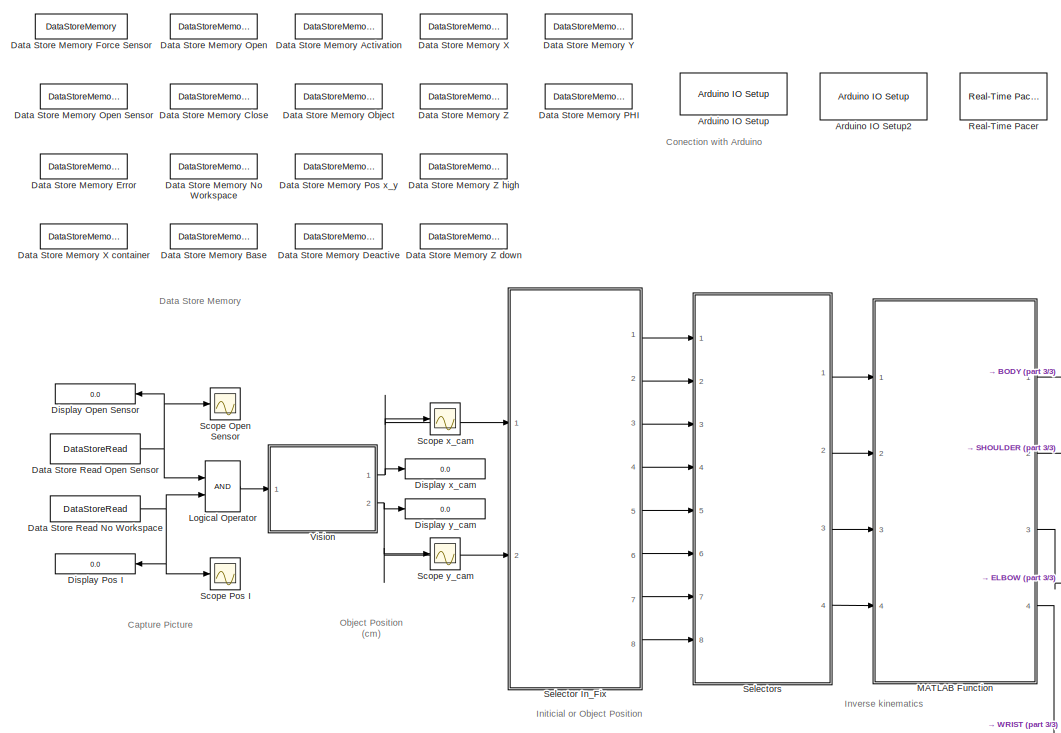
[diagram: root canvas - part 1/3, left side, full height]
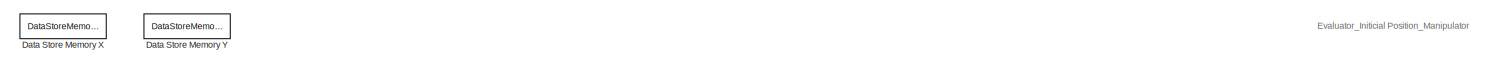
[diagram: root canvas - part 2/3, top center region]
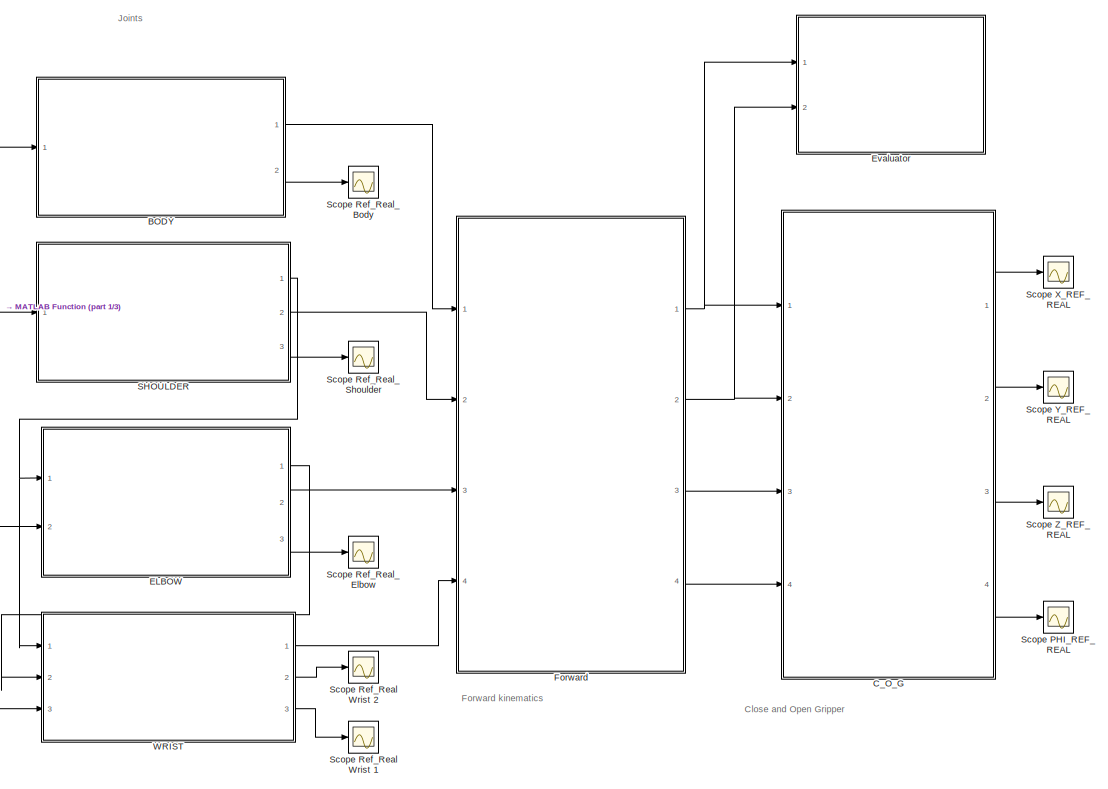
[diagram: root canvas - part 3/3, right side, full height]
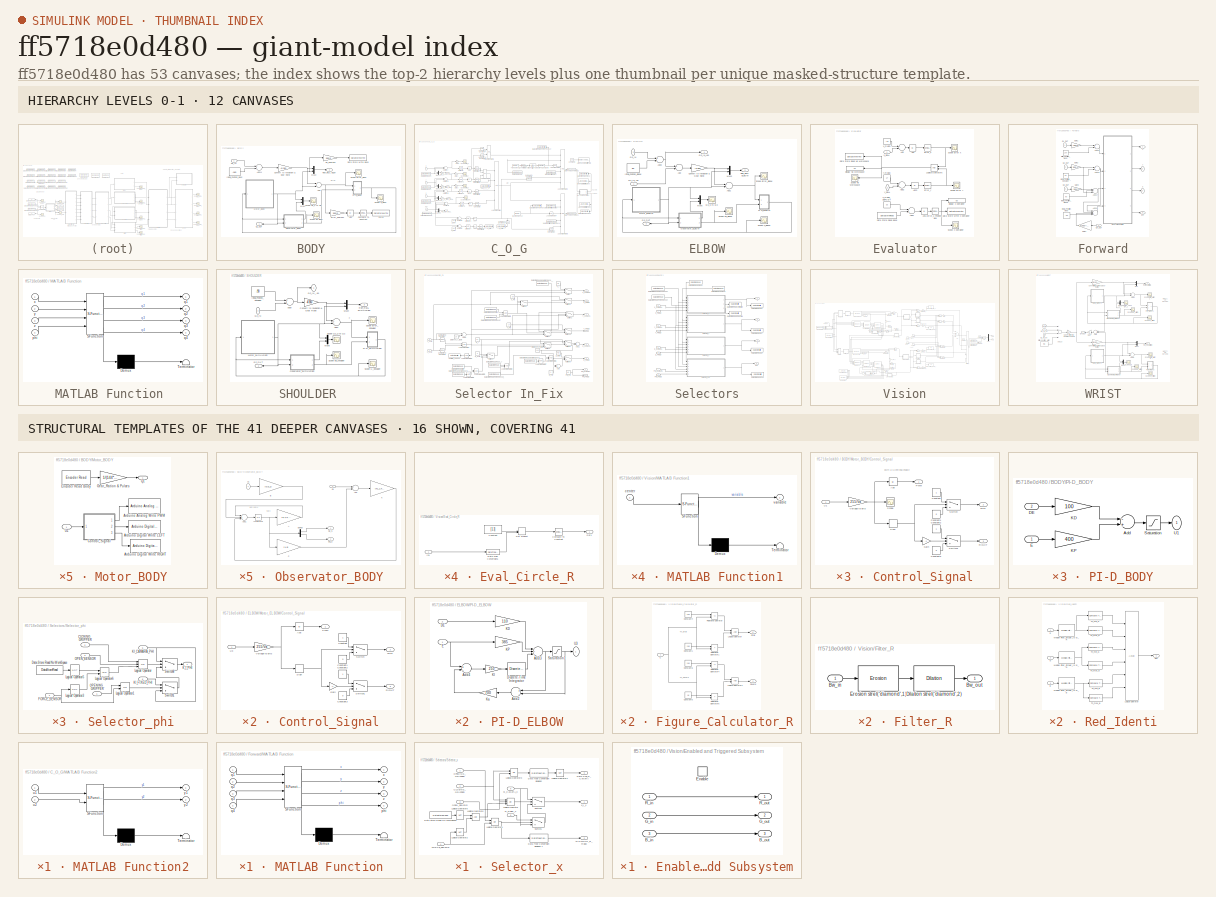
[diagram: thumbnail index - top-2 hierarchy levels (12 canvases) + 16 structural-template representatives of the remaining 41 canvases]
MODEL slx_ff5718e0d480
KIND model
CONFIG AbsTol = auto
CONFIG FixedStep = 0.05
CONFIG MaxStep = auto
CONFIG MinStep = auto
CONFIG RelTol = 1e-3
CONFIG SampleTimeConstraint = Unconstrained
CONFIG Solver = ode45
CONFIG SolverMode = Auto
CONFIG SolverName = ode45
CONFIG StartTime = 0.0
CONFIG StopTime = inf
BLOCK [Reference] Arduino IO Setup  REF=arduino_io_lib/Arduino IO Setup
  Ports = []
  Priority = 3
  SourceBlock = arduino_io_lib/Arduino IO Setup
  SourceType = Arduino IO Setup
  arduinoVar = Temporary arduino variable: Arduino1
  comPort = COM3
  workspaceVarName = a
BLOCK [Reference] Arduino IO Setup2  REF=arduino_io_lib/Arduino IO Setup
  Ports = []
  Priority = 3
  SourceBlock = arduino_io_lib/Arduino IO Setup
  SourceType = Arduino IO Setup
  arduinoVar = Temporary arduino variable: Arduino2
  comPort = COM9
  workspaceVarName = a
BLOCK [SubSystem] BODY
  Ports = [1, 2]
  RequestExecContextInheritance = off
  Variant = off
BLOCK [Scope] BODY/ Scope dq Body
  DataFormat = StructureWithTime
  Decimation = 1
  Grid = on
  LimitDataPoints = off
  MaxDataPoints = 5000
  NumInputPorts = 1
  Ports = [1]
  SampleInput = off
  SampleTime = -1
  SaveName = dq_cintura
  SaveToWorkspace = on
  ShowLegends = off
  TickLabels = OneTimeTick
  TimeRange = auto
  YMax = 0.72449
  YMin = -0.73219
  ZoomMode = on
BLOCK [Abs] BODY/Abs
  SaturateOnIntegerOverflow = off
BLOCK [Sum] BODY/Add
  InputSameDT = off
  Inputs = +-
  OutDataTypeStr = Inherit: Inherit via internal rule
  Ports = [2, 1]
  SaturateOnIntegerOverflow = off
BLOCK [Sum] BODY/Add14
  InputSameDT = off
  OutDataTypeStr = Inherit: Inherit via internal rule
  Ports = [2, 1]
  SaturateOnIntegerOverflow = off
BLOCK [Reference] BODY/Compare To Constant  REF=simulink/Logic and Bit
Operations/Compare
To Constant
  OutDataTypeStr = boolean
  Ports = [1, 1]
  SourceBlock = simulink/Logic and Bit\nOperations/Compare\nTo Constant
  SourceType = Compare To Constant
  ZeroCross = on
  const = 5
  relop = <=
BLOCK [Gain] BODY/Convert to revolution & Gear Ratio 
  Gain = -5/360
  OutDataTypeStr = Inherit: Inherit via internal rule
  ParamDataTypeStr = Inherit: Inherit via internal rule
  SaturateOnIntegerOverflow = off
BLOCK [DataStoreWrite] BODY/Data Store Write Base
  DataStoreName = Base
  Ports = [1]
  SampleTime = Ts
BLOCK [Gain] BODY/Error_degrees
  Gain = 360/5
  OutDataTypeStr = Inherit: Inherit via internal rule
  ParamDataTypeStr = Inherit: Inherit via internal rule
  SaturateOnIntegerOverflow = off
BLOCK [DataStoreWrite] BODY/Force
  DataStoreName = Error
  Ports = [1]
  SampleTime = Ts
BLOCK [Constant] BODY/Inicial_Position_Body
  SampleTime = Ts
  Value = -180
BLOCK [SubSystem] BODY/Motor_BODY
  Ports = [1, 1]
  RequestExecContextInheritance = off
  Variant = off
BLOCK [Reference] BODY/Motor_BODY/Arduino Analog Write PWM  REF=arduino_io_lib/Arduino Analog Write
  Ports = [1]
  SourceBlock = arduino_io_lib/Arduino Analog Write
  SourceType = Arduino IO analog Write (PWM)
  T = Ts
  arduinoPin = 9
  arduinoVar = Temporary arduino variable: Arduino2
BLOCK [Reference] BODY/Motor_BODY/Arduino Digital Write  LEFT  REF=arduino_io_lib/Arduino Digital Write
  Ports = [1]
  SourceBlock = arduino_io_lib/Arduino Digital Write
  SourceType = Arduino IO digital Write
  T = Ts
  arduinoPin = 7
  arduinoVar = Temporary arduino variable: Arduino2
BLOCK [Reference] BODY/Motor_BODY/Arduino Digital Write RIGHT  REF=arduino_io_lib/Arduino Digital Write
  Ports = [1]
  SourceBlock = arduino_io_lib/Arduino Digital Write
  SourceType = Arduino IO digital Write
  T = Ts
  arduinoPin = 6
  arduinoVar = Temporary arduino variable: Arduino2
BLOCK [SubSystem] BODY/Motor_BODY/Control_Signal
  Ports = [1, 3]
  RequestExecContextInheritance = off
  Variant = off
BLOCK [Abs] BODY/Motor_BODY/Control_Signal/Abs
  SaturateOnIntegerOverflow = off
BLOCK [Constant] BODY/Motor_BODY/Control_Signal/Constant
BLOCK [Constant] BODY/Motor_BODY/Control_Signal/Constant1
  Value = 0
BLOCK [Constant] BODY/Motor_BODY/Control_Signal/Constant2
BLOCK [Constant] BODY/Motor_BODY/Control_Signal/Constant3
  Value = 0
BLOCK [Gain] BODY/Motor_BODY/Control_Signal/Gain
  Gain = -1
  OutDataTypeStr = Inherit: Inherit via internal rule
  ParamDataTypeStr = Inherit: Inherit via internal rule
  SaturateOnIntegerOverflow = off
BLOCK [Outport] BODY/Motor_BODY/Control_Signal/LEFT
  IconDisplay = Port number
  Port = 2
BLOCK [Outport] BODY/Motor_BODY/Control_Signal/PWM
  IconDisplay = Port number
BLOCK [Outport] BODY/Motor_BODY/Control_Signal/RIGHT
  IconDisplay = Port number
  Port = 3
BLOCK [Scope] BODY/Motor_BODY/Control_Signal/Scope
  DataFormat = Array
  Decimation = 1
  Grid = on
  LimitDataPoints = off
  MaxDataPoints = 5000
  NumInputPorts = 1
  Ports = [1]
  SampleInput = off
  SampleTime = -1
  SaveName = ScopeData
  SaveToWorkspace = off
  ShowLegends = off
  TickLabels = OneTimeTick
  TimeRange = auto
  YMax = 10
  YMin = -10
  ZoomMode = on
BLOCK [Signum] BODY/Motor_BODY/Control_Signal/Sign
BLOCK [Switch] BODY/Motor_BODY/Control_Signal/Switch
  InputSameDT = off
  SaturateOnIntegerOverflow = off
  Threshold = 0.9
  ZeroCross = off
BLOCK [Switch] BODY/Motor_BODY/Control_Signal/Switch1
  InputSameDT = off
  SaturateOnIntegerOverflow = off
  Threshold = 0.9
  ZeroCross = off
BLOCK [Inport] BODY/Motor_BODY/Control_Signal/U1
  IconDisplay = Port number
BLOCK [Gain] BODY/Motor_BODY/Control_Signal/Voltage to bits
  Gain = 255/Va
  OutDataTypeStr = Inherit: Inherit via internal rule
  ParamDataTypeStr = Inherit: Inherit via internal rule
  SaturateOnIntegerOverflow = off
BLOCK [Reference] BODY/Motor_BODY/Encoder Read Body  REF=arduino_io_lib/Encoder Read
  DbDl = 0
  Ports = [0, 1]
  SourceBlock = arduino_io_lib/Encoder Read
  SourceType = Arduino IO Encoder Read
  T = Ts
  arduinoVar = Temporary arduino variable: Arduino2
  encNum = 2
  pinA = 21
  pinB = 20
BLOCK [Gain] BODY/Motor_BODY/Gear_Ration & Pulses
  Gain = 1/(144*24)
  OutDataTypeStr = Inherit: Inherit via internal rule
  ParamDataTypeStr = Inherit: Inherit via internal rule
  SaturateOnIntegerOverflow = off
BLOCK [Outport] BODY/Motor_BODY/Q1
  IconDisplay = Port number
BLOCK [Inport] BODY/Motor_BODY/U1
  IconDisplay = Port number
BLOCK [Mux] BODY/Mux1
  DisplayOption = bar
  Inputs = 2
  Ports = [2, 1]
BLOCK [Mux] BODY/Mux2
  DisplayOption = bar
  Inputs = 2
  Ports = [2, 1]
BLOCK [SubSystem] BODY/Observator_BODY
  Ports = [2, 2]
  RequestExecContextInheritance = off
  Variant = off
BLOCK [Gain] BODY/Observator_BODY/A
  Gain = [0,1;0,-a_1]
  Multiplication = Matrix(K*u)
  OutDataTypeStr = Inherit: Inherit via internal rule
  ParamDataTypeStr = Inherit: Inherit via internal rule
  SaturateOnIntegerOverflow = off
BLOCK [Sum] BODY/Observator_BODY/Add
  InputSameDT = off
  Inputs = +-
  OutDataTypeStr = Inherit: Inherit via internal rule
  Ports = [2, 1]
  SaturateOnIntegerOverflow = off
BLOCK [Sum] BODY/Observator_BODY/Add1
  InputSameDT = off
  Inputs = +++
  OutDataTypeStr = Inherit: Inherit via internal rule
  Ports = [3, 1]
  SaturateOnIntegerOverflow = off
BLOCK [Gain] BODY/Observator_BODY/B
  Gain = [0;b_1]
  Multiplication = Matrix(K*u)
  OutDataTypeStr = Inherit: Inherit via internal rule
  ParamDataTypeStr = Inherit: Inherit via internal rule
  SaturateOnIntegerOverflow = off
BLOCK [Gain] BODY/Observator_BODY/C
  Gain = [1,0]
  Multiplication = Matrix(K*u)
  OutDataTypeStr = Inherit: Inherit via internal rule
  ParamDataTypeStr = Inherit: Inherit via internal rule
  SaturateOnIntegerOverflow = off
BLOCK [Outport] BODY/Observator_BODY/DQ_S
  IconDisplay = Port number
  Port = 2
BLOCK [Demux] BODY/Observator_BODY/Demux
  DisplayOption = bar
  Outputs = 2
  Ports = [1, 2]
BLOCK [Integrator] BODY/Observator_BODY/Integrator
  Ports = [1, 1]
BLOCK [Gain] BODY/Observator_BODY/K
  Gain = [k1_1;k2_1]
  Multiplication = Matrix(K*u)
  OutDataTypeStr = Inherit: Inherit via internal rule
  ParamDataTypeStr = Inherit: Inherit via internal rule
  SaturateOnIntegerOverflow = off
BLOCK [Inport] BODY/Observator_BODY/Q1
  IconDisplay = Port number
  Port = 2
BLOCK [Outport] BODY/Observator_BODY/Q2_S
  IconDisplay = Port number
BLOCK [Inport] BODY/Observator_BODY/U1
  IconDisplay = Port number
BLOCK [SubSystem] BODY/PI-D_BODY
  Ports = [2, 1]
  RequestExecContextInheritance = off
  Variant = off
BLOCK [Sum] BODY/PI-D_BODY/Add
  InputSameDT = off
  Inputs = -+
  OutDataTypeStr = Inherit: Inherit via internal rule
  Ports = [2, 1]
  SaturateOnIntegerOverflow = off
BLOCK [Inport] BODY/PI-D_BODY/DE
  IconDisplay = Port number
  Port = 2
BLOCK [Inport] BODY/PI-D_BODY/E
  IconDisplay = Port number
BLOCK [Gain] BODY/PI-D_BODY/KD
  Gain = 100
  OutDataTypeStr = Inherit: Inherit via internal rule
  ParamDataTypeStr = Inherit: Inherit via internal rule
  SaturateOnIntegerOverflow = off
BLOCK [Gain] BODY/PI-D_BODY/KP
  Gain = 400
  OutDataTypeStr = Inherit: Inherit via internal rule
  ParamDataTypeStr = Inherit: Inherit via internal rule
  SaturateOnIntegerOverflow = off
BLOCK [Saturate] BODY/PI-D_BODY/Saturation
  InputPortMap = u0
  LowerLimit = -24
  Ports = [1, 1]
  UpperLimit = 24
BLOCK [Outport] BODY/PI-D_BODY/U1
  IconDisplay = Port number
BLOCK [Inport] BODY/Q1_IN
  IconDisplay = Port number
BLOCK [Outport] BODY/Q1_OUT
  IconDisplay = Port number
BLOCK [Gain] BODY/Q1_degrees
  Gain = 360/5
  OutDataTypeStr = Inherit: Inherit via internal rule
  ParamDataTypeStr = Inherit: Inherit via internal rule
  SaturateOnIntegerOverflow = off
BLOCK [Outport] BODY/REF_REAL BODY
  IconDisplay = Port number
  Port = 2
BLOCK [Scope] BODY/Scope Error_Body 
  DataFormat = StructureWithTime
  Decimation = 1
  Grid = on
  LimitDataPoints = off
  MaxDataPoints = 5000
  NumInputPorts = 1
  Ports = [1]
  SampleInput = off
  SampleTime = -1
  SaveName = e_cintura
  SaveToWorkspace = on
  ShowLegends = off
  TickLabels = OneTimeTick
  TimeRange = auto
  YMax = 0.53501
  YMin = -0.06288
  ZoomMode = on
BLOCK [Scope] BODY/Scope Q1_s vs Q1
  DataFormat = Array
  Decimation = 1
  Grid = on
  LimitDataPoints = off
  MaxDataPoints = 5000
  NumInputPorts = 1
  Ports = [1]
  SampleInput = off
  SampleTime = -1
  SaveName = ScopeData1
  SaveToWorkspace = off
  ShowLegends = off
  TickLabels = OneTimeTick
  TimeRange = 100
  YMax = 0.23915
  YMin = -0.02657
  ZoomMode = on
BLOCK [Scope] BODY/Scope U_Body 
  DataFormat = StructureWithTime
  Decimation = 1
  Grid = on
  LimitDataPoints = off
  MaxDataPoints = 5000
  NumInputPorts = 1
  Ports = [1]
  SampleInput = off
  SampleTime = -1
  SaveName = u_cintura
  SaveToWorkspace = on
  ShowLegends = off
  TickLabels = OneTimeTick
  TimeRange = auto
  YMax = 28.693
  YMin = -18.237
  ZoomMode = on
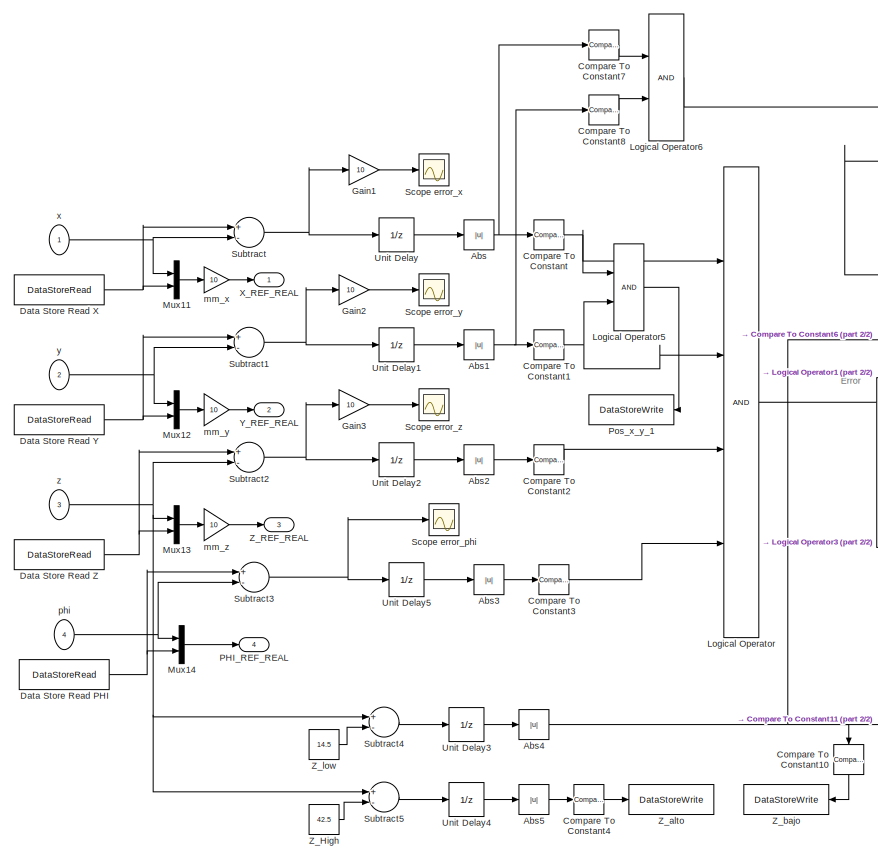
[diagram: C_O_G - part 1/2, left side, full height]
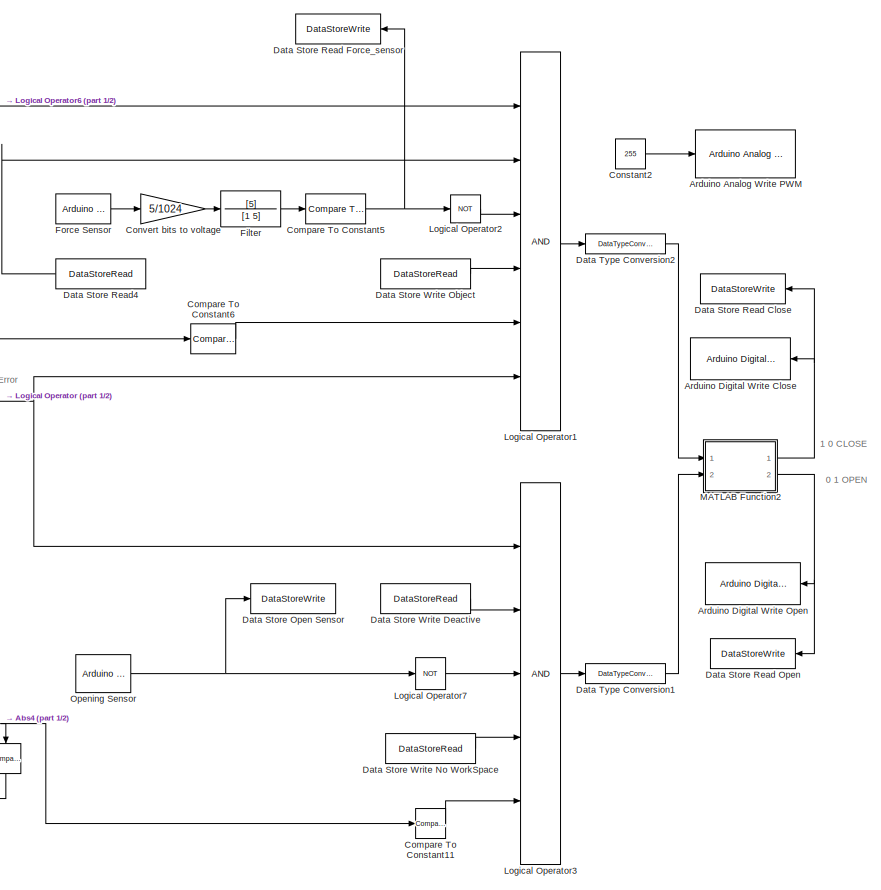
[diagram: C_O_G - part 2/2, right side, full height]
BLOCK [SubSystem] C_O_G
  Ports = [4, 4]
  RequestExecContextInheritance = off
  Variant = off
BLOCK [Abs] C_O_G/Abs
  SaturateOnIntegerOverflow = off
  ZeroCross = off
BLOCK [Abs] C_O_G/Abs1
  SaturateOnIntegerOverflow = off
  ZeroCross = off
BLOCK [Abs] C_O_G/Abs2
  SaturateOnIntegerOverflow = off
  ZeroCross = off
BLOCK [Abs] C_O_G/Abs3
  SaturateOnIntegerOverflow = off
  ZeroCross = off
BLOCK [Abs] C_O_G/Abs4
  SaturateOnIntegerOverflow = off
  ZeroCross = off
BLOCK [Abs] C_O_G/Abs5
  SaturateOnIntegerOverflow = off
  ZeroCross = off
BLOCK [Reference] C_O_G/Arduino Analog Write PWM  REF=arduino_io_lib/Arduino Analog Write
  Ports = [1]
  SourceBlock = arduino_io_lib/Arduino Analog Write
  SourceType = Arduino IO analog Write (PWM)
  T = Ts
  arduinoPin = 9
  arduinoVar = Temporary arduino variable: Arduino1
BLOCK [Reference] C_O_G/Arduino Digital Write Close  REF=arduino_io_lib/Arduino Digital Write
  Ports = [1]
  SourceBlock = arduino_io_lib/Arduino Digital Write
  SourceType = Arduino IO digital Write
  T = Ts
  arduinoPin = 6
  arduinoVar = Temporary arduino variable: Arduino1
BLOCK [Reference] C_O_G/Arduino Digital Write Open  REF=arduino_io_lib/Arduino Digital Write
  Ports = [1]
  SourceBlock = arduino_io_lib/Arduino Digital Write
  SourceType = Arduino IO digital Write
  T = Ts
  arduinoPin = 7
  arduinoVar = Temporary arduino variable: Arduino1
BLOCK [Reference] C_O_G/Compare To Constant  REF=simulink/Logic and Bit
Operations/Compare
To Constant
  OutDataTypeStr = boolean
  Ports = [1, 1]
  SourceBlock = simulink/Logic and Bit\nOperations/Compare\nTo Constant
  SourceType = Compare To Constant
  ZeroCross = off
  const = 3
  relop = <=
BLOCK [Reference] C_O_G/Compare To Constant1  REF=simulink/Logic and Bit
Operations/Compare
To Constant
  OutDataTypeStr = boolean
  Ports = [1, 1]
  SourceBlock = simulink/Logic and Bit\nOperations/Compare\nTo Constant
  SourceType = Compare To Constant
  ZeroCross = off
  const = 3
  relop = <=
BLOCK [Reference] C_O_G/Compare To Constant10  REF=simulink/Logic and Bit
Operations/Compare
To Constant
  OutDataTypeStr = boolean
  Ports = [1, 1]
  SourceBlock = simulink/Logic and Bit\nOperations/Compare\nTo Constant
  SourceType = Compare To Constant
  ZeroCross = off
  const = 3.5
  relop = <=
BLOCK [Reference] C_O_G/Compare To Constant11  REF=simulink/Logic and Bit
Operations/Compare
To Constant
  OutDataTypeStr = boolean
  Ports = [1, 1]
  SourceBlock = simulink/Logic and Bit\nOperations/Compare\nTo Constant
  SourceType = Compare To Constant
  ZeroCross = off
  const = 1
  relop = <=
BLOCK [Reference] C_O_G/Compare To Constant2  REF=simulink/Logic and Bit
Operations/Compare
To Constant
  OutDataTypeStr = boolean
  Ports = [1, 1]
  SourceBlock = simulink/Logic and Bit\nOperations/Compare\nTo Constant
  SourceType = Compare To Constant
  ZeroCross = on
  const = 3
  relop = <=
BLOCK [Reference] C_O_G/Compare To Constant3  REF=simulink/Logic and Bit
Operations/Compare
To Constant
  OutDataTypeStr = boolean
  Ports = [1, 1]
  SourceBlock = simulink/Logic and Bit\nOperations/Compare\nTo Constant
  SourceType = Compare To Constant
  ZeroCross = off
  const = 8
  relop = <=
BLOCK [Reference] C_O_G/Compare To Constant4  REF=simulink/Logic and Bit
Operations/Compare
To Constant
  OutDataTypeStr = boolean
  Ports = [1, 1]
  SourceBlock = simulink/Logic and Bit\nOperations/Compare\nTo Constant
  SourceType = Compare To Constant
  ZeroCross = off
  const = 3.5
  relop = <=
BLOCK [Reference] C_O_G/Compare To Constant5  REF=simulink/Logic and Bit
Operations/Compare
To Constant
  OutDataTypeStr = boolean
  Ports = [1, 1]
  SourceBlock = simulink/Logic and Bit\nOperations/Compare\nTo Constant
  SourceType = Compare To Constant
  ZeroCross = off
  const = 0.4
  relop = >=
BLOCK [Reference] C_O_G/Compare To Constant6  REF=simulink/Logic and Bit
Operations/Compare
To Constant
  OutDataTypeStr = boolean
  Ports = [1, 1]
  SourceBlock = simulink/Logic and Bit\nOperations/Compare\nTo Constant
  SourceType = Compare To Constant
  ZeroCross = off
  const = 0.85
  relop = <=
BLOCK [Reference] C_O_G/Compare To Constant7  REF=simulink/Logic and Bit
Operations/Compare
To Constant
  OutDataTypeStr = boolean
  Ports = [1, 1]
  SourceBlock = simulink/Logic and Bit\nOperations/Compare\nTo Constant
  SourceType = Compare To Constant
  ZeroCross = off
  const = 1
  relop = <=
BLOCK [Reference] C_O_G/Compare To Constant8  REF=simulink/Logic and Bit
Operations/Compare
To Constant
  OutDataTypeStr = boolean
  Ports = [1, 1]
  SourceBlock = simulink/Logic and Bit\nOperations/Compare\nTo Constant
  SourceType = Compare To Constant
  ZeroCross = off
  const = 1
  relop = <=
BLOCK [Constant] C_O_G/Constant2
  Value = 255
BLOCK [Gain] C_O_G/Convert bits to voltage
  Gain = 5/1024
  OutDataTypeStr = Inherit: Inherit via internal rule
  ParamDataTypeStr = Inherit: Inherit via internal rule
  SaturateOnIntegerOverflow = off
BLOCK [DataStoreWrite] C_O_G/Data Store Open Sensor
  DataStoreName = Open_sensor
  Ports = [1]
  SampleTime = Ts
BLOCK [DataStoreWrite] C_O_G/Data Store Read Close
  DataStoreName = Close
  Ports = [1]
  SampleTime = Ts
BLOCK [DataStoreWrite] C_O_G/Data Store Read Force_sensor
  DataStoreName = Force_sensor
  Ports = [1]
  SampleTime = Ts
BLOCK [DataStoreWrite] C_O_G/Data Store Read Open
  DataStoreName = Open
  Ports = [1]
  SampleTime = Ts
BLOCK [DataStoreRead] C_O_G/Data Store Read PHI
  DataStoreName = PHI
  Ports = [0, 1]
  SampleTime = Ts
BLOCK [DataStoreRead] C_O_G/Data Store Read X
  DataStoreName = X
  Ports = [0, 1]
  SampleTime = Ts
BLOCK [DataStoreRead] C_O_G/Data Store Read Y
  DataStoreName = Y
  Ports = [0, 1]
  SampleTime = Ts
BLOCK [DataStoreRead] C_O_G/Data Store Read Z
  DataStoreName = Z
  Ports = [0, 1]
  SampleTime = Ts
BLOCK [DataStoreRead] C_O_G/Data Store Read4
  DataStoreName = Activation
  Ports = [0, 1]
  SampleTime = Ts
BLOCK [DataStoreRead] C_O_G/Data Store Write Deactive
  DataStoreName = Deactive
  Ports = [0, 1]
  SampleTime = Ts
BLOCK [DataStoreRead] C_O_G/Data Store Write No WorkSpace
  DataStoreName = No_WorkSpace
  Ports = [0, 1]
BLOCK [DataStoreRead] C_O_G/Data Store Write Object
  DataStoreName = Object
  Ports = [0, 1]
  SampleTime = Ts
BLOCK [DataTypeConversion] C_O_G/Data Type Conversion1
  OutDataTypeStr = double
  RndMeth = Floor
  SaturateOnIntegerOverflow = off
BLOCK [DataTypeConversion] C_O_G/Data Type Conversion2
  OutDataTypeStr = double
  RndMeth = Floor
  SaturateOnIntegerOverflow = off
BLOCK [TransferFcn] C_O_G/Filter
  Denominator = [1 5]
  Numerator = [5]
BLOCK [Reference] C_O_G/Force Sensor  REF=arduino_io_lib/Arduino Analog Read
  Ports = [0, 1]
  SourceBlock = arduino_io_lib/Arduino Analog Read
  SourceType = Arduino IO Analog Read
  T = Ts
  arduinoPin = 0
  arduinoVar = Temporary arduino variable: Arduino1
BLOCK [Gain] C_O_G/Gain1
  Gain = 10
  OutDataTypeStr = Inherit: Inherit via internal rule
  ParamDataTypeStr = Inherit: Inherit via internal rule
  SaturateOnIntegerOverflow = off
BLOCK [Gain] C_O_G/Gain2
  Gain = 10
  OutDataTypeStr = Inherit: Inherit via internal rule
  ParamDataTypeStr = Inherit: Inherit via internal rule
  SaturateOnIntegerOverflow = off
BLOCK [Gain] C_O_G/Gain3
  Gain = 10
  OutDataTypeStr = Inherit: Inherit via internal rule
  ParamDataTypeStr = Inherit: Inherit via internal rule
  SaturateOnIntegerOverflow = off
BLOCK [Logic] C_O_G/Logical Operator
  AllPortsSameDT = off
  Inputs = 4
  OutDataTypeStr = boolean
  Ports = [4, 1]
BLOCK [Logic] C_O_G/Logical Operator1
  AllPortsSameDT = off
  Inputs = 6
  OutDataTypeStr = boolean
  Ports = [6, 1]
BLOCK [Logic] C_O_G/Logical Operator2
  AllPortsSameDT = off
  Operator = NOT
  OutDataTypeStr = boolean
  Ports = [1, 1]
BLOCK [Logic] C_O_G/Logical Operator3
  AllPortsSameDT = off
  Inputs = 5
  OutDataTypeStr = boolean
  Ports = [5, 1]
BLOCK [Logic] C_O_G/Logical Operator5
  AllPortsSameDT = off
  OutDataTypeStr = boolean
  Ports = [2, 1]
BLOCK [Logic] C_O_G/Logical Operator6
  AllPortsSameDT = off
  OutDataTypeStr = boolean
  Ports = [2, 1]
BLOCK [Logic] C_O_G/Logical Operator7
  AllPortsSameDT = off
  Operator = NOT
  OutDataTypeStr = boolean
  Ports = [1, 1]
BLOCK [SubSystem] C_O_G/MATLAB Function2
  ErrorFcn = Stateflow.Translate.translate
  PermitHierarchicalResolution = ParametersOnly
  Ports = [2, 2]
  RequestExecContextInheritance = off
  SFBlockType = MATLAB Function
  TreatAsAtomicUnit = on
  Variant = off
BLOCK [Demux] C_O_G/MATLAB Function2/ Demux 
  Outputs = 1
  Ports = [1, 1]
BLOCK [S-Function] C_O_G/MATLAB Function2/ SFunction 
  EnableBusSupport = on
  FunctionName = sf_sfun
  PortCounts = [2 3]
  Ports = [2, 3]
  SFunctionDeploymentMode = off
  Tag = Stateflow S-Function Automatic_Movement_2015_CORRECTA 6
BLOCK [Terminator] C_O_G/MATLAB Function2/ Terminator 
BLOCK [Inport] C_O_G/MATLAB Function2/u1
  IconDisplay = Port number
BLOCK [Inport] C_O_G/MATLAB Function2/u2
  IconDisplay = Port number
  Port = 2
BLOCK [Outport] C_O_G/MATLAB Function2/y1
  IconDisplay = Port number
BLOCK [Outport] C_O_G/MATLAB Function2/y2
  IconDisplay = Port number
  Port = 2
BLOCK [Mux] C_O_G/Mux11
  DisplayOption = bar
  Inputs = 2
  Ports = [2, 1]
BLOCK [Mux] C_O_G/Mux12
  DisplayOption = bar
  Inputs = 2
  Ports = [2, 1]
BLOCK [Mux] C_O_G/Mux13
  DisplayOption = bar
  Inputs = 2
  Ports = [2, 1]
BLOCK [Mux] C_O_G/Mux14
  DisplayOption = bar
  Inputs = 2
  Ports = [2, 1]
BLOCK [Reference] C_O_G/Opening Sensor  REF=arduino_io_lib/Arduino Digital Read
  Ports = [0, 1]
  SourceBlock = arduino_io_lib/Arduino Digital Read
  SourceType = Arduino IO digital read
  T = Ts
  arduinoPin = 34
  arduinoVar = Temporary arduino variable: Arduino1
BLOCK [Outport] C_O_G/PHI_REF_REAL
  IconDisplay = Port number
  Port = 4
BLOCK [DataStoreWrite] C_O_G/Pos_x_y_1 
  DataStoreName = Pos_x_y
  Ports = [1]
  SampleTime = Ts
BLOCK [Scope] C_O_G/Scope error_phi 
  DataFormat = StructureWithTime
  Decimation = 1
  Grid = on
  LimitDataPoints = off
  MaxDataPoints = 5000
  NumInputPorts = 1
  Ports = [1]
  SampleInput = off
  SampleTime = -1
  SaveName = e_phi
  SaveToWorkspace = on
  ShowLegends = off
  TickLabels = OneTimeTick
  TimeRange = auto
  YMax = 91.56383
  YMin = 89.82624
  ZoomMode = on
BLOCK [Scope] C_O_G/Scope error_x 
  DataFormat = StructureWithTime
  Decimation = 1
  Grid = on
  LimitDataPoints = off
  MaxDataPoints = 5000
  NumInputPorts = 1
  Ports = [1]
  SampleInput = off
  SampleTime = -1
  SaveName = e_x
  SaveToWorkspace = on
  ShowLegends = off
  TickLabels = OneTimeTick
  TimeRange = auto
  YMax = 252.73464
  YMin = -74.61173
  ZoomMode = on
BLOCK [Scope] C_O_G/Scope error_y 
  DataFormat = StructureWithTime
  Decimation = 1
  Grid = on
  LimitDataPoints = off
  MaxDataPoints = 5000
  NumInputPorts = 1
  Ports = [1]
  SampleInput = off
  SampleTime = -1
  SaveName = e_y
  SaveToWorkspace = on
  ShowLegends = off
  TickLabels = OneTimeTick
  TimeRange = auto
  YMax = 196.55475
  YMin = -68.99271
  ZoomMode = on
BLOCK [Scope] C_O_G/Scope error_z
  DataFormat = StructureWithTime
  Decimation = 1
  Grid = on
  LimitDataPoints = off
  MaxDataPoints = 5000
  NumInputPorts = 1
  Ports = [1]
  SampleInput = off
  SampleTime = -1
  SaveName = e_z
  SaveToWorkspace = on
  ShowLegends = off
  TickLabels = OneTimeTick
  TimeRange = auto
  YMax = 350.0592
  YMin = -538.89547
  ZoomMode = on
BLOCK [Sum] C_O_G/Subtract
  InputSameDT = off
  Inputs = +-
  OutDataTypeStr = Inherit: Inherit via internal rule
  Ports = [2, 1]
  SaturateOnIntegerOverflow = off
BLOCK [Sum] C_O_G/Subtract1
  InputSameDT = off
  Inputs = +-
  OutDataTypeStr = Inherit: Inherit via internal rule
  Ports = [2, 1]
  SaturateOnIntegerOverflow = off
BLOCK [Sum] C_O_G/Subtract2
  InputSameDT = off
  Inputs = +-
  OutDataTypeStr = Inherit: Inherit via internal rule
  Ports = [2, 1]
  SaturateOnIntegerOverflow = off
BLOCK [Sum] C_O_G/Subtract3
  InputSameDT = off
  Inputs = +-
  OutDataTypeStr = Inherit: Inherit via internal rule
  Ports = [2, 1]
  SaturateOnIntegerOverflow = off
BLOCK [Sum] C_O_G/Subtract4
  InputSameDT = off
  Inputs = +-
  OutDataTypeStr = Inherit: Inherit via internal rule
  Ports = [2, 1]
  SaturateOnIntegerOverflow = off
BLOCK [Sum] C_O_G/Subtract5
  InputSameDT = off
  Inputs = +-
  OutDataTypeStr = Inherit: Inherit via internal rule
  Ports = [2, 1]
  SaturateOnIntegerOverflow = off
BLOCK [UnitDelay] C_O_G/Unit Delay
  InputProcessing = Elements as channels (sample based)
  SampleTime = Ts
BLOCK [UnitDelay] C_O_G/Unit Delay1
  InputProcessing = Elements as channels (sample based)
  SampleTime = Ts
BLOCK [UnitDelay] C_O_G/Unit Delay2
  InputProcessing = Elements as channels (sample based)
  SampleTime = Ts
BLOCK [UnitDelay] C_O_G/Unit Delay3
  InputProcessing = Elements as channels (sample based)
  SampleTime = Ts
BLOCK [UnitDelay] C_O_G/Unit Delay4
  InputProcessing = Elements as channels (sample based)
  SampleTime = Ts
BLOCK [UnitDelay] C_O_G/Unit Delay5
  InputProcessing = Elements as channels (sample based)
  SampleTime = Ts
BLOCK [Outport] C_O_G/X_REF_REAL
  IconDisplay = Port number
BLOCK [Outport] C_O_G/Y_REF_REAL
  IconDisplay = Port number
  Port = 2
BLOCK [Constant] C_O_G/Z_High
  Value = 42.5
BLOCK [Outport] C_O_G/Z_REF_REAL
  IconDisplay = Port number
  Port = 3
BLOCK [DataStoreWrite] C_O_G/Z_alto 
  DataStoreName = Z_HIGH
  Ports = [1]
  SampleTime = Ts
BLOCK [DataStoreWrite] C_O_G/Z_bajo
  DataStoreName = Z_DOWN
  Ports = [1]
  SampleTime = Ts
BLOCK [Constant] C_O_G/Z_low
  Value = 14.5
BLOCK [Gain] C_O_G/mm_x
  Gain = 10
  OutDataTypeStr = Inherit: Inherit via internal rule
  ParamDataTypeStr = Inherit: Inherit via internal rule
  SaturateOnIntegerOverflow = off
BLOCK [Gain] C_O_G/mm_y
  Gain = 10
  OutDataTypeStr = Inherit: Inherit via internal rule
  ParamDataTypeStr = Inherit: Inherit via internal rule
  SaturateOnIntegerOverflow = off
BLOCK [Gain] C_O_G/mm_z
  Gain = 10
  OutDataTypeStr = Inherit: Inherit via internal rule
  ParamDataTypeStr = Inherit: Inherit via internal rule
  SaturateOnIntegerOverflow = off
BLOCK [Inport] C_O_G/phi
  IconDisplay = Port number
  Port = 4
BLOCK [Inport] C_O_G/x
  IconDisplay = Port number
BLOCK [Inport] C_O_G/y
  IconDisplay = Port number
  Port = 2
BLOCK [Inport] C_O_G/z
  IconDisplay = Port number
  Port = 3
BLOCK [DataStoreMemory] Data Store Memory Activation
  DataStoreName = Activation
  ReadBeforeWriteMsg = warning
  ShowAdditionalParam = off
  WriteAfterReadMsg = warning
  WriteAfterWriteMsg = warning
BLOCK [DataStoreMemory] Data Store Memory Base
  DataStoreName = Base
  ReadBeforeWriteMsg = warning
  ShowAdditionalParam = off
  WriteAfterReadMsg = warning
  WriteAfterWriteMsg = warning
BLOCK [DataStoreMemory] Data Store Memory Close 
  DataStoreName = Close
  ReadBeforeWriteMsg = warning
  ShowAdditionalParam = off
  WriteAfterReadMsg = warning
  WriteAfterWriteMsg = warning
BLOCK [DataStoreMemory] Data Store Memory Deactive
  DataStoreName = Deactive
  ReadBeforeWriteMsg = warning
  ShowAdditionalParam = off
  WriteAfterReadMsg = warning
  WriteAfterWriteMsg = warning
BLOCK [DataStoreMemory] Data Store Memory Error
  DataStoreName = Error
  ReadBeforeWriteMsg = warning
  ShowAdditionalParam = off
  WriteAfterReadMsg = warning
  WriteAfterWriteMsg = warning
BLOCK [DataStoreMemory] Data Store Memory Force Sensor
  DataStoreName = Force_sensor
  ReadBeforeWriteMsg = warning
  ShowAdditionalParam = off
  WriteAfterReadMsg = warning
  WriteAfterWriteMsg = warning
BLOCK [DataStoreMemory] Data Store Memory No Workspace
  DataStoreName = No_WorkSpace
  ReadBeforeWriteMsg = warning
  ShowAdditionalParam = off
  WriteAfterReadMsg = warning
  WriteAfterWriteMsg = warning
BLOCK [DataStoreMemory] Data Store Memory Object
  DataStoreName = Object
  ReadBeforeWriteMsg = warning
  ShowAdditionalParam = off
  WriteAfterReadMsg = warning
  WriteAfterWriteMsg = warning
BLOCK [DataStoreMemory] Data Store Memory Open
  DataStoreName = Open
  ReadBeforeWriteMsg = warning
  ShowAdditionalParam = off
  WriteAfterReadMsg = warning
  WriteAfterWriteMsg = warning
BLOCK [DataStoreMemory] Data Store Memory Open Sensor
  DataStoreName = Open_sensor
  ReadBeforeWriteMsg = warning
  ShowAdditionalParam = off
  WriteAfterReadMsg = warning
  WriteAfterWriteMsg = warning
BLOCK [DataStoreMemory] Data Store Memory PHI
  DataStoreName = PHI
  ReadBeforeWriteMsg = warning
  ShowAdditionalParam = off
  WriteAfterReadMsg = warning
  WriteAfterWriteMsg = warning
BLOCK [DataStoreMemory] Data Store Memory Pos x_y
  DataStoreName = Pos_x_y
  ReadBeforeWriteMsg = warning
  ShowAdditionalParam = off
  WriteAfterReadMsg = warning
  WriteAfterWriteMsg = warning
BLOCK [DataStoreMemory] Data Store Memory X
  DataStoreName = X
  ReadBeforeWriteMsg = warning
  ShowAdditionalParam = off
  WriteAfterReadMsg = warning
  WriteAfterWriteMsg = warning
BLOCK [DataStoreMemory] Data Store Memory X container
  DataStoreName = X_CONTAINER
  ReadBeforeWriteMsg = warning
  ShowAdditionalParam = off
  WriteAfterReadMsg = warning
  WriteAfterWriteMsg = warning
BLOCK [DataStoreMemory] Data Store Memory Y
  DataStoreName = Y
  ReadBeforeWriteMsg = warning
  ShowAdditionalParam = off
  WriteAfterReadMsg = warning
  WriteAfterWriteMsg = warning
BLOCK [DataStoreMemory] Data Store Memory Z
  DataStoreName = Z
  ReadBeforeWriteMsg = warning
  ShowAdditionalParam = off
  WriteAfterReadMsg = warning
  WriteAfterWriteMsg = warning
BLOCK [DataStoreMemory] Data Store Memory Z down
  DataStoreName = Z_DOWN
  ReadBeforeWriteMsg = warning
  ShowAdditionalParam = off
  WriteAfterReadMsg = warning
  WriteAfterWriteMsg = warning
BLOCK [DataStoreMemory] Data Store Memory Z high
  DataStoreName = Z_HIGH
  ReadBeforeWriteMsg = warning
  ShowAdditionalParam = off
  WriteAfterReadMsg = warning
  WriteAfterWriteMsg = warning
BLOCK [DataStoreRead] Data Store Read No Workspace
  DataStoreName = No_WorkSpace
  Ports = [0, 1]
  SampleTime = Ts
BLOCK [DataStoreRead] Data Store Read Open Sensor
  DataStoreName = Open_sensor
  Ports = [0, 1]
  SampleTime = Ts
BLOCK [Display] Display Open Sensor
  Decimation = 1
  Ports = [1]
BLOCK [Display] Display Pos I
  Decimation = 1
  Ports = [1]
BLOCK [Display] Display x_cam
  Decimation = 1
  Ports = [1]
BLOCK [Display] Display y_cam
  Decimation = 1
  Ports = [1]
BLOCK [SubSystem] ELBOW
  Ports = [2, 3]
  RequestExecContextInheritance = off
  Variant = off
BLOCK [Sum] ELBOW/Add
  InputSameDT = off
  OutDataTypeStr = Inherit: Inherit via internal rule
  Ports = [2, 1]
  SaturateOnIntegerOverflow = off
BLOCK [Sum] ELBOW/Add1
  InputSameDT = off
  Inputs = +-
  OutDataTypeStr = Inherit: Inherit via internal rule
  Ports = [2, 1]
  SaturateOnIntegerOverflow = off
BLOCK [Sum] ELBOW/Add3
  InputSameDT = off
  OutDataTypeStr = Inherit: Inherit via internal rule
  Ports = [2, 1]
  SaturateOnIntegerOverflow = off
BLOCK [Gain] ELBOW/Convert to revolution & Gear Ratio
  Gain = -4/360
  OutDataTypeStr = Inherit: Inherit via internal rule
  ParamDataTypeStr = Inherit: Inherit via internal rule
  SaturateOnIntegerOverflow = off
BLOCK [Constant] ELBOW/Initial_Position_Elbow
  SampleTime = Ts
  Value = 90
BLOCK [SubSystem] ELBOW/Motor_ELBOW
  Ports = [1, 1]
  RequestExecContextInheritance = off
  Variant = off
BLOCK [Reference] ELBOW/Motor_ELBOW/Arduino Analog Write PWM  REF=arduino_io_lib/Arduino Analog Write
  Ports = [1]
  SourceBlock = arduino_io_lib/Arduino Analog Write
  SourceType = Arduino IO analog Write (PWM)
  T = Ts
  arduinoPin = 11
  arduinoVar = Temporary arduino variable: Arduino2
BLOCK [Reference] ELBOW/Motor_ELBOW/Arduino Digital Write Left  REF=arduino_io_lib/Arduino Digital Write
  Ports = [1]
  SourceBlock = arduino_io_lib/Arduino Digital Write
  SourceType = Arduino IO digital Write
  T = Ts
  arduinoPin = 12
  arduinoVar = Temporary arduino variable: Arduino2
BLOCK [Reference] ELBOW/Motor_ELBOW/Arduino Digital Write Right  REF=arduino_io_lib/Arduino Digital Write
  Ports = [1]
  SourceBlock = arduino_io_lib/Arduino Digital Write
  SourceType = Arduino IO digital Write
  T = Ts
  arduinoPin = 13
  arduinoVar = Temporary arduino variable: Arduino2
BLOCK [SubSystem] ELBOW/Motor_ELBOW/Control_Signal
  Ports = [1, 3]
  RequestExecContextInheritance = off
  Variant = off
BLOCK [Abs] ELBOW/Motor_ELBOW/Control_Signal/Abs
  SaturateOnIntegerOverflow = off
BLOCK [Constant] ELBOW/Motor_ELBOW/Control_Signal/Constant
BLOCK [Constant] ELBOW/Motor_ELBOW/Control_Signal/Constant1
  Value = 0
BLOCK [Constant] ELBOW/Motor_ELBOW/Control_Signal/Constant2
BLOCK [Constant] ELBOW/Motor_ELBOW/Control_Signal/Constant3
  Value = 0
BLOCK [Gain] ELBOW/Motor_ELBOW/Control_Signal/Gain
  Gain = -1
  OutDataTypeStr = Inherit: Inherit via internal rule
  ParamDataTypeStr = Inherit: Inherit via internal rule
  SaturateOnIntegerOverflow = off
BLOCK [Outport] ELBOW/Motor_ELBOW/Control_Signal/LEFT
  IconDisplay = Port number
  Port = 2
BLOCK [Outport] ELBOW/Motor_ELBOW/Control_Signal/PWM
  IconDisplay = Port number
BLOCK [Outport] ELBOW/Motor_ELBOW/Control_Signal/RIGHT
  IconDisplay = Port number
  Port = 3
BLOCK [Signum] ELBOW/Motor_ELBOW/Control_Signal/Sign
BLOCK [Switch] ELBOW/Motor_ELBOW/Control_Signal/Switch
  InputSameDT = off
  SaturateOnIntegerOverflow = off
  Threshold = 0.9
  ZeroCross = off
BLOCK [Switch] ELBOW/Motor_ELBOW/Control_Signal/Switch1
  InputSameDT = off
  SaturateOnIntegerOverflow = off
  Threshold = 0.9
  ZeroCross = off
BLOCK [Inport] ELBOW/Motor_ELBOW/Control_Signal/U3
  IconDisplay = Port number
BLOCK [Gain] ELBOW/Motor_ELBOW/Control_Signal/Voltage to bits
  Gain = 255/Va
  OutDataTypeStr = Inherit: Inherit via internal rule
  ParamDataTypeStr = Inherit: Inherit via internal rule
  SaturateOnIntegerOverflow = off
BLOCK [Reference] ELBOW/Motor_ELBOW/Encoder Read Shoulder  REF=arduino_io_lib/Encoder Read
  DbDl = 0
  Ports = [0, 1]
  SourceBlock = arduino_io_lib/Encoder Read
  SourceType = Arduino IO Encoder Read
  T = Ts
  arduinoVar = Temporary arduino variable: Arduino2
  encNum = 1
  pinA = 18
  pinB = 19
BLOCK [Gain] ELBOW/Motor_ELBOW/Gear_Ration & Pulses
  Gain = 1/(144*24)
  OutDataTypeStr = Inherit: Inherit via internal rule
  ParamDataTypeStr = Inherit: Inherit via internal rule
  SaturateOnIntegerOverflow = off
BLOCK [Outport] ELBOW/Motor_ELBOW/Q3
  IconDisplay = Port number
BLOCK [Inport] ELBOW/Motor_ELBOW/U3
  IconDisplay = Port number
BLOCK [Mux] ELBOW/Mux3
  DisplayOption = bar
  Inputs = 2
  Ports = [2, 1]
BLOCK [Mux] ELBOW/Mux6
  DisplayOption = bar
  Inputs = 2
  Ports = [2, 1]
BLOCK [SubSystem] ELBOW/Observator_ELBOW
  Ports = [2, 2]
  RequestExecContextInheritance = off
  Variant = off
BLOCK [Gain] ELBOW/Observator_ELBOW/A
  Gain = [0,1;0,-a_3]
  Multiplication = Matrix(K*u)
  OutDataTypeStr = Inherit: Inherit via internal rule
  ParamDataTypeStr = Inherit: Inherit via internal rule
  SaturateOnIntegerOverflow = off
BLOCK [Sum] ELBOW/Observator_ELBOW/Add
  InputSameDT = off
  Inputs = +-
  OutDataTypeStr = Inherit: Inherit via internal rule
  Ports = [2, 1]
  SaturateOnIntegerOverflow = off
BLOCK [Sum] ELBOW/Observator_ELBOW/Add1
  InputSameDT = off
  Inputs = +++
  OutDataTypeStr = Inherit: Inherit via internal rule
  Ports = [3, 1]
  SaturateOnIntegerOverflow = off
BLOCK [Gain] ELBOW/Observator_ELBOW/B
  Gain = [0;b_3]
  Multiplication = Matrix(K*u)
  OutDataTypeStr = Inherit: Inherit via internal rule
  ParamDataTypeStr = Inherit: Inherit via internal rule
  SaturateOnIntegerOverflow = off
BLOCK [Gain] ELBOW/Observator_ELBOW/C
  Gain = [1,0]
  Multiplication = Matrix(K*u)
  OutDataTypeStr = Inherit: Inherit via internal rule
  ParamDataTypeStr = Inherit: Inherit via internal rule
  SaturateOnIntegerOverflow = off
BLOCK [Outport] ELBOW/Observator_ELBOW/DQ_S
  IconDisplay = Port number
  Port = 2
BLOCK [Demux] ELBOW/Observator_ELBOW/Demux
  DisplayOption = bar
  Outputs = 2
  Ports = [1, 2]
BLOCK [Integrator] ELBOW/Observator_ELBOW/Integrator
  Ports = [1, 1]
BLOCK [Gain] ELBOW/Observator_ELBOW/K
  Gain = [k1_3;k2_3]
  Multiplication = Matrix(K*u)
  OutDataTypeStr = Inherit: Inherit via internal rule
  ParamDataTypeStr = Inherit: Inherit via internal rule
  SaturateOnIntegerOverflow = off
BLOCK [Inport] ELBOW/Observator_ELBOW/Q3
  IconDisplay = Port number
  Port = 2
BLOCK [Outport] ELBOW/Observator_ELBOW/Q3_S
  IconDisplay = Port number
BLOCK [Inport] ELBOW/Observator_ELBOW/U3
  IconDisplay = Port number
BLOCK [SubSystem] ELBOW/PI-D_ELBOW
  Ports = [2, 1]
  RequestExecContextInheritance = off
  Variant = off
BLOCK [Sum] ELBOW/PI-D_ELBOW/Add2
  InputSameDT = off
  Inputs = +-
  OutDataTypeStr = Inherit: Inherit via internal rule
  Ports = [2, 1]
  SaturateOnIntegerOverflow = off
BLOCK [Sum] ELBOW/PI-D_ELBOW/Add3
  InputSameDT = off
  Inputs = -++
  OutDataTypeStr = Inherit: Inherit via internal rule
  Ports = [3, 1]
  SaturateOnIntegerOverflow = off
BLOCK [Sum] ELBOW/PI-D_ELBOW/Add4
  InputSameDT = off
  Inputs = +-
  OutDataTypeStr = Inherit: Inherit via internal rule
  Ports = [2, 1]
  SaturateOnIntegerOverflow = off
BLOCK [Inport] ELBOW/PI-D_ELBOW/DE
  IconDisplay = Port number
  Port = 2
BLOCK [DiscreteIntegrator] ELBOW/PI-D_ELBOW/Discrete-Time Integrator
  ICPrevOutput = DiscIntNeverNeededParam
  ICPrevScaledInput = DiscIntNeverNeededParam
  InitialConditionSetting = State (most efficient)
  IntegratorMethod = Integration: Trapezoidal
  Ports = [1, 1]
  SampleTime = Ts
BLOCK [Inport] ELBOW/PI-D_ELBOW/E
  IconDisplay = Port number
BLOCK [Gain] ELBOW/PI-D_ELBOW/KD
  Gain = 110
  OutDataTypeStr = Inherit: Inherit via internal rule
  ParamDataTypeStr = Inherit: Inherit via internal rule
  SaturateOnIntegerOverflow = off
BLOCK [Gain] ELBOW/PI-D_ELBOW/KI
  Gain = 250
  OutDataTypeStr = Inherit: Inherit via internal rule
  ParamDataTypeStr = Inherit: Inherit via internal rule
  SaturateOnIntegerOverflow = off
BLOCK [Gain] ELBOW/PI-D_ELBOW/KP
  Gain = 385
  OutDataTypeStr = Inherit: Inherit via internal rule
  ParamDataTypeStr = Inherit: Inherit via internal rule
  SaturateOnIntegerOverflow = off
BLOCK [Gain] ELBOW/PI-D_ELBOW/Ka
  Gain = 700
  OutDataTypeStr = Inherit: Inherit via internal rule
  ParamDataTypeStr = Inherit: Inherit via internal rule
  SaturateOnIntegerOverflow = off
BLOCK [Saturate] ELBOW/PI-D_ELBOW/Saturation1
  InputPortMap = u0
  LowerLimit = -24
  Ports = [1, 1]
  UpperLimit = 24
BLOCK [Outport] ELBOW/PI-D_ELBOW/U3
  IconDisplay = Port number
BLOCK [Inport] ELBOW/Q2_IN_-90
  IconDisplay = Port number
BLOCK [Inport] ELBOW/Q3_IN
  IconDisplay = Port number
  Port = 2
BLOCK [Outport] ELBOW/Q3_IN_+90
  IconDisplay = Port number
BLOCK [Outport] ELBOW/Q3_OUT
  IconDisplay = Port number
  Port = 2
BLOCK [Scope] ELBOW/Q3_S vs Q3
  DataFormat = Array
  Decimation = 1
  Grid = on
  LimitDataPoints = off
  MaxDataPoints = 5000
  NumInputPorts = 1
  Ports = [1]
  SampleInput = off
  SampleTime = -1
  SaveName = ScopeData4
  SaveToWorkspace = off
  ShowLegends = off
  TickLabels = OneTimeTick
  TimeRange = 100
  YMax = 0.82585
  YMin = -0.09176
  ZoomMode = on
BLOCK [Outport] ELBOW/REF_REAL ELBOW
  IconDisplay = Port number
  Port = 3
BLOCK [Scope] ELBOW/Scope Error_Elbow
  DataFormat = StructureWithTime
  Decimation = 1
  Grid = on
  LimitDataPoints = off
  MaxDataPoints = 5000
  NumInputPorts = 1
  Ports = [1]
  SampleInput = off
  SampleTime = -1
  SaveName = e_codo
  SaveToWorkspace = on
  ShowLegends = off
  TickLabels = OneTimeTick
  TimeRange = auto
  YMax = 0.79717
  YMin = -0.09784
  ZoomMode = on
BLOCK [Scope] ELBOW/Scope U_Elbow
  DataFormat = StructureWithTime
  Decimation = 1
  Grid = on
  LimitDataPoints = off
  MaxDataPoints = 5000
  NumInputPorts = 1
  Ports = [1]
  SampleInput = off
  SampleTime = -1
  SaveName = u_codo
  SaveToWorkspace = on
  ShowLegends = off
  TickLabels = OneTimeTick
  TimeRange = auto
  YMax = 30.00000
  YMin = -30.00000
  ZoomMode = on
BLOCK [Scope] ELBOW/Scope dq_Elbow
  DataFormat = StructureWithTime
  Decimation = 1
  Grid = on
  LimitDataPoints = off
  MaxDataPoints = 5000
  NumInputPorts = 1
  Ports = [1]
  SampleInput = off
  SampleTime = -1
  SaveName = dq_codo
  SaveToWorkspace = on
  ShowLegends = off
  TickLabels = OneTimeTick
  TimeRange = auto
  YMax = 0.22276
  YMin = -0.07154
  ZoomMode = on
BLOCK [SubSystem] Evaluator
  Ports = [2]
  RequestExecContextInheritance = off
  Variant = off
BLOCK [Abs] Evaluator/Abs
  SaturateOnIntegerOverflow = off
  ZeroCross = off
BLOCK [Abs] Evaluator/Abs1
  SaturateOnIntegerOverflow = off
  ZeroCross = off
BLOCK [Abs] Evaluator/Abs3
  SaturateOnIntegerOverflow = off
  ZeroCross = off
BLOCK [Sum] Evaluator/Add
  InputSameDT = off
  Inputs = +-
  OutDataTypeStr = Inherit: Inherit via internal rule
  Ports = [2, 1]
  SaturateOnIntegerOverflow = off
BLOCK [Sum] Evaluator/Add1
  InputSameDT = off
  Inputs = -+
  OutDataTypeStr = Inherit: Inherit via internal rule
  Ports = [2, 1]
  SaturateOnIntegerOverflow = off
BLOCK [Sum] Evaluator/Add2
  InputSameDT = off
  Inputs = +-
  OutDataTypeStr = Inherit: Inherit via internal rule
  Ports = [2, 1]
  SaturateOnIntegerOverflow = off
BLOCK [DataStoreRead] Evaluator/Data Store Read Base
  DataStoreName = Base
  Ports = [0, 1]
  SampleTime = Ts
BLOCK [DataStoreWrite] Evaluator/Data Store Read No Workspace
  DataStoreName = No_WorkSpace
  Ports = [1]
  SampleTime = Ts
BLOCK [DataStoreWrite] Evaluator/Data Store Write X Container
  DataStoreName = X_CONTAINER
  Ports = [1]
  SampleTime = Ts
BLOCK [Display] Evaluator/Display No Workspace
  Decimation = 1
  Ports = [1]
BLOCK [Display] Evaluator/Display X Container
  Decimation = 1
  Ports = [1]
BLOCK [Reference] Evaluator/Error_x  REF=simulink/Logic and Bit
Operations/Compare
To Constant
  OutDataTypeStr = boolean
  Ports = [1, 1]
  SourceBlock = simulink/Logic and Bit\nOperations/Compare\nTo Constant
  SourceType = Compare To Constant
  ZeroCross = off
  const = 3
  relop = <=
BLOCK [Reference] Evaluator/Error_x Position_Box  REF=simulink/Logic and Bit
Operations/Compare
To Constant
  OutDataTypeStr = boolean
  Ports = [1, 1]
  SourceBlock = simulink/Logic and Bit\nOperations/Compare\nTo Constant
  SourceType = Compare To Constant
  ZeroCross = off
  const = 8
  relop = <=
BLOCK [Reference] Evaluator/Error_y  REF=simulink/Logic and Bit
Operations/Compare
To Constant
  OutDataTypeStr = boolean
  Ports = [1, 1]
  SourceBlock = simulink/Logic and Bit\nOperations/Compare\nTo Constant
  SourceType = Compare To Constant
  ZeroCross = off
  const = 3
  relop = <=
BLOCK [Logic] Evaluator/Logical Operator5
  AllPortsSameDT = off
  OutDataTypeStr = boolean
  Ports = [2, 1]
BLOCK [Scope] Evaluator/Scope Error x
  DataFormat = StructureWithTime
  Decimation = 1
  Grid = on
  LimitDataPoints = off
  MaxDataPoints = 5000
  NumInputPorts = 1
  Ports = [1]
  SampleInput = off
  SampleTime = -1
  SaveName = ScopeData1
  SaveToWorkspace = off
  ShowLegends = off
  TickLabels = OneTimeTick
  TimeRange = 100
  YMax = 1.125
  YMin = -0.125
  ZoomMode = on
BLOCK [Scope] Evaluator/Scope Error y
  DataFormat = StructureWithTime
  Decimation = 1
  Grid = on
  LimitDataPoints = off
  MaxDataPoints = 5000
  NumInputPorts = 1
  Ports = [1]
  SampleInput = off
  SampleTime = -1
  SaveName = ScopeData2
  SaveToWorkspace = off
  ShowLegends = off
  TickLabels = OneTimeTick
  TimeRange = 100
  YMax = 1.125
  YMin = -0.125
  ZoomMode = on
BLOCK [Scope] Evaluator/Scope No Workspace
  DataFormat = StructureWithTime
  Decimation = 1
  Grid = on
  LimitDataPoints = off
  MaxDataPoints = 5000
  NumInputPorts = 1
  Ports = [1]
  SampleInput = off
  SampleTime = -1
  SaveName = ScopeData5
  SaveToWorkspace = off
  ShowLegends = off
  TickLabels = OneTimeTick
  TimeRange = 100
  YMax = 1.125
  YMin = -0.125
  ZoomMode = on
BLOCK [Scope] Evaluator/Scope X Container
  DataFormat = StructureWithTime
  Decimation = 1
  Grid = on
  LimitDataPoints = off
  MaxDataPoints = 5000
  NumInputPorts = 1
  Ports = [1]
  SampleInput = off
  SampleTime = -1
  SaveName = ScopeData1
  SaveToWorkspace = off
  ShowLegends = off
  TickLabels = OneTimeTick
  TimeRange = 100
  YMax = 1.125
  YMin = -0.125
  ZoomMode = on
BLOCK [Constant] Evaluator/X_FIXED
  Value = -26
BLOCK [Constant] Evaluator/X_FIXED_DEPOSIT
  Value = 33
BLOCK [Inport] Evaluator/X_REAL
  IconDisplay = Port number
BLOCK [Constant] Evaluator/Y_FIXED
  Value = 17
BLOCK [Inport] Evaluator/Y_REAL
  IconDisplay = Port number
  Port = 2
BLOCK [SubSystem] Forward
  Ports = [4, 4]
  RequestExecContextInheritance = off
  Variant = off
BLOCK [Sum] Forward/Add16
  InputSameDT = off
  OutDataTypeStr = Inherit: Inherit via internal rule
  Ports = [2, 1]
  SaturateOnIntegerOverflow = off
BLOCK [Sum] Forward/Add17
  InputSameDT = off
  Inputs = ++-
  OutDataTypeStr = Inherit: Inherit via internal rule
  Ports = [3, 1]
  SaturateOnIntegerOverflow = off
BLOCK [Sum] Forward/Add18
  InputSameDT = off
  Inputs = --++
  OutDataTypeStr = Inherit: Inherit via internal rule
  Ports = [4, 1]
  SaturateOnIntegerOverflow = off
BLOCK [Sum] Forward/Add19
  InputSameDT = off
  OutDataTypeStr = Inherit: Inherit via internal rule
  Ports = [2, 1]
  SaturateOnIntegerOverflow = off
BLOCK [Gain] Forward/Gain 1 
  Gain = -360/5
  OutDataTypeStr = Inherit: Inherit via internal rule
  ParamDataTypeStr = Inherit: Inherit via internal rule
  SaturateOnIntegerOverflow = off
BLOCK [Gain] Forward/Gain 2
  Gain = 360/4
  OutDataTypeStr = Inherit: Inherit via internal rule
  ParamDataTypeStr = Inherit: Inherit via internal rule
  SaturateOnIntegerOverflow = off
BLOCK [Gain] Forward/Gain 3
  Gain = -360/4
  OutDataTypeStr = Inherit: Inherit via internal rule
  ParamDataTypeStr = Inherit: Inherit via internal rule
  SaturateOnIntegerOverflow = off
BLOCK [Gain] Forward/Gain 4
  Gain = 2*360/(24/13)
  OutDataTypeStr = Inherit: Inherit via internal rule
  ParamDataTypeStr = Inherit: Inherit via internal rule
  SaturateOnIntegerOverflow = off
BLOCK [Constant] Forward/Inicial _Position Wrist
  Value = -90
BLOCK [Constant] Forward/Inicial_Position_Elbow
  Value = -90
BLOCK [Constant] Forward/Inicial_Position_Shoulder
  Value = 90
BLOCK [Constant] Forward/Initial_Position_Body
  Value = 180
BLOCK [SubSystem] Forward/MATLAB Function
  ErrorFcn = Stateflow.Translate.translate
  PermitHierarchicalResolution = ParametersOnly
  Ports = [4, 4]
  RequestExecContextInheritance = off
  SFBlockType = MATLAB Function
  TreatAsAtomicUnit = on
  Variant = off
BLOCK [Demux] Forward/MATLAB Function/ Demux 
  Outputs = 1
  Ports = [1, 1]
BLOCK [S-Function] Forward/MATLAB Function/ SFunction 
  EnableBusSupport = on
  FunctionName = sf_sfun
  PortCounts = [4 5]
  Ports = [4, 5]
  SFunctionDeploymentMode = off
  Tag = Stateflow S-Function Automatic_Movement_2015_CORRECTA 1
BLOCK [Terminator] Forward/MATLAB Function/ Terminator 
BLOCK [Outport] Forward/MATLAB Function/phi
  IconDisplay = Port number
  Port = 4
BLOCK [Inport] Forward/MATLAB Function/q1
  IconDisplay = Port number
BLOCK [Inport] Forward/MATLAB Function/q2
  IconDisplay = Port number
  Port = 2
BLOCK [Inport] Forward/MATLAB Function/q3
  IconDisplay = Port number
  Port = 3
BLOCK [Inport] Forward/MATLAB Function/q4
  IconDisplay = Port number
  Port = 4
BLOCK [Outport] Forward/MATLAB Function/x
  IconDisplay = Port number
BLOCK [Outport] Forward/MATLAB Function/y
  IconDisplay = Port number
  Port = 2
BLOCK [Outport] Forward/MATLAB Function/z
  IconDisplay = Port number
  Port = 3
BLOCK [Inport] Forward/Q1_OUT
  IconDisplay = Port number
BLOCK [Inport] Forward/Q2_OUT
  IconDisplay = Port number
  Port = 2
BLOCK [Inport] Forward/Q3_OUT
  IconDisplay = Port number
  Port = 3
BLOCK [Inport] Forward/Q4_OUT
  IconDisplay = Port number
  Port = 4
BLOCK [Outport] Forward/phi
  IconDisplay = Port number
  Port = 4
BLOCK [Outport] Forward/x
  IconDisplay = Port number
BLOCK [Outport] Forward/y
  IconDisplay = Port number
  Port = 2
BLOCK [Outport] Forward/z
  IconDisplay = Port number
  Port = 3
BLOCK [Logic] Logical Operator
  AllPortsSameDT = off
  OutDataTypeStr = boolean
  Ports = [2, 1]
BLOCK [SubSystem] MATLAB Function 
  ErrorFcn = Stateflow.Translate.translate
  PermitHierarchicalResolution = ParametersOnly
  Ports = [4, 4]
  RequestExecContextInheritance = off
  SFBlockType = MATLAB Function
  TreatAsAtomicUnit = on
  Variant = off
BLOCK [Demux] MATLAB Function / Demux 
  Outputs = 1
  Ports = [1, 1]
BLOCK [S-Function] MATLAB Function / SFunction 
  EnableBusSupport = on
  FunctionName = sf_sfun
  PortCounts = [4 5]
  Ports = [4, 5]
  SFunctionDeploymentMode = off
  Tag = Stateflow S-Function Automatic_Movement_2015_CORRECTA 2
BLOCK [Terminator] MATLAB Function / Terminator 
BLOCK [Inport] MATLAB Function /phi
  IconDisplay = Port number
  Port = 4
BLOCK [Outport] MATLAB Function /q1
  IconDisplay = Port number
BLOCK [Outport] MATLAB Function /q2
  IconDisplay = Port number
  Port = 2
BLOCK [Outport] MATLAB Function /q3
  IconDisplay = Port number
  Port = 3
BLOCK [Outport] MATLAB Function /q4
  IconDisplay = Port number
  Port = 4
BLOCK [Inport] MATLAB Function /x
  IconDisplay = Port number
BLOCK [Inport] MATLAB Function /y
  IconDisplay = Port number
  Port = 2
BLOCK [Inport] MATLAB Function /z
  IconDisplay = Port number
  Port = 3
BLOCK [Reference] Real-Time Pacer  REF=arduino_io_lib/Real-Time Pacer
  Ports = []
  SourceBlock = arduino_io_lib/Real-Time Pacer
  SourceType = RealTime_Pacer
  simTimePerRealTime = 1
BLOCK [SubSystem] SHOULDER 
  Ports = [1, 3]
  RequestExecContextInheritance = off
  Variant = off
BLOCK [Sum] SHOULDER /Add4
  InputSameDT = off
  Inputs = +-
  OutDataTypeStr = Inherit: Inherit via internal rule
  Ports = [2, 1]
  SaturateOnIntegerOverflow = off
BLOCK [Sum] SHOULDER /Add9
  InputSameDT = off
  OutDataTypeStr = Inherit: Inherit via internal rule
  Ports = [2, 1]
  SaturateOnIntegerOverflow = off
BLOCK [Gain] SHOULDER /Convert to revolution & Gear Ratio
  Gain = 4/360
  OutDataTypeStr = Inherit: Inherit via internal rule
  ParamDataTypeStr = Inherit: Inherit via internal rule
  SaturateOnIntegerOverflow = off
BLOCK [Constant] SHOULDER /Inicial_Position_Shoulder
  SampleTime = Ts
  Value = -90
BLOCK [SubSystem] SHOULDER /Motor_SHOULDER 
  Ports = [1, 1]
  RequestExecContextInheritance = off
  Variant = off
BLOCK [Reference] SHOULDER /Motor_SHOULDER /Arduino Analog Write PWM  REF=arduino_io_lib/Arduino Analog Write
  Ports = [1]
  SourceBlock = arduino_io_lib/Arduino Analog Write
  SourceType = Arduino IO analog Write (PWM)
  T = Ts
  arduinoPin = 10
  arduinoVar = Temporary arduino variable: Arduino2
BLOCK [Reference] SHOULDER /Motor_SHOULDER /Arduino Digital Write Left  REF=arduino_io_lib/Arduino Digital Write
  Ports = [1]
  SourceBlock = arduino_io_lib/Arduino Digital Write
  SourceType = Arduino IO digital Write
  T = Ts
  arduinoPin = 4
  arduinoVar = Temporary arduino variable: Arduino2
BLOCK [Reference] SHOULDER /Motor_SHOULDER /Arduino Digital Write Right  REF=arduino_io_lib/Arduino Digital Write
  Ports = [1]
  SourceBlock = arduino_io_lib/Arduino Digital Write
  SourceType = Arduino IO digital Write
  T = Ts
  arduinoPin = 5
  arduinoVar = Temporary arduino variable: Arduino2
BLOCK [SubSystem] SHOULDER /Motor_SHOULDER /Control_Signal
  Ports = [1, 3]
  RequestExecContextInheritance = off
  Variant = off
BLOCK [Abs] SHOULDER /Motor_SHOULDER /Control_Signal/Abs
  SaturateOnIntegerOverflow = off
BLOCK [Constant] SHOULDER /Motor_SHOULDER /Control_Signal/Constant
BLOCK [Constant] SHOULDER /Motor_SHOULDER /Control_Signal/Constant1
  Value = 0
BLOCK [Constant] SHOULDER /Motor_SHOULDER /Control_Signal/Constant2
BLOCK [Constant] SHOULDER /Motor_SHOULDER /Control_Signal/Constant3
  Value = 0
BLOCK [Gain] SHOULDER /Motor_SHOULDER /Control_Signal/Gain
  Gain = -1
  OutDataTypeStr = Inherit: Inherit via internal rule
  ParamDataTypeStr = Inherit: Inherit via internal rule
  SaturateOnIntegerOverflow = off
BLOCK [Outport] SHOULDER /Motor_SHOULDER /Control_Signal/LEFT
  IconDisplay = Port number
  Port = 2
BLOCK [Outport] SHOULDER /Motor_SHOULDER /Control_Signal/PWM
  IconDisplay = Port number
BLOCK [Outport] SHOULDER /Motor_SHOULDER /Control_Signal/RIGHT
  IconDisplay = Port number
  Port = 3
BLOCK [Signum] SHOULDER /Motor_SHOULDER /Control_Signal/Sign
BLOCK [Switch] SHOULDER /Motor_SHOULDER /Control_Signal/Switch
  InputSameDT = off
  SaturateOnIntegerOverflow = off
  Threshold = 0.9
  ZeroCross = off
BLOCK [Switch] SHOULDER /Motor_SHOULDER /Control_Signal/Switch1
  InputSameDT = off
  SaturateOnIntegerOverflow = off
  Threshold = 0.9
  ZeroCross = off
BLOCK [Inport] SHOULDER /Motor_SHOULDER /Control_Signal/U2
  IconDisplay = Port number
BLOCK [Gain] SHOULDER /Motor_SHOULDER /Control_Signal/Voltage to bits
  Gain = 255/Va
  OutDataTypeStr = Inherit: Inherit via internal rule
  ParamDataTypeStr = Inherit: Inherit via internal rule
  SaturateOnIntegerOverflow = off
BLOCK [Reference] SHOULDER /Motor_SHOULDER /Encoder Read Shoulder  REF=arduino_io_lib/Encoder Read
  DbDl = 0
  Ports = [0, 1]
  SourceBlock = arduino_io_lib/Encoder Read
  SourceType = Arduino IO Encoder Read
  T = Ts
  arduinoVar = Temporary arduino variable: Arduino2
  encNum = 0
  pinA = 2
  pinB = 3
BLOCK [Gain] SHOULDER /Motor_SHOULDER /Gear_Ration & Pulses
  Gain = 1/(144*24)
  OutDataTypeStr = Inherit: Inherit via internal rule
  ParamDataTypeStr = Inherit: Inherit via internal rule
  SaturateOnIntegerOverflow = off
BLOCK [Outport] SHOULDER /Motor_SHOULDER /Q2
  IconDisplay = Port number
BLOCK [Inport] SHOULDER /Motor_SHOULDER /U2
  IconDisplay = Port number
BLOCK [Mux] SHOULDER /Mux4
  DisplayOption = bar
  Inputs = 2
  Ports = [2, 1]
BLOCK [Mux] SHOULDER /Mux5
  DisplayOption = bar
  Inputs = 2
  Ports = [2, 1]
BLOCK [SubSystem] SHOULDER /Observator_SHOULDER
  Ports = [2, 2]
  RequestExecContextInheritance = off
  Variant = off
BLOCK [Gain] SHOULDER /Observator_SHOULDER/A
  Gain = [0,1;0,-a_2]
  Multiplication = Matrix(K*u)
  OutDataTypeStr = Inherit: Inherit via internal rule
  ParamDataTypeStr = Inherit: Inherit via internal rule
  SaturateOnIntegerOverflow = off
BLOCK [Sum] SHOULDER /Observator_SHOULDER/Add
  InputSameDT = off
  Inputs = +-
  OutDataTypeStr = Inherit: Inherit via internal rule
  Ports = [2, 1]
  SaturateOnIntegerOverflow = off
BLOCK [Sum] SHOULDER /Observator_SHOULDER/Add1
  InputSameDT = off
  Inputs = +++
  OutDataTypeStr = Inherit: Inherit via internal rule
  Ports = [3, 1]
  SaturateOnIntegerOverflow = off
BLOCK [Gain] SHOULDER /Observator_SHOULDER/B
  Gain = [0;b_2]
  Multiplication = Matrix(K*u)
  OutDataTypeStr = Inherit: Inherit via internal rule
  ParamDataTypeStr = Inherit: Inherit via internal rule
  SaturateOnIntegerOverflow = off
BLOCK [Gain] SHOULDER /Observator_SHOULDER/C
  Gain = [1,0]
  Multiplication = Matrix(K*u)
  OutDataTypeStr = Inherit: Inherit via internal rule
  ParamDataTypeStr = Inherit: Inherit via internal rule
  SaturateOnIntegerOverflow = off
BLOCK [Outport] SHOULDER /Observator_SHOULDER/DQ_S
  IconDisplay = Port number
  Port = 2
BLOCK [Demux] SHOULDER /Observator_SHOULDER/Demux
  DisplayOption = bar
  Outputs = 2
  Ports = [1, 2]
BLOCK [Integrator] SHOULDER /Observator_SHOULDER/Integrator
  Ports = [1, 1]
BLOCK [Gain] SHOULDER /Observator_SHOULDER/K
  Gain = [k1_2;k2_2]
  Multiplication = Matrix(K*u)
  OutDataTypeStr = Inherit: Inherit via internal rule
  ParamDataTypeStr = Inherit: Inherit via internal rule
  SaturateOnIntegerOverflow = off
BLOCK [Inport] SHOULDER /Observator_SHOULDER/Q2
  IconDisplay = Port number
  Port = 2
BLOCK [Outport] SHOULDER /Observator_SHOULDER/Q2_S
  IconDisplay = Port number
BLOCK [Inport] SHOULDER /Observator_SHOULDER/U2
  IconDisplay = Port number
BLOCK [SubSystem] SHOULDER /PI-D_SHOULDER
  Ports = [2, 1]
  RequestExecContextInheritance = off
  Variant = off
BLOCK [Sum] SHOULDER /PI-D_SHOULDER/Add1
  InputSameDT = off
  Inputs = +-
  OutDataTypeStr = Inherit: Inherit via internal rule
  Ports = [2, 1]
  SaturateOnIntegerOverflow = off
BLOCK [Sum] SHOULDER /PI-D_SHOULDER/Add2
  InputSameDT = off
  Inputs = -++
  OutDataTypeStr = Inherit: Inherit via internal rule
  Ports = [3, 1]
  SaturateOnIntegerOverflow = off
BLOCK [Sum] SHOULDER /PI-D_SHOULDER/Add4
  InputSameDT = off
  Inputs = +-
  OutDataTypeStr = Inherit: Inherit via internal rule
  Ports = [2, 1]
  SaturateOnIntegerOverflow = off
BLOCK [Inport] SHOULDER /PI-D_SHOULDER/DE
  IconDisplay = Port number
  Port = 2
BLOCK [DiscreteIntegrator] SHOULDER /PI-D_SHOULDER/Discrete-Time Integrator
  ICPrevOutput = DiscIntNeverNeededParam
  ICPrevScaledInput = DiscIntNeverNeededParam
  InitialConditionSetting = State (most efficient)
  IntegratorMethod = Integration: Trapezoidal
  Ports = [1, 1]
  SampleTime = Ts
BLOCK [Inport] SHOULDER /PI-D_SHOULDER/E
  IconDisplay = Port number
BLOCK [Gain] SHOULDER /PI-D_SHOULDER/KD
  Gain = 126
  OutDataTypeStr = Inherit: Inherit via internal rule
  ParamDataTypeStr = Inherit: Inherit via internal rule
  SaturateOnIntegerOverflow = off
BLOCK [Gain] SHOULDER /PI-D_SHOULDER/KI
  Gain = 250
  OutDataTypeStr = Inherit: Inherit via internal rule
  ParamDataTypeStr = Inherit: Inherit via internal rule
  SaturateOnIntegerOverflow = off
BLOCK [Gain] SHOULDER /PI-D_SHOULDER/KP
  Gain = 350
  OutDataTypeStr = Inherit: Inherit via internal rule
  ParamDataTypeStr = Inherit: Inherit via internal rule
  SaturateOnIntegerOverflow = off
BLOCK [Saturate] SHOULDER /PI-D_SHOULDER/Saturation
  InputPortMap = u0
  LowerLimit = -24
  Ports = [1, 1]
  UpperLimit = 24
BLOCK [Outport] SHOULDER /PI-D_SHOULDER/U2
  IconDisplay = Port number
BLOCK [Gain] SHOULDER /PI-D_SHOULDER/ka
  Gain = 700
  OutDataTypeStr = Inherit: Inherit via internal rule
  ParamDataTypeStr = Inherit: Inherit via internal rule
  SaturateOnIntegerOverflow = off
BLOCK [Inport] SHOULDER /Q2_IN
  IconDisplay = Port number
BLOCK [Outport] SHOULDER /Q2_IN_-90 
  IconDisplay = Port number
BLOCK [Outport] SHOULDER /Q2_OUT
  IconDisplay = Port number
  Port = 2
BLOCK [Outport] SHOULDER /REF_REAL SHOULDER
  IconDisplay = Port number
  Port = 3
BLOCK [Scope] SHOULDER /Scope Error_Shoulder
  DataFormat = StructureWithTime
  Decimation = 1
  Grid = on
  LimitDataPoints = off
  MaxDataPoints = 5000
  NumInputPorts = 1
  Ports = [1]
  SampleInput = off
  SampleTime = -1
  SaveName = e_hombro
  SaveToWorkspace = on
  ShowLegends = off
  TickLabels = OneTimeTick
  TimeRange = auto
  YMax = 0.18642
  YMin = -0.51149
  ZoomMode = on
BLOCK [Scope] SHOULDER /Scope Q2_S vs Q2
  DataFormat = Array
  Decimation = 1
  Grid = on
  LimitDataPoints = off
  MaxDataPoints = 5000
  NumInputPorts = 1
  Ports = [1]
  SampleInput = off
  SampleTime = -1
  SaveName = ScopeData3
  SaveToWorkspace = off
  ShowLegends = off
  TickLabels = OneTimeTick
  TimeRange = 100
  YMax = 0.08952
  YMin = -0.80566
  ZoomMode = on
BLOCK [Scope] SHOULDER /Scope U_Shoulder 
  DataFormat = StructureWithTime
  Decimation = 1
  Grid = on
  LimitDataPoints = off
  MaxDataPoints = 5000
  NumInputPorts = 1
  Ports = [1]
  SampleInput = off
  SampleTime = -1
  SaveName = u_hombro
  SaveToWorkspace = on
  ShowLegends = off
  TickLabels = OneTimeTick
  TimeRange = auto
  YMax = 30.00000
  YMin = -30.00000
  ZoomMode = on
BLOCK [Scope] SHOULDER /Scope dq_shoulder
  DataFormat = StructureWithTime
  Decimation = 1
  Grid = on
  LimitDataPoints = off
  MaxDataPoints = 5000
  NumInputPorts = 1
  Ports = [1]
  SampleInput = off
  SampleTime = -1
  SaveName = dq_hombro
  SaveToWorkspace = on
  ShowLegends = off
  TickLabels = OneTimeTick
  TimeRange = auto
  YMax = 0.09122
  YMin = -0.19759
  ZoomMode = on
BLOCK [Scope] Scope Open Sensor
  DataFormat = StructureWithTime
  Decimation = 1
  Grid = on
  LimitDataPoints = off
  MaxDataPoints = 5000
  NumInputPorts = 1
  Ports = [1]
  SampleInput = off
  SampleTime = -1
  SaveName = ScopeData2
  SaveToWorkspace = off
  ShowLegends = off
  TickLabels = OneTimeTick
  TimeRange = 100
  YMax = 1.125
  YMin = -0.125
  ZoomMode = on
BLOCK [Scope] Scope PHI_REF_REAL
  DataFormat = StructureWithTime
  Decimation = 1
  Grid = on
  LimitDataPoints = off
  MaxDataPoints = 5000
  NumInputPorts = 1
  Ports = [1]
  SampleInput = off
  SampleTime = -1
  SaveName = ScopeData4
  SaveToWorkspace = off
  ShowLegends = off
  TickLabels = OneTimeTick
  TimeRange = auto
  YMax = 10
  YMin = -10
  ZoomMode = on
BLOCK [Scope] Scope Pos I
  DataFormat = StructureWithTime
  Decimation = 1
  Grid = on
  LimitDataPoints = off
  MaxDataPoints = 5000
  NumInputPorts = 1
  Ports = [1]
  SampleInput = off
  SampleTime = -1
  SaveName = ScopeData1
  SaveToWorkspace = off
  ShowLegends = off
  TickLabels = OneTimeTick
  TimeRange = 100
  YMax = 1.125
  YMin = -0.125
  ZoomMode = on
BLOCK [Scope] Scope Ref_Real Wrist 1
  DataFormat = StructureWithTime
  Decimation = 1
  Grid = on
  LimitDataPoints = off
  MaxDataPoints = 5000
  NumInputPorts = 1
  Ports = [1]
  SampleInput = off
  SampleTime = -1
  SaveName = c
  SaveToWorkspace = on
  ShowLegends = off
  TickLabels = OneTimeTick
  TimeRange = auto
  YMax = 0.0013
  YMin = -0.01172
  ZoomMode = on
BLOCK [Scope] Scope Ref_Real Wrist 2
  DataFormat = StructureWithTime
  Decimation = 1
  Grid = on
  LimitDataPoints = off
  MaxDataPoints = 5000
  NumInputPorts = 1
  Ports = [1]
  SampleInput = off
  SampleTime = -1
  SaveName = b
  SaveToWorkspace = on
  ShowLegends = off
  TickLabels = OneTimeTick
  TimeRange = auto
  YMax = 0.00024
  YMin = -0.00213
  ZoomMode = on
BLOCK [Scope] Scope Ref_Real_Body
  DataFormat = StructureWithTime
  Decimation = 1
  Grid = on
  LimitDataPoints = off
  MaxDataPoints = 5000
  NumInputPorts = 1
  Ports = [1]
  SampleInput = off
  SampleTime = -1
  SaveName = base
  SaveToWorkspace = on
  ShowLegends = off
  TickLabels = OneTimeTick
  TimeRange = auto
  YMax = 1.59701
  YMin = -0.17745
  ZoomMode = on
BLOCK [Scope] Scope Ref_Real_Elbow
  DataFormat = StructureWithTime
  Decimation = 1
  Grid = on
  LimitDataPoints = off
  MaxDataPoints = 5000
  NumInputPorts = 1
  Ports = [1]
  SampleInput = off
  SampleTime = -1
  SaveName = codo
  SaveToWorkspace = on
  ShowLegends = off
  TickLabels = OneTimeTick
  TimeRange = auto
  YMax = 0.80013
  YMin = -0.0889
  ZoomMode = on
BLOCK [Scope] Scope Ref_Real_Shoulder
  DataFormat = StructureWithTime
  Decimation = 1
  Grid = on
  LimitDataPoints = off
  MaxDataPoints = 5000
  NumInputPorts = 1
  Ports = [1]
  SampleInput = off
  SampleTime = -1
  SaveName = hombro
  SaveToWorkspace = on
  ShowLegends = off
  TickLabels = OneTimeTick
  TimeRange = auto
  YMax = 0.08348
  YMin = -0.7513
  ZoomMode = on
BLOCK [Scope] Scope X_REF_REAL
  DataFormat = StructureWithTime
  Decimation = 1
  Grid = on
  LimitDataPoints = off
  MaxDataPoints = 5000
  NumInputPorts = 1
  Ports = [1]
  SampleInput = off
  SampleTime = -1
  SaveName = ScopeData1
  SaveToWorkspace = off
  ShowLegends = off
  TickLabels = OneTimeTick
  TimeRange = auto
  YMax = 10
  YMin = -10
  ZoomMode = on
BLOCK [Scope] Scope Y_REF_REAL
  DataFormat = StructureWithTime
  Decimation = 1
  Grid = on
  LimitDataPoints = off
  MaxDataPoints = 5000
  NumInputPorts = 1
  Ports = [1]
  SampleInput = off
  SampleTime = -1
  SaveName = ScopeData2
  SaveToWorkspace = off
  ShowLegends = off
  TickLabels = OneTimeTick
  TimeRange = auto
  YMax = 10
  YMin = -10
  ZoomMode = on
BLOCK [Scope] Scope Z_REF_REAL
  DataFormat = StructureWithTime
  Decimation = 1
  Grid = on
  LimitDataPoints = off
  MaxDataPoints = 5000
  NumInputPorts = 1
  Ports = [1]
  SampleInput = off
  SampleTime = -1
  SaveName = ScopeData3
  SaveToWorkspace = off
  ShowLegends = off
  TickLabels = OneTimeTick
  TimeRange = auto
  YMax = 10
  YMin = -10
  ZoomMode = on
BLOCK [Scope] Scope x_cam
  DataFormat = StructureWithTime
  Decimation = 1
  Grid = on
  LimitDataPoints = off
  MaxDataPoints = 5000
  NumInputPorts = 1
  Ports = [1]
  SampleInput = off
  SampleTime = -1
  SaveName = ScopeData4
  SaveToWorkspace = off
  ShowLegends = off
  TickLabels = OneTimeTick
  TimeRange = 100
  YMax = 4.48639
  YMin = 3.92736
  ZoomMode = on
BLOCK [Scope] Scope y_cam
  DataFormat = StructureWithTime
  Decimation = 1
  Grid = on
  LimitDataPoints = off
  MaxDataPoints = 5000
  NumInputPorts = 1
  Ports = [1]
  SampleInput = off
  SampleTime = -1
  SaveName = ScopeData5
  SaveToWorkspace = off
  ShowLegends = off
  TickLabels = OneTimeTick
  TimeRange = 100
  YMax = 10.37571
  YMin = -1.15286
  ZoomMode = on
BLOCK [SubSystem] Selector In_Fix
  Ports = [2, 8]
  RequestExecContextInheritance = off
  Variant = off
BLOCK [DataStoreWrite] Selector In_Fix/Abertura_sensor
  DataStoreName = Object
  Ports = [1]
  SampleTime = Ts
BLOCK [Sum] Selector In_Fix/Add
  InputSameDT = off
  OutDataTypeStr = Inherit: Inherit via internal rule
  Ports = [2, 1]
  SaturateOnIntegerOverflow = off
BLOCK [Sum] Selector In_Fix/Add1
  InputSameDT = off
  OutDataTypeStr = Inherit: Inherit via internal rule
  Ports = [2, 1]
  SaturateOnIntegerOverflow = off
BLOCK [Sum] Selector In_Fix/Add2
  InputSameDT = off
  OutDataTypeStr = Inherit: Inherit via internal rule
  Ports = [2, 1]
  SaturateOnIntegerOverflow = off
BLOCK [Reference] Selector In_Fix/Compare To Constant  REF=simulink/Logic and Bit
Operations/Compare
To Constant
  OutDataTypeStr = boolean
  Ports = [1, 1]
  SourceBlock = simulink/Logic and Bit\nOperations/Compare\nTo Constant
  SourceType = Compare To Constant
  ZeroCross = off
  const = 0
  relop = ==
BLOCK [Reference] Selector In_Fix/Compare To Constant2  REF=simulink/Logic and Bit
Operations/Compare
To Constant
  OutDataTypeStr = boolean
  Ports = [1, 1]
  SourceBlock = simulink/Logic and Bit\nOperations/Compare\nTo Constant
  SourceType = Compare To Constant
  ZeroCross = off
  const = 0
  relop = ==
BLOCK [DataStoreRead] Selector In_Fix/Data Store Read Error
  DataStoreName = Error
  Ports = [0, 1]
  SampleTime = Ts
BLOCK [DataStoreRead] Selector In_Fix/Data Store Read Force Sensor
  DataStoreName = Force_sensor
  Ports = [0, 1]
  SampleTime = Ts
BLOCK [DataStoreRead] Selector In_Fix/Data Store Read Force Sensor_
  DataStoreName = Force_sensor
  Ports = [0, 1]
BLOCK [DataStoreRead] Selector In_Fix/Data Store Read No WorkSpace_
  DataStoreName = X_CONTAINER
  Ports = [0, 1]
  SampleTime = Ts
BLOCK [DataStoreRead] Selector In_Fix/Data Store Read No WorkSpace__
  DataStoreName = X_CONTAINER
  Ports = [0, 1]
  SampleTime = Ts
BLOCK [DataStoreRead] Selector In_Fix/Data Store Read No Worspace
  DataStoreName = No_WorkSpace
  Ports = [0, 1]
  SampleTime = Ts
BLOCK [DataStoreRead] Selector In_Fix/Data Store Read Pos x_y
  DataStoreName = Pos_x_y
  Ports = [0, 1]
BLOCK [DataStoreRead] Selector In_Fix/Data Store Read Z high
  DataStoreName = Z_HIGH
  Ports = [0, 1]
  SampleTime = Ts
BLOCK [Constant] Selector In_Fix/Distance_y_table
  Value = 19
BLOCK [Constant] Selector In_Fix/Distance_z_table
  Value = 11.5
BLOCK [Logic] Selector In_Fix/Logical Operator
  AllPortsSameDT = off
  OutDataTypeStr = boolean
  Ports = [2, 1]
BLOCK [Logic] Selector In_Fix/Logical Operator1
  AllPortsSameDT = off
  Operator = NOT
  OutDataTypeStr = boolean
  Ports = [1, 1]
BLOCK [Logic] Selector In_Fix/Logical Operator2
  AllPortsSameDT = off
  OutDataTypeStr = boolean
  Ports = [2, 1]
BLOCK [Logic] Selector In_Fix/Logical Operator4
  AllPortsSameDT = off
  Operator = NOT
  OutDataTypeStr = boolean
  Ports = [1, 1]
BLOCK [Logic] Selector In_Fix/Logical Operator5
  AllPortsSameDT = off
  OutDataTypeStr = boolean
  Ports = [2, 1]
BLOCK [Logic] Selector In_Fix/Logical Operator6
  AllPortsSameDT = off
  OutDataTypeStr = boolean
  Ports = [2, 1]
BLOCK [Logic] Selector In_Fix/Logical Operator7
  AllPortsSameDT = off
  Operator = NOT
  OutDataTypeStr = boolean
  Ports = [1, 1]
BLOCK [Logic] Selector In_Fix/Logical Operator8
  AllPortsSameDT = off
  OutDataTypeStr = boolean
  Ports = [2, 1]
BLOCK [Outport] Selector In_Fix/PHI_CAMARA
  IconDisplay = Port number
  Port = 7
BLOCK [Constant] Selector In_Fix/PHI_FIX
  Value = -90
BLOCK [Outport] Selector In_Fix/PHI_FIXED
  IconDisplay = Port number
  Port = 8
BLOCK [Switch] Selector In_Fix/Switch
  InputSameDT = off
  SaturateOnIntegerOverflow = off
  Threshold = 1
  ZeroCross = off
BLOCK [Switch] Selector In_Fix/Switch1
  InputSameDT = off
  SaturateOnIntegerOverflow = off
  Threshold = 1
  ZeroCross = off
BLOCK [Switch] Selector In_Fix/Switch10
  InputSameDT = off
  SaturateOnIntegerOverflow = off
  Threshold = 1
  ZeroCross = off
BLOCK [Switch] Selector In_Fix/Switch2
  InputSameDT = off
  SaturateOnIntegerOverflow = off
  Threshold = 1
  ZeroCross = off
BLOCK [Switch] Selector In_Fix/Switch4
  InputSameDT = off
  SaturateOnIntegerOverflow = off
  Threshold = 1
  ZeroCross = off
BLOCK [Switch] Selector In_Fix/Switch5
  InputSameDT = off
  SaturateOnIntegerOverflow = off
  Threshold = 1
  ZeroCross = off
BLOCK [Switch] Selector In_Fix/Switch6
  InputSameDT = off
  SaturateOnIntegerOverflow = off
  Threshold = 1
  ZeroCross = off
BLOCK [Switch] Selector In_Fix/Switch7
  InputSameDT = off
  SaturateOnIntegerOverflow = off
  Threshold = 1
  ZeroCross = off
BLOCK [Switch] Selector In_Fix/Switch8
  InputSameDT = off
  SaturateOnIntegerOverflow = off
  Threshold = 1
  ZeroCross = off
BLOCK [Switch] Selector In_Fix/Switch9
  InputSameDT = off
  SaturateOnIntegerOverflow = off
  Threshold = 1
  ZeroCross = off
BLOCK [Inport] Selector In_Fix/X_CAM
  IconDisplay = Port number
BLOCK [Outport] Selector In_Fix/X_CAMARA
  IconDisplay = Port number
BLOCK [Constant] Selector In_Fix/X_FIX
  Value = -26
BLOCK [Outport] Selector In_Fix/X_FIXED
  IconDisplay = Port number
  Port = 2
BLOCK [Constant] Selector In_Fix/X_I
  Value = -25
BLOCK [Inport] Selector In_Fix/Y_CAM
  IconDisplay = Port number
  Port = 2
BLOCK [Outport] Selector In_Fix/Y_CAMARA
  IconDisplay = Port number
  Port = 3
BLOCK [Constant] Selector In_Fix/Y_FIX
  Value = 17
BLOCK [Outport] Selector In_Fix/Y_FIXED
  IconDisplay = Port number
  Port = 4
BLOCK [Constant] Selector In_Fix/Z_CAM
  Value = 3
BLOCK [Outport] Selector In_Fix/Z_CAMARA
  IconDisplay = Port number
  Port = 5
BLOCK [Constant] Selector In_Fix/Z_FIX
  Value = 3
BLOCK [Outport] Selector In_Fix/Z_FIXED
  IconDisplay = Port number
  Port = 6
BLOCK [Constant] Selector In_Fix/Z_I
  Value = 31
BLOCK [Constant] Selector In_Fix/Z_high
  Value = 42.5
BLOCK [SubSystem] Selectors
  Ports = [8, 4]
  RequestExecContextInheritance = off
  Variant = off
BLOCK [DataStoreWrite] Selectors/ Data Store Read X
  DataStoreName = X
  Ports = [1]
  SampleTime = Ts
BLOCK [DataStoreWrite] Selectors/Data Store Read Activation 
  DataStoreName = Activation
  Ports = [1]
  SampleTime = Ts
BLOCK [DataStoreRead] Selectors/Data Store Read Close
  DataStoreName = Close
  Ports = [0, 1]
  SampleTime = Ts
BLOCK [DataStoreWrite] Selectors/Data Store Read Deactive
  DataStoreName = Deactive
  Ports = [1]
  SampleTime = Ts
BLOCK [DataStoreRead] Selectors/Data Store Read Force Sensor
  DataStoreName = Force_sensor
  Ports = [0, 1]
  SampleTime = Ts
BLOCK [DataStoreRead] Selectors/Data Store Read Open
  DataStoreName = Open
  Ports = [0, 1]
  SampleTime = Ts
BLOCK [DataStoreRead] Selectors/Data Store Read Open Sensor
  DataStoreName = Open_sensor
  Ports = [0, 1]
  SampleTime = Ts
BLOCK [DataStoreWrite] Selectors/Data Store Read PHI 
  DataStoreName = PHI
  Ports = [1]
  SampleTime = Ts
BLOCK [DataStoreWrite] Selectors/Data Store Read Y 
  DataStoreName = Y
  Ports = [1]
  SampleTime = Ts
BLOCK [DataStoreWrite] Selectors/Data Store Read Z 
  DataStoreName = Z
  Ports = [1]
  SampleTime = Ts
BLOCK [Outport] Selectors/PHI
  IconDisplay = Port number
  Port = 4
BLOCK [Inport] Selectors/PHI_CAMARA
  IconDisplay = Port number
  Port = 7
BLOCK [Inport] Selectors/PHI_FIXED
  IconDisplay = Port number
  Port = 8
BLOCK [SubSystem] Selectors/Selector_phi
  Ports = [6, 1]
  RequestExecContextInheritance = off
  Variant = off
BLOCK [Inport] Selectors/Selector_phi/CLOSING_GRIPPER
  IconDisplay = Port number
  Port = 2
BLOCK [DataStoreRead] Selectors/Selector_phi/Data Store Read No WorkSpace
  DataStoreName = No_WorkSpace
  Ports = [0, 1]
  SampleTime = Ts
BLOCK [Inport] Selectors/Selector_phi/FORCE_SENSOR
  IconDisplay = Port number
  Port = 4
BLOCK [Inport] Selectors/Selector_phi/KI_CAMARA_PHI
  IconDisplay = Port number
  Port = 5
BLOCK [Inport] Selectors/Selector_phi/KI_FIXED_PHI
  IconDisplay = Port number
  Port = 6
BLOCK [Outport] Selectors/Selector_phi/K_I_PHI
  IconDisplay = Port number
BLOCK [Logic] Selectors/Selector_phi/Logical Operator
  AllPortsSameDT = off
  Inputs = 3
  Operator = OR
  OutDataTypeStr = boolean
  Ports = [3, 1]
BLOCK [Logic] Selectors/Selector_phi/Logical Operator1
  AllPortsSameDT = off
  Operator = OR
  OutDataTypeStr = boolean
  Ports = [2, 1]
BLOCK [Logic] Selectors/Selector_phi/Logical Operator3
  AllPortsSameDT = off
  Operator = NOT
  OutDataTypeStr = boolean
  Ports = [1, 1]
BLOCK [Logic] Selectors/Selector_phi/Logical Operator5
  AllPortsSameDT = off
  Operator = NOT
  OutDataTypeStr = boolean
  Ports = [1, 1]
BLOCK [Logic] Selectors/Selector_phi/Logical Operator6
  AllPortsSameDT = off
  OutDataTypeStr = boolean
  Ports = [2, 1]
BLOCK [Inport] Selectors/Selector_phi/OPENING_GRIPPER
  IconDisplay = Port number
BLOCK [Inport] Selectors/Selector_phi/OPEN_SENSOR
  IconDisplay = Port number
  Port = 3
BLOCK [Switch] Selectors/Selector_phi/Switch1
  InputSameDT = off
  SaturateOnIntegerOverflow = off
  Threshold = 1
  ZeroCross = off
BLOCK [Switch] Selectors/Selector_phi/Switch8
  InputSameDT = off
  SaturateOnIntegerOverflow = off
  Threshold = 1
  ZeroCross = off
BLOCK [SubSystem] Selectors/Selector_x
  Ports = [6, 3]
  RequestExecContextInheritance = off
  Variant = off
BLOCK [Outport] Selectors/Selector_x/ACTIVATION_KI_FIXED
  IconDisplay = Port number
  Port = 2
BLOCK [Inport] Selectors/Selector_x/CLOSING_GRIPPER
  IconDisplay = Port number
  Port = 2
BLOCK [Outport] Selectors/Selector_x/DEACTIVE_KI_CAMARA
  IconDisplay = Port number
  Port = 3
BLOCK [DataStoreRead] Selectors/Selector_x/Data Store Read No WorkSpace
  DataStoreName = No_WorkSpace
  Ports = [0, 1]
  SampleTime = Ts
BLOCK [DataTypeConversion] Selectors/Selector_x/Data Type Conversion Boolean
  OutDataTypeStr = boolean
  RndMeth = Floor
  SaturateOnIntegerOverflow = off
BLOCK [DataTypeConversion] Selectors/Selector_x/Data Type Conversion Boolean 1
  OutDataTypeStr = boolean
  RndMeth = Floor
  SaturateOnIntegerOverflow = off
BLOCK [Inport] Selectors/Selector_x/FORCE_SENSOR
  IconDisplay = Port number
  Port = 4
BLOCK [Inport] Selectors/Selector_x/KI_CAMARA_X
  IconDisplay = Port number
  Port = 5
BLOCK [Inport] Selectors/Selector_x/KI_FIXED_X
  IconDisplay = Port number
  Port = 6
BLOCK [Outport] Selectors/Selector_x/K_I_x
  IconDisplay = Port number
BLOCK [Logic] Selectors/Selector_x/Logical Operator
  AllPortsSameDT = off
  Inputs = 3
  Operator = OR
  OutDataTypeStr = boolean
  Ports = [3, 1]
BLOCK [Logic] Selectors/Selector_x/Logical Operator1
  AllPortsSameDT = off
  Operator = OR
  OutDataTypeStr = boolean
  Ports = [2, 1]
BLOCK [Logic] Selectors/Selector_x/Logical Operator2
  AllPortsSameDT = off
  Operator = NOT
  OutDataTypeStr = boolean
  Ports = [1, 1]
BLOCK [Logic] Selectors/Selector_x/Logical Operator3
  AllPortsSameDT = off
  Operator = OR
  OutDataTypeStr = boolean
  Ports = [2, 1]
BLOCK [Logic] Selectors/Selector_x/Logical Operator4
  AllPortsSameDT = off
  Operator = NOT
  OutDataTypeStr = boolean
  Ports = [1, 1]
BLOCK [Logic] Selectors/Selector_x/Logical Operator5
  AllPortsSameDT = off
  Operator = NOT
  OutDataTypeStr = boolean
  Ports = [1, 1]
BLOCK [Logic] Selectors/Selector_x/Logical Operator6
  AllPortsSameDT = off
  OutDataTypeStr = boolean
  Ports = [2, 1]
BLOCK [Inport] Selectors/Selector_x/OPENING_GRIPPER
  IconDisplay = Port number
BLOCK [Inport] Selectors/Selector_x/OPEN_SENSOR
  IconDisplay = Port number
  Port = 3
BLOCK [Switch] Selectors/Selector_x/Switch1
  InputSameDT = off
  SaturateOnIntegerOverflow = off
  Threshold = 0.8
  ZeroCross = off
BLOCK [Switch] Selectors/Selector_x/Switch8
  InputSameDT = off
  SaturateOnIntegerOverflow = off
  Threshold = 0.8
  ZeroCross = off
BLOCK [SubSystem] Selectors/Selector_y
  Ports = [6, 1]
  RequestExecContextInheritance = off
  Variant = off
BLOCK [Inport] Selectors/Selector_y/CI_CAMARA_y
  IconDisplay = Port number
  Port = 5
BLOCK [Inport] Selectors/Selector_y/CLOSING_GRIPPER
  IconDisplay = Port number
  Port = 2
BLOCK [DataStoreRead] Selectors/Selector_y/Data Store Read No WorkSpace
  DataStoreName = No_WorkSpace
  Ports = [0, 1]
  SampleTime = Ts
BLOCK [Inport] Selectors/Selector_y/FORCE_SENSOR
  IconDisplay = Port number
  Port = 4
BLOCK [Inport] Selectors/Selector_y/KI_FIXED_Y
  IconDisplay = Port number
  Port = 6
BLOCK [Outport] Selectors/Selector_y/K_I_Y
  IconDisplay = Port number
BLOCK [Logic] Selectors/Selector_y/Logical Operator
  AllPortsSameDT = off
  Inputs = 3
  Operator = OR
  OutDataTypeStr = boolean
  Ports = [3, 1]
BLOCK [Logic] Selectors/Selector_y/Logical Operator1
  AllPortsSameDT = off
  Operator = OR
  OutDataTypeStr = boolean
  Ports = [2, 1]
BLOCK [Logic] Selectors/Selector_y/Logical Operator3
  AllPortsSameDT = off
  Operator = NOT
  OutDataTypeStr = boolean
  Ports = [1, 1]
BLOCK [Logic] Selectors/Selector_y/Logical Operator5
  AllPortsSameDT = off
  Operator = NOT
  OutDataTypeStr = boolean
  Ports = [1, 1]
BLOCK [Logic] Selectors/Selector_y/Logical Operator6
  AllPortsSameDT = off
  OutDataTypeStr = boolean
  Ports = [2, 1]
BLOCK [Inport] Selectors/Selector_y/OPENING_GRIPPER 
  IconDisplay = Port number
BLOCK [Inport] Selectors/Selector_y/OPEN_SENSOR
  IconDisplay = Port number
  Port = 3
BLOCK [Switch] Selectors/Selector_y/Switch1
  InputSameDT = off
  SaturateOnIntegerOverflow = off
  Threshold = 1
  ZeroCross = off
BLOCK [Switch] Selectors/Selector_y/Switch8
  InputSameDT = off
  SaturateOnIntegerOverflow = off
  Threshold = 1
  ZeroCross = off
BLOCK [SubSystem] Selectors/Selector_z
  Ports = [6, 1]
  RequestExecContextInheritance = off
  Variant = off
BLOCK [Inport] Selectors/Selector_z/CLOSING_GRIPPER
  IconDisplay = Port number
  Port = 2
BLOCK [DataStoreRead] Selectors/Selector_z/Data Store Read No WorkSpace
  DataStoreName = No_WorkSpace
  Ports = [0, 1]
  SampleTime = Ts
BLOCK [Inport] Selectors/Selector_z/FORCE_SENSOR
  IconDisplay = Port number
  Port = 4
BLOCK [Inport] Selectors/Selector_z/KI_CAMARA_Z
  IconDisplay = Port number
  Port = 5
BLOCK [Inport] Selectors/Selector_z/KI_FIXED_Z
  IconDisplay = Port number
  Port = 6
BLOCK [Outport] Selectors/Selector_z/K_I_Z
  IconDisplay = Port number
BLOCK [Logic] Selectors/Selector_z/Logical Operator
  AllPortsSameDT = off
  Inputs = 3
  Operator = OR
  OutDataTypeStr = boolean
  Ports = [3, 1]
BLOCK [Logic] Selectors/Selector_z/Logical Operator1
  AllPortsSameDT = off
  Operator = OR
  OutDataTypeStr = boolean
  Ports = [2, 1]
BLOCK [Logic] Selectors/Selector_z/Logical Operator3
  AllPortsSameDT = off
  Operator = NOT
  OutDataTypeStr = boolean
  Ports = [1, 1]
BLOCK [Logic] Selectors/Selector_z/Logical Operator5
  AllPortsSameDT = off
  Operator = NOT
  OutDataTypeStr = boolean
  Ports = [1, 1]
BLOCK [Logic] Selectors/Selector_z/Logical Operator6
  AllPortsSameDT = off
  OutDataTypeStr = boolean
  Ports = [2, 1]
BLOCK [Inport] Selectors/Selector_z/OPENING_GRIPPER
  IconDisplay = Port number
BLOCK [Inport] Selectors/Selector_z/OPEN_SENSOR
  IconDisplay = Port number
  Port = 3
BLOCK [Switch] Selectors/Selector_z/Switch1
  InputSameDT = off
  SaturateOnIntegerOverflow = off
  Threshold = 1
  ZeroCross = off
BLOCK [Switch] Selectors/Selector_z/Switch8
  InputSameDT = off
  SaturateOnIntegerOverflow = off
  Threshold = 1
  ZeroCross = off
BLOCK [Outport] Selectors/X 
  IconDisplay = Port number
BLOCK [Inport] Selectors/X_CAMARA
  IconDisplay = Port number
BLOCK [Inport] Selectors/X_FIXED
  IconDisplay = Port number
  Port = 2
BLOCK [Outport] Selectors/Y
  IconDisplay = Port number
  Port = 2
BLOCK [Inport] Selectors/Y_CAMARA
  IconDisplay = Port number
  Port = 3
BLOCK [Inport] Selectors/Y_FIXED
  IconDisplay = Port number
  Port = 4
BLOCK [Outport] Selectors/Z
  IconDisplay = Port number
  Port = 3
BLOCK [Inport] Selectors/Z_CAMARA
  IconDisplay = Port number
  Port = 5
BLOCK [Inport] Selectors/Z_FIXED
  IconDisplay = Port number
  Port = 6
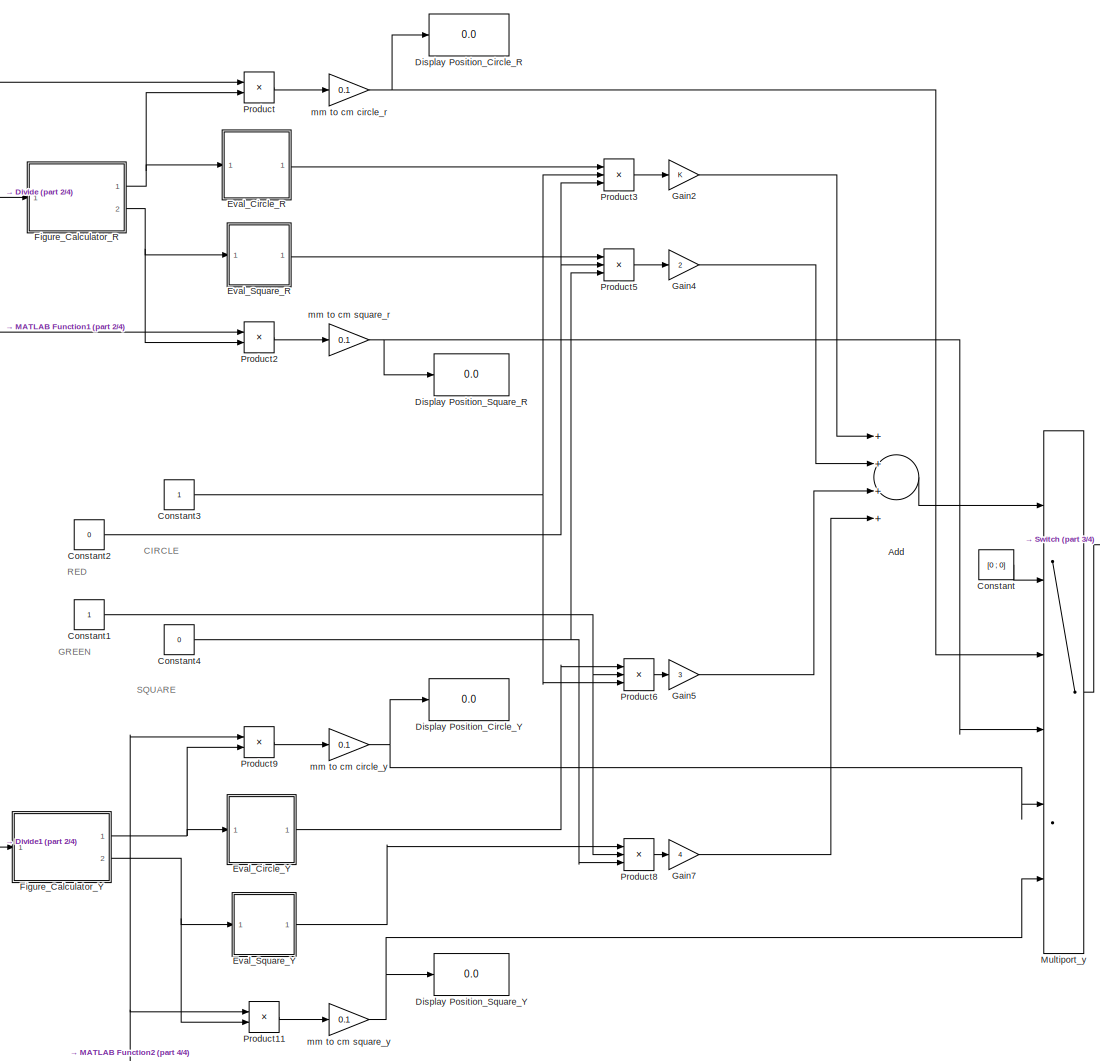
[diagram: Vision - part 1/4, right side, full height]
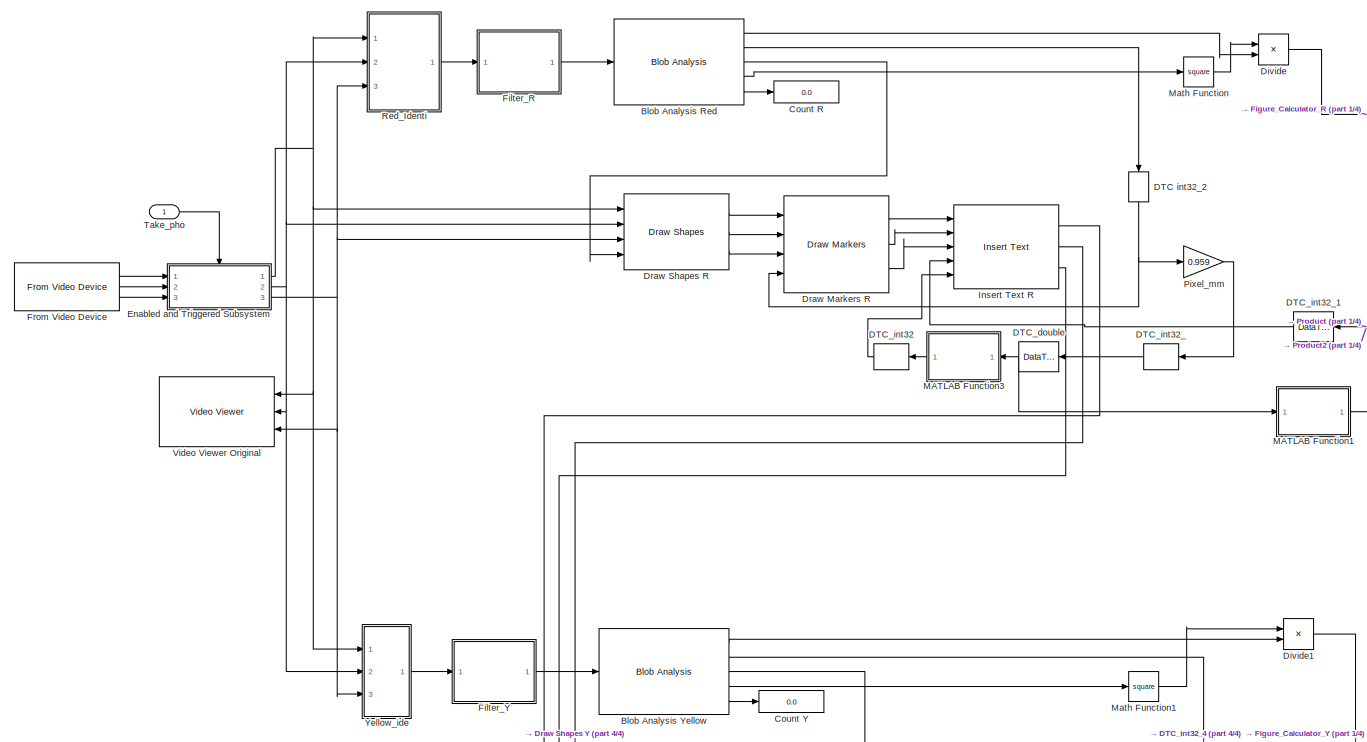
[diagram: Vision - part 2/4, middle left region]
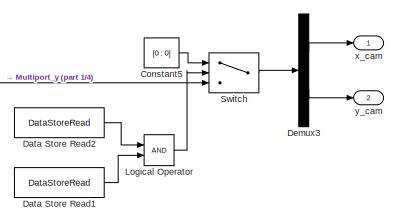
[diagram: Vision - part 3/4, middle right region]
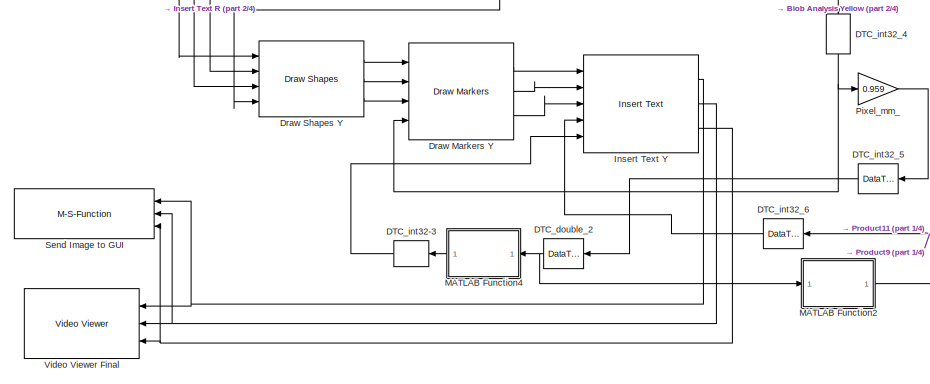
[diagram: Vision - part 4/4, bottom left region]
BLOCK [SubSystem] Vision
  Ports = [1, 2]
  RequestExecContextInheritance = off
  Variant = off
BLOCK [Sum] Vision/Add
  InputSameDT = off
  Inputs = ++++
  OutDataTypeStr = Inherit: Inherit via internal rule
  Ports = [4, 1]
  SaturateOnIntegerOverflow = off
BLOCK [Reference] Vision/Blob Analysis Red  REF=visionstatistics/Blob Analysis
  LockScale = off
  Ports = [1, 5]
  SourceBlock = visionstatistics/Blob Analysis
  SourceType = Blob Analysis
  Tag = vipblks_row_conv
  accumFracLength = 0
  accumMode = Binary point scaling
  accumWordLength = 32
  angle = off
  area = on
  bBox = on
  centroid = on
  conn = 8
  eccentricity = off
  equivDiameterSq = off
  excludeBorderBlob = on
  extent = off
  fillValues = -1
  firstCoeffFracLength = 14
  firstCoeffMode = Binary point scaling
  firstCoeffWordLength = 16
  isCount = on
  isFill = on
  isLabel = off
  isOutVarDim = off
  majorAxis = off
  maxArea = intmax('uint32')
  maxBlobs = 2
  memoryFracLength = 16
  memoryMode = Same as product output
  memoryWordLength = 32
  minArea = 700
  minorAxis = off
  outDT = double
  outputFracLength = 16
  outputMode = Binary point scaling
  outputWordLength = 32
  overflowMode = off
  perimeter = on
  prodOutputFracLength = 16
  prodOutputMode = Binary point scaling
  prodOutputWordLength = 32
  roundingMode = Floor
  secondCoeffFracLength = 16
  secondCoeffMode = Binary point scaling
  secondCoeffWordLength = 32
  useMaxArea = off
  useMinArea = on
  warnIfNumBlobsExceeded = on
BLOCK [Reference] Vision/Blob Analysis Yellow  REF=visionstatistics/Blob Analysis
  LockScale = off
  Ports = [1, 5]
  SourceBlock = visionstatistics/Blob Analysis
  SourceType = Blob Analysis
  Tag = vipblks_row_conv
  accumFracLength = 0
  accumMode = Binary point scaling
  accumWordLength = 32
  angle = off
  area = on
  bBox = on
  centroid = on
  conn = 8
  eccentricity = off
  equivDiameterSq = off
  excludeBorderBlob = on
  extent = off
  fillValues = -1
  firstCoeffFracLength = 14
  firstCoeffMode = Binary point scaling
  firstCoeffWordLength = 16
  isCount = on
  isFill = on
  isLabel = off
  isOutVarDim = off
  majorAxis = off
  maxArea = intmax('uint32')
  maxBlobs = 2
  memoryFracLength = 16
  memoryMode = Same as product output
  memoryWordLength = 32
  minArea = 700
  minorAxis = off
  outDT = double
  outputFracLength = 16
  outputMode = Binary point scaling
  outputWordLength = 32
  overflowMode = off
  perimeter = on
  prodOutputFracLength = 16
  prodOutputMode = Binary point scaling
  prodOutputWordLength = 32
  roundingMode = Floor
  secondCoeffFracLength = 16
  secondCoeffMode = Binary point scaling
  secondCoeffWordLength = 32
  useMaxArea = off
  useMinArea = on
  warnIfNumBlobsExceeded = on
BLOCK [Constant] Vision/Constant
  Value = [0 ; 0]
BLOCK [Constant] Vision/Constant1
BLOCK [Constant] Vision/Constant2
  Value = 0
BLOCK [Constant] Vision/Constant3
BLOCK [Constant] Vision/Constant4
  Value = 0
BLOCK [Constant] Vision/Constant5
  Value = [0 ; 0]
BLOCK [Display] Vision/Count R
  Decimation = 1
  Ports = [1]
BLOCK [Display] Vision/Count Y
  Decimation = 1
  Ports = [1]
BLOCK [DataTypeConversion] Vision/DTC int32_2
  OutDataTypeStr = uint32
  RndMeth = Floor
  SaturateOnIntegerOverflow = off
BLOCK [DataTypeConversion] Vision/DTC_double
  OutDataTypeStr = double
  RndMeth = Floor
  SaturateOnIntegerOverflow = off
BLOCK [DataTypeConversion] Vision/DTC_double_2
  OutDataTypeStr = double
  RndMeth = Floor
  SaturateOnIntegerOverflow = off
BLOCK [DataTypeConversion] Vision/DTC_int32
  OutDataTypeStr = int32
  RndMeth = Floor
  SaturateOnIntegerOverflow = off
BLOCK [DataTypeConversion] Vision/DTC_int32-3
  OutDataTypeStr = int32
  RndMeth = Floor
  SaturateOnIntegerOverflow = off
BLOCK [DataTypeConversion] Vision/DTC_int32_
  OutDataTypeStr = int32
  RndMeth = Floor
  SaturateOnIntegerOverflow = off
BLOCK [DataTypeConversion] Vision/DTC_int32_1
  OutDataTypeStr = int32
  RndMeth = Floor
  SaturateOnIntegerOverflow = off
BLOCK [DataTypeConversion] Vision/DTC_int32_4
  OutDataTypeStr = uint32
  RndMeth = Floor
  SaturateOnIntegerOverflow = off
BLOCK [DataTypeConversion] Vision/DTC_int32_5
  OutDataTypeStr = int32
  RndMeth = Floor
  SaturateOnIntegerOverflow = off
BLOCK [DataTypeConversion] Vision/DTC_int32_6
  OutDataTypeStr = int32
  RndMeth = Floor
  SaturateOnIntegerOverflow = off
BLOCK [DataStoreRead] Vision/Data Store Read1
  DataStoreName = Z_DOWN
  Ports = [0, 1]
BLOCK [DataStoreRead] Vision/Data Store Read2
  DataStoreName = No_WorkSpace
  Ports = [0, 1]
BLOCK [Demux] Vision/Demux3
  DisplayOption = bar
  Outputs = 2
  Ports = [1, 2]
BLOCK [Display] Vision/Display Position_Circle_R
  Decimation = 1
  Ports = [1]
BLOCK [Display] Vision/Display Position_Circle_Y
  Decimation = 1
  Ports = [1]
BLOCK [Display] Vision/Display Position_Square_R
  Decimation = 1
  Ports = [1]
BLOCK [Display] Vision/Display Position_Square_Y
  Decimation = 1
  Ports = [1]
BLOCK [Product] Vision/Divide
  InputSameDT = off
  Inputs = */
  OutDataTypeStr = Inherit: Inherit via internal rule
  Ports = [2, 1]
  RndMeth = Floor
  SaturateOnIntegerOverflow = off
BLOCK [Product] Vision/Divide1
  InputSameDT = off
  Inputs = */
  OutDataTypeStr = Inherit: Inherit via internal rule
  Ports = [2, 1]
  RndMeth = Floor
  SaturateOnIntegerOverflow = off
BLOCK [Reference] Vision/Draw Markers R  REF=visiontextngfix/Draw Markers
  LockScale = off
  Ports = [4, 3]
  SourceBlock = visiontextngfix/Draw Markers
  SourceType = Draw Markers
  accumFracLength = 14
  accumMode = Same as product output
  accumWordLength = 32
  antialiasing = off
  color = [0 0 1]
  display = User-specified value
  fill = off
  fillClrSource = Specify via dialog
  imagePorts = Separate color signals
  inType = Obsolete
  intensity = 200
  memoryFracLength = 15
  memoryMode = Specify word length
  memoryWordLength = 16
  opacity = 0.6
  overflowMode = off
  prodOutputFracLength = 14
  prodOutputMode = Binary point scaling
  prodOutputWordLength = 32
  roundingMode = Floor
  shape = Plus
  size = 8
  viewport = Entire image
BLOCK [Reference] Vision/Draw Markers Y  REF=visiontextngfix/Draw Markers
  LockScale = off
  Ports = [4, 3]
  SourceBlock = visiontextngfix/Draw Markers
  SourceType = Draw Markers
  accumFracLength = 14
  accumMode = Same as product output
  accumWordLength = 32
  antialiasing = off
  color = [0 0 1]
  display = User-specified value
  fill = off
  fillClrSource = Specify via dialog
  imagePorts = Separate color signals
  inType = Obsolete
  intensity = 200
  memoryFracLength = 15
  memoryMode = Specify word length
  memoryWordLength = 16
  opacity = 0.6
  overflowMode = off
  prodOutputFracLength = 14
  prodOutputMode = Binary point scaling
  prodOutputWordLength = 32
  roundingMode = Floor
  shape = Plus
  size = 8
  viewport = Entire image
BLOCK [Reference] Vision/Draw Shapes R  REF=visiontextngfix/Draw Shapes
  LockScale = off
  Ports = [4, 3]
  SourceBlock = visiontextngfix/Draw Shapes
  SourceType = Draw Shapes
  accumFracLength = 14
  accumMode = Same as product output
  accumWordLength = 32
  antialiasing = off
  color = [0 0 255]
  display = User-specified value
  fill = off
  fillClrSource = Specify via dialog
  imagePorts = Separate color signals
  inType = Obsolete
  intensity = 200
  lineWidth = 1
  memoryFracLength = 14
  memoryMode = Specify word length
  memoryWordLength = 16
  opacity = 0.5
  overflowMode = off
  prodOutputFracLength = 14
  prodOutputMode = Binary point scaling
  prodOutputWordLength = 32
  roundingMode = Floor
  shape = Rectangles
  viewport = Entire image
BLOCK [Reference] Vision/Draw Shapes Y  REF=visiontextngfix/Draw Shapes
  LockScale = off
  Ports = [4, 3]
  SourceBlock = visiontextngfix/Draw Shapes
  SourceType = Draw Shapes
  accumFracLength = 14
  accumMode = Same as product output
  accumWordLength = 32
  antialiasing = off
  color = [0 0 255]
  display = User-specified value
  fill = off
  fillClrSource = Specify via dialog
  imagePorts = Separate color signals
  inType = Obsolete
  intensity = 200
  lineWidth = 1
  memoryFracLength = 14
  memoryMode = Specify word length
  memoryWordLength = 16
  opacity = 0.5
  overflowMode = off
  prodOutputFracLength = 14
  prodOutputMode = Binary point scaling
  prodOutputWordLength = 32
  roundingMode = Floor
  shape = Rectangles
  viewport = Entire image
BLOCK [SubSystem] Vision/Enabled and Triggered Subsystem
  Ports = [3, 3, 1]
  RequestExecContextInheritance = off
  TreatAsAtomicUnit = on
  Variant = off
BLOCK [Inport] Vision/Enabled and Triggered Subsystem/B_in
  IconDisplay = Port number
  Port = 3
BLOCK [Outport] Vision/Enabled and Triggered Subsystem/B_out
  IconDisplay = Port number
  Port = 3
BLOCK [EnablePort] Vision/Enabled and Triggered Subsystem/Enable
  Ports = []
BLOCK [Inport] Vision/Enabled and Triggered Subsystem/G_in
  IconDisplay = Port number
  Port = 2
BLOCK [Outport] Vision/Enabled and Triggered Subsystem/G_out
  IconDisplay = Port number
  Port = 2
BLOCK [Inport] Vision/Enabled and Triggered Subsystem/R_in
  IconDisplay = Port number
BLOCK [Outport] Vision/Enabled and Triggered Subsystem/R_out
  IconDisplay = Port number
BLOCK [SubSystem] Vision/Eval_Circle_R
  Ports = [1, 1]
  RequestExecContextInheritance = off
  Variant = off
BLOCK [Reference] Vision/Eval_Circle_R/Compare To Constant  REF=simulink/Logic and Bit
Operations/Compare
To Constant
  OutDataTypeStr = boolean
  Ports = [1, 1]
  SourceBlock = simulink/Logic and Bit\nOperations/Compare\nTo Constant
  SourceType = Compare To Constant
  ZeroCross = on
  const = 1.0
  relop = >=
BLOCK [Constant] Vision/Eval_Circle_R/Constant
  Value = [1,1]
  VectorParams1D = off
BLOCK [DataTypeConversion] Vision/Eval_Circle_R/Data Type Conversion1
  OutDataTypeStr = double
  RndMeth = Floor
  SaturateOnIntegerOverflow = off
BLOCK [DotProduct] Vision/Eval_Circle_R/Dot Product
  OutDataTypeStr = Inherit: Inherit via internal rule
BLOCK [Inport] Vision/Eval_Circle_R/In1
  IconDisplay = Port number
BLOCK [Outport] Vision/Eval_Circle_R/Out1
  IconDisplay = Port number
BLOCK [SubSystem] Vision/Eval_Circle_Y
  Ports = [1, 1]
  RequestExecContextInheritance = off
  Variant = off
BLOCK [Reference] Vision/Eval_Circle_Y/Compare To Constant  REF=simulink/Logic and Bit
Operations/Compare
To Constant
  OutDataTypeStr = boolean
  Ports = [1, 1]
  SourceBlock = simulink/Logic and Bit\nOperations/Compare\nTo Constant
  SourceType = Compare To Constant
  ZeroCross = on
  const = 1.0
  relop = >=
BLOCK [Constant] Vision/Eval_Circle_Y/Constant
  Value = [1,1]
  VectorParams1D = off
BLOCK [DataTypeConversion] Vision/Eval_Circle_Y/Data Type Conversion1
  OutDataTypeStr = double
  RndMeth = Floor
  SaturateOnIntegerOverflow = off
BLOCK [DotProduct] Vision/Eval_Circle_Y/Dot Product
  OutDataTypeStr = Inherit: Inherit via internal rule
BLOCK [Inport] Vision/Eval_Circle_Y/In1
  IconDisplay = Port number
BLOCK [Outport] Vision/Eval_Circle_Y/Out1
  IconDisplay = Port number
BLOCK [SubSystem] Vision/Eval_Square_R
  Ports = [1, 1]
  RequestExecContextInheritance = off
  Variant = off
BLOCK [Reference] Vision/Eval_Square_R/Compare To Constant  REF=simulink/Logic and Bit
Operations/Compare
To Constant
  OutDataTypeStr = boolean
  Ports = [1, 1]
  SourceBlock = simulink/Logic and Bit\nOperations/Compare\nTo Constant
  SourceType = Compare To Constant
  ZeroCross = on
  const = 1.0
  relop = >=
BLOCK [Constant] Vision/Eval_Square_R/Constant
  Value = [1,1]
  VectorParams1D = off
BLOCK [DataTypeConversion] Vision/Eval_Square_R/Data Type Conversion1
  OutDataTypeStr = double
  RndMeth = Floor
  SaturateOnIntegerOverflow = off
BLOCK [DotProduct] Vision/Eval_Square_R/Dot Product
  OutDataTypeStr = Inherit: Inherit via internal rule
BLOCK [Inport] Vision/Eval_Square_R/In1
  IconDisplay = Port number
BLOCK [Outport] Vision/Eval_Square_R/Out1
  IconDisplay = Port number
BLOCK [SubSystem] Vision/Eval_Square_Y
  Ports = [1, 1]
  RequestExecContextInheritance = off
  Variant = off
BLOCK [Reference] Vision/Eval_Square_Y/Compare To Constant  REF=simulink/Logic and Bit
Operations/Compare
To Constant
  OutDataTypeStr = boolean
  Ports = [1, 1]
  SourceBlock = simulink/Logic and Bit\nOperations/Compare\nTo Constant
  SourceType = Compare To Constant
  ZeroCross = on
  const = 1.0
  relop = >=
BLOCK [Constant] Vision/Eval_Square_Y/Constant
  Value = [1,1]
  VectorParams1D = off
BLOCK [DataTypeConversion] Vision/Eval_Square_Y/Data Type Conversion1
  OutDataTypeStr = double
  RndMeth = Floor
  SaturateOnIntegerOverflow = off
BLOCK [DotProduct] Vision/Eval_Square_Y/Dot Product
  OutDataTypeStr = Inherit: Inherit via internal rule
BLOCK [Inport] Vision/Eval_Square_Y/In1
  IconDisplay = Port number
BLOCK [Outport] Vision/Eval_Square_Y/Out1
  IconDisplay = Port number
BLOCK [SubSystem] Vision/Figure_Calculator_R
  Ports = [1, 2]
  RequestExecContextInheritance = off
  Variant = off
BLOCK [Inport] Vision/Figure_Calculator_R/C 
  IconDisplay = Port number
BLOCK [Outport] Vision/Figure_Calculator_R/Circle
  IconDisplay = Port number
BLOCK [Constant] Vision/Figure_Calculator_R/Constant1
  Value = 13.6
BLOCK [Constant] Vision/Figure_Calculator_R/Constant4
  Value = 12.5
BLOCK [Constant] Vision/Figure_Calculator_R/Constant5
  Value = 18
BLOCK [Constant] Vision/Figure_Calculator_R/Constant6
  Value = 13.6
BLOCK [Logic] Vision/Figure_Calculator_R/Logical Operator
  AllPortsSameDT = off
  OutDataTypeStr = boolean
  Ports = [2, 1]
BLOCK [Logic] Vision/Figure_Calculator_R/Logical Operator2
  AllPortsSameDT = off
  OutDataTypeStr = boolean
  Ports = [2, 1]
BLOCK [RelationalOperator] Vision/Figure_Calculator_R/Relational Operator
  InputSameDT = off
  Operator = <=
  OutDataTypeStr = boolean
  Ports = [2, 1]
BLOCK [RelationalOperator] Vision/Figure_Calculator_R/Relational Operator1
  InputSameDT = off
  Operator = >
  OutDataTypeStr = boolean
  Ports = [2, 1]
BLOCK [RelationalOperator] Vision/Figure_Calculator_R/Relational Operator4
  InputSameDT = off
  Operator = <=
  OutDataTypeStr = boolean
  Ports = [2, 1]
BLOCK [RelationalOperator] Vision/Figure_Calculator_R/Relational Operator5
  InputSameDT = off
  Operator = >
  OutDataTypeStr = boolean
  Ports = [2, 1]
BLOCK [Outport] Vision/Figure_Calculator_R/Square
  IconDisplay = Port number
  Port = 2
BLOCK [SubSystem] Vision/Figure_Calculator_Y
  Ports = [1, 2]
  RequestExecContextInheritance = off
  Variant = off
BLOCK [Inport] Vision/Figure_Calculator_Y/C 
  IconDisplay = Port number
BLOCK [Outport] Vision/Figure_Calculator_Y/Circle
  IconDisplay = Port number
BLOCK [Constant] Vision/Figure_Calculator_Y/Constant1
  Value = 13.6
BLOCK [Constant] Vision/Figure_Calculator_Y/Constant4
  Value = 12.5
BLOCK [Constant] Vision/Figure_Calculator_Y/Constant5
  Value = 18
BLOCK [Constant] Vision/Figure_Calculator_Y/Constant6
  Value = 13.6
BLOCK [Logic] Vision/Figure_Calculator_Y/Logical Operator
  AllPortsSameDT = off
  OutDataTypeStr = boolean
  Ports = [2, 1]
BLOCK [Logic] Vision/Figure_Calculator_Y/Logical Operator2
  AllPortsSameDT = off
  OutDataTypeStr = boolean
  Ports = [2, 1]
BLOCK [RelationalOperator] Vision/Figure_Calculator_Y/Relational Operator
  InputSameDT = off
  Operator = <=
  OutDataTypeStr = boolean
  Ports = [2, 1]
BLOCK [RelationalOperator] Vision/Figure_Calculator_Y/Relational Operator1
  InputSameDT = off
  Operator = >
  OutDataTypeStr = boolean
  Ports = [2, 1]
BLOCK [RelationalOperator] Vision/Figure_Calculator_Y/Relational Operator4
  InputSameDT = off
  Operator = <=
  OutDataTypeStr = boolean
  Ports = [2, 1]
BLOCK [RelationalOperator] Vision/Figure_Calculator_Y/Relational Operator5
  InputSameDT = off
  Operator = >
  OutDataTypeStr = boolean
  Ports = [2, 1]
BLOCK [Outport] Vision/Figure_Calculator_Y/Square
  IconDisplay = Port number
  Port = 2
BLOCK [SubSystem] Vision/Filter_R
  Ports = [1, 1]
  RequestExecContextInheritance = off
  Variant = off
BLOCK [Inport] Vision/Filter_R/Bw_in
  IconDisplay = Port number
BLOCK [Outport] Vision/Filter_R/Bw_out
  IconDisplay = Port number
BLOCK [Reference] Vision/Filter_R/Dilation strel('diamond',2)  REF=visionmorphops/Dilation
  Ports = [1, 1]
  SourceBlock = visionmorphops/Dilation
  SourceType = Dilation
  nhoodsrc = Specify via dialog
  strel = strel('diamond',2)
BLOCK [Reference] Vision/Filter_R/Erosion strel('diamond',1)  REF=visionmorphops/Erosion
  Ports = [1, 1]
  SourceBlock = visionmorphops/Erosion
  SourceType = Erosion
  nhoodsrc = Specify via dialog
  strel = strel('diamond',1)
BLOCK [SubSystem] Vision/Filter_Y
  Ports = [1, 1]
  RequestExecContextInheritance = off
  Variant = off
BLOCK [Inport] Vision/Filter_Y/Bw_in
  IconDisplay = Port number
BLOCK [Outport] Vision/Filter_Y/Bw_out
  IconDisplay = Port number
BLOCK [Reference] Vision/Filter_Y/Dilation strel('diamond',2)  REF=visionmorphops/Dilation
  Ports = [1, 1]
  SourceBlock = visionmorphops/Dilation
  SourceType = Dilation
  nhoodsrc = Specify via dialog
  strel = strel('diamond',2)
BLOCK [Reference] Vision/Filter_Y/Erosion strel('diamond',1)  REF=visionmorphops/Erosion
  Ports = [1, 1]
  SourceBlock = visionmorphops/Erosion
  SourceType = Erosion
  nhoodsrc = Specify via dialog
  strel = strel('diamond',1)
BLOCK [Reference] Vision/From Video Device  REF=imaqlib/From Video Device
  BayerSensorAlignment = grbg
  BlockHandle = 645.0004
  CanDoHWTrigger = no
  DataType = single
  DevXMLPath = <path>
  Device = winvideo 1 (Logitech HD Webcam C525)
  DeviceMenu = (none)
  EnableHWTrigger = off
  EngLibPath = C:\Program Files\MATLAB\R2017a\toolbox\imaq\imaqblks\imaqmex\win64
  EngXMLPath = C:\Program Files\MATLAB\R2017a\toolbox\imaq\imaq\private
  ObjConstructor = videoinput('winvideo', 1)
  OutputPortsMode = Separate color signals
  Ports = [0, 3]
  ROIColumn = 115
  ROIHeight = 146
  ROIPosition = [184 115 146 417]
  ROIRow = 184
  ROIWidth = 417
  ReturnedColorSpace = rgb
  SampleTime = 1/5
  SourceBlock = imaqlib/From Video Device
  SourceType = From Video Device
  TriggerConfiguration = none/none
  UserDataPersistent = on
  VideoFormat = RGB24_640x480
  VideoFormatMenu = (none)
  VideoSource = input1
BLOCK [Gain] Vision/Gain2
  OutDataTypeStr = Inherit: Inherit via internal rule
  ParamDataTypeStr = Inherit: Inherit via internal rule
  SaturateOnIntegerOverflow = off
BLOCK [Gain] Vision/Gain4
  Gain = 2
  OutDataTypeStr = Inherit: Inherit via internal rule
  ParamDataTypeStr = Inherit: Inherit via internal rule
  SaturateOnIntegerOverflow = off
BLOCK [Gain] Vision/Gain5
  Gain = 3
  OutDataTypeStr = Inherit: Inherit via internal rule
  ParamDataTypeStr = Inherit: Inherit via internal rule
  SaturateOnIntegerOverflow = off
BLOCK [Gain] Vision/Gain7
  Gain = 4
  OutDataTypeStr = Inherit: Inherit via internal rule
  ParamDataTypeStr = Inherit: Inherit via internal rule
  SaturateOnIntegerOverflow = off
BLOCK [Reference] Vision/Insert Text R  REF=visiontextngfix/Insert Text
  Ports = [5, 3]
  SourceBlock = visiontextngfix/Insert Text
  SourceType = Insert Text
  antiAliased = on
  blockFontSize = 20
  dummyVar1 = 0
  dummyVar2 = 0
  dummyVar3 = 0
  dummyVar4 = 0
  fontFace = Calibri
  getTextColorFrom = Specify via dialog
  getTextIntensityFrom = Specify via dialog
  getTextLocFrom = Input port
  getTextOpacityFrom = Specify via dialog
  imagePorts = Separate color signals
  inputType = Obsolete
  isInputTransposed = off
  textColor = [0 0 0]
  textIntensity = 0
  textLoc = [1 1]
  textOpacity = 1
  theText = '[%i;%i]'
BLOCK [Reference] Vision/Insert Text Y  REF=visiontextngfix/Insert Text
  Ports = [5, 3]
  SourceBlock = visiontextngfix/Insert Text
  SourceType = Insert Text
  antiAliased = on
  blockFontSize = 20
  dummyVar1 = 0
  dummyVar2 = 0
  dummyVar3 = 0
  dummyVar4 = 0
  fontFace = Calibri
  getTextColorFrom = Specify via dialog
  getTextIntensityFrom = Specify via dialog
  getTextLocFrom = Input port
  getTextOpacityFrom = Specify via dialog
  imagePorts = Separate color signals
  inputType = Obsolete
  isInputTransposed = off
  textColor = [0 0 0]
  textIntensity = 0
  textLoc = [1 1]
  textOpacity = 1
  theText = '[%i;%i]'
BLOCK [Logic] Vision/Logical Operator
  AllPortsSameDT = off
  OutDataTypeStr = boolean
  Ports = [2, 1]
BLOCK [SubSystem] Vision/MATLAB Function1
  ErrorFcn = Stateflow.Translate.translate
  PermitHierarchicalResolution = ParametersOnly
  Ports = [1, 1]
  RequestExecContextInheritance = off
  SFBlockType = MATLAB Function
  TreatAsAtomicUnit = on
  Variant = off
BLOCK [Demux] Vision/MATLAB Function1/ Demux 
  Outputs = 1
  Ports = [1, 1]
BLOCK [S-Function] Vision/MATLAB Function1/ SFunction 
  EnableBusSupport = on
  FunctionName = sf_sfun
  PortCounts = [1 2]
  Ports = [1, 2]
  SFunctionDeploymentMode = off
  Tag = Stateflow S-Function Automatic_Movement_2015_CORRECTA 3
BLOCK [Terminator] Vision/MATLAB Function1/ Terminator 
BLOCK [Inport] Vision/MATLAB Function1/center
  IconDisplay = Port number
BLOCK [Outport] Vision/MATLAB Function1/variable
  IconDisplay = Port number
BLOCK [SubSystem] Vision/MATLAB Function2
  ErrorFcn = Stateflow.Translate.translate
  PermitHierarchicalResolution = ParametersOnly
  Ports = [1, 1]
  RequestExecContextInheritance = off
  SFBlockType = MATLAB Function
  TreatAsAtomicUnit = on
  Variant = off
BLOCK [Demux] Vision/MATLAB Function2/ Demux 
  Outputs = 1
  Ports = [1, 1]
BLOCK [S-Function] Vision/MATLAB Function2/ SFunction 
  EnableBusSupport = on
  FunctionName = sf_sfun
  PortCounts = [1 2]
  Ports = [1, 2]
  SFunctionDeploymentMode = off
  Tag = Stateflow S-Function Automatic_Movement_2015_CORRECTA 4
BLOCK [Terminator] Vision/MATLAB Function2/ Terminator 
BLOCK [Inport] Vision/MATLAB Function2/center
  IconDisplay = Port number
BLOCK [Outport] Vision/MATLAB Function2/variable
  IconDisplay = Port number
BLOCK [SubSystem] Vision/MATLAB Function3
  ErrorFcn = Stateflow.Translate.translate
  PermitHierarchicalResolution = ParametersOnly
  Ports = [1, 1]
  RequestExecContextInheritance = off
  SFBlockType = MATLAB Function
  TreatAsAtomicUnit = on
  Variant = off
BLOCK [Demux] Vision/MATLAB Function3/ Demux 
  Outputs = 1
  Ports = [1, 1]
BLOCK [S-Function] Vision/MATLAB Function3/ SFunction 
  EnableBusSupport = on
  FunctionName = sf_sfun
  PortCounts = [1 2]
  Ports = [1, 2]
  SFunctionDeploymentMode = off
  Tag = Stateflow S-Function Automatic_Movement_2015_CORRECTA 5
BLOCK [Terminator] Vision/MATLAB Function3/ Terminator 
BLOCK [Inport] Vision/MATLAB Function3/center
  IconDisplay = Port number
BLOCK [Outport] Vision/MATLAB Function3/location
  IconDisplay = Port number
BLOCK [SubSystem] Vision/MATLAB Function4
  ErrorFcn = Stateflow.Translate.translate
  PermitHierarchicalResolution = ParametersOnly
  Ports = [1, 1]
  RequestExecContextInheritance = off
  SFBlockType = MATLAB Function
  TreatAsAtomicUnit = on
  Variant = off
BLOCK [Demux] Vision/MATLAB Function4/ Demux 
  Outputs = 1
  Ports = [1, 1]
BLOCK [S-Function] Vision/MATLAB Function4/ SFunction 
  EnableBusSupport = on
  FunctionName = sf_sfun
  PortCounts = [1 2]
  Ports = [1, 2]
  SFunctionDeploymentMode = off
  Tag = Stateflow S-Function Automatic_Movement_2015_CORRECTA 7
BLOCK [Terminator] Vision/MATLAB Function4/ Terminator 
BLOCK [Inport] Vision/MATLAB Function4/center
  IconDisplay = Port number
BLOCK [Outport] Vision/MATLAB Function4/location
  IconDisplay = Port number
BLOCK [Math] Vision/Math Function
  Operator = square
  Ports = [1, 1]
BLOCK [Math] Vision/Math Function1
  Operator = square
  Ports = [1, 1]
BLOCK [MultiPortSwitch] Vision/Multiport_y
  DataPortIndices = {0,1,2,3,4}
  DataPortOrder = Specify indices
  DiagnosticForDefault = None
  InputSameDT = off
  Inputs = 6
  Ports = [6, 1]
  SaturateOnIntegerOverflow = off
BLOCK [Gain] Vision/Pixel_mm
  Gain = 0.959
  OutDataTypeStr = Inherit: Inherit via internal rule
  ParamDataTypeStr = Inherit: Inherit via internal rule
  SaturateOnIntegerOverflow = off
BLOCK [Gain] Vision/Pixel_mm_
  Gain = 0.959
  OutDataTypeStr = Inherit: Inherit via internal rule
  ParamDataTypeStr = Inherit: Inherit via internal rule
  SaturateOnIntegerOverflow = off
BLOCK [Product] Vision/Product
  InputSameDT = off
  Multiplication = Matrix(*)
  OutDataTypeStr = Inherit: Inherit via internal rule
  Ports = [2, 1]
  RndMeth = Floor
  SaturateOnIntegerOverflow = off
BLOCK [Product] Vision/Product11
  InputSameDT = off
  Multiplication = Matrix(*)
  OutDataTypeStr = Inherit: Inherit via internal rule
  Ports = [2, 1]
  RndMeth = Floor
  SaturateOnIntegerOverflow = off
BLOCK [Product] Vision/Product2
  InputSameDT = off
  Multiplication = Matrix(*)
  OutDataTypeStr = Inherit: Inherit via internal rule
  Ports = [2, 1]
  RndMeth = Floor
  SaturateOnIntegerOverflow = off
BLOCK [Product] Vision/Product3
  InputSameDT = off
  Inputs = 3
  OutDataTypeStr = Inherit: Inherit via internal rule
  Ports = [3, 1]
  RndMeth = Floor
  SaturateOnIntegerOverflow = off
BLOCK [Product] Vision/Product5
  InputSameDT = off
  Inputs = 3
  OutDataTypeStr = Inherit: Inherit via internal rule
  Ports = [3, 1]
  RndMeth = Floor
  SaturateOnIntegerOverflow = off
BLOCK [Product] Vision/Product6
  InputSameDT = off
  Inputs = 3
  OutDataTypeStr = Inherit: Inherit via internal rule
  Ports = [3, 1]
  RndMeth = Floor
  SaturateOnIntegerOverflow = off
BLOCK [Product] Vision/Product8
  InputSameDT = off
  Inputs = 3
  OutDataTypeStr = Inherit: Inherit via internal rule
  Ports = [3, 1]
  RndMeth = Floor
  SaturateOnIntegerOverflow = off
BLOCK [Product] Vision/Product9
  InputSameDT = off
  Multiplication = Matrix(*)
  OutDataTypeStr = Inherit: Inherit via internal rule
  Ports = [2, 1]
  RndMeth = Floor
  SaturateOnIntegerOverflow = off
BLOCK [SubSystem] Vision/Red_Identi
  Ports = [3, 1]
  RequestExecContextInheritance = off
  Variant = off
BLOCK [Inport] Vision/Red_Identi/B
  IconDisplay = Port number
  Port = 3
BLOCK [Outport] Vision/Red_Identi/BW
  IconDisplay = Port number
BLOCK [Inport] Vision/Red_Identi/G
  IconDisplay = Port number
  Port = 2
BLOCK [Logic] Vision/Red_Identi/Logical Operator
  AllPortsSameDT = off
  Inputs = 6
  OutDataTypeStr = boolean
  Ports = [6, 1]
BLOCK [Reference] Vision/Red_Identi/Median Filter_Circular_[5 5]_B  REF=visionanalysis/Median Filter
  LockScale = off
  Ports = [1, 1]
  SourceBlock = visionanalysis/Median Filter
  SourceType = Median Filter
  accumFracLength = 30
  accumMode = Same as input
  accumWordLength = 32
  nghbood = [5 5]
  outSize = Same as input port I
  outputFracLength = 15
  outputMode = Same as input
  outputWordLength = 16
  overflowMode = off
  padSrc = Specify via dialog
  padType = Circular
  padVal = 0
  prodOutputFracLength = 30
  prodOutputMode = Same as input
  prodOutputWordLength = 32
  roundingMode = Floor
BLOCK [Reference] Vision/Red_Identi/Median Filter_Circular_[5 5]_G  REF=visionanalysis/Median Filter
  LockScale = off
  Ports = [1, 1]
  SourceBlock = visionanalysis/Median Filter
  SourceType = Median Filter
  accumFracLength = 30
  accumMode = Same as input
  accumWordLength = 32
  nghbood = [5 5]
  outSize = Same as input port I
  outputFracLength = 15
  outputMode = Same as input
  outputWordLength = 16
  overflowMode = off
  padSrc = Specify via dialog
  padType = Circular
  padVal = 0
  prodOutputFracLength = 30
  prodOutputMode = Same as input
  prodOutputWordLength = 32
  roundingMode = Floor
BLOCK [Reference] Vision/Red_Identi/Median Filter_Circular_[5 5]_R  REF=visionanalysis/Median Filter
  LockScale = off
  Ports = [1, 1]
  SourceBlock = visionanalysis/Median Filter
  SourceType = Median Filter
  accumFracLength = 30
  accumMode = Same as input
  accumWordLength = 32
  nghbood = [5 5]
  outSize = Same as input port I
  outputFracLength = 15
  outputMode = Same as input
  outputWordLength = 16
  overflowMode = off
  padSrc = Specify via dialog
  padType = Circular
  padVal = 0
  prodOutputFracLength = 30
  prodOutputMode = Same as input
  prodOutputWordLength = 32
  roundingMode = Floor
BLOCK [Inport] Vision/Red_Identi/R
  IconDisplay = Port number
BLOCK [Reference] Vision/Red_Identi/Th_max_B  REF=simulink/Logic and Bit
Operations/Compare
To Constant
  OutDataTypeStr = boolean
  Ports = [1, 1]
  SourceBlock = simulink/Logic and Bit\nOperations/Compare\nTo Constant
  SourceType = Compare To Constant
  ZeroCross = on
  const = (150)/255
  relop = <=
BLOCK [Reference] Vision/Red_Identi/Th_max_G  REF=simulink/Logic and Bit
Operations/Compare
To Constant
  OutDataTypeStr = boolean
  Ports = [1, 1]
  SourceBlock = simulink/Logic and Bit\nOperations/Compare\nTo Constant
  SourceType = Compare To Constant
  ZeroCross = on
  const = (150)/255
  relop = <=
BLOCK [Reference] Vision/Red_Identi/Th_max_R   REF=simulink/Logic and Bit
Operations/Compare
To Constant
  OutDataTypeStr = boolean
  Ports = [1, 1]
  SourceBlock = simulink/Logic and Bit\nOperations/Compare\nTo Constant
  SourceType = Compare To Constant
  ZeroCross = on
  const = (225+30)/255
  relop = <=
BLOCK [Reference] Vision/Red_Identi/Th_min_B  REF=simulink/Logic and Bit
Operations/Compare
To Constant
  OutDataTypeStr = boolean
  Ports = [1, 1]
  SourceBlock = simulink/Logic and Bit\nOperations/Compare\nTo Constant
  SourceType = Compare To Constant
  ZeroCross = on
  const = (0)/255
  relop = >=
BLOCK [Reference] Vision/Red_Identi/Th_min_G  REF=simulink/Logic and Bit
Operations/Compare
To Constant
  OutDataTypeStr = boolean
  Ports = [1, 1]
  SourceBlock = simulink/Logic and Bit\nOperations/Compare\nTo Constant
  SourceType = Compare To Constant
  ZeroCross = on
  const = (0)/255
  relop = >=
BLOCK [Reference] Vision/Red_Identi/Th_min_R  REF=simulink/Logic and Bit
Operations/Compare
To Constant
  OutDataTypeStr = boolean
  Ports = [1, 1]
  SourceBlock = simulink/Logic and Bit\nOperations/Compare\nTo Constant
  SourceType = Compare To Constant
  ZeroCross = on
  const = (225-40)/255
  relop = >=
BLOCK [M-S-Function] Vision/Send Image to GUI
  FunctionName = act_ima
  Ports = [3]
BLOCK [Switch] Vision/Switch
  InputSameDT = off
  SaturateOnIntegerOverflow = off
  Threshold = 1
  ZeroCross = off
BLOCK [Inport] Vision/Take_pho
  IconDisplay = Port number
BLOCK [Reference] Vision/Video Viewer Final  REF=visionsinks/Video Viewer
  AxisZoom = on
  FigPos = [476 894 766 716]
  OpenAtMdlStart = off
  Ports = [3]
  SourceBlock = visionsinks/Video Viewer
  SourceType = Video Viewer
  UserDataPersistent = on
  colormapValue = gray(256)
  imagePorts = separate color signals
  inputType = Obsolete7b
  maxInputVal = 255
  minInputVal = 0
  specRange = off
  trueSizedOnce = off
  useColorMap = off
BLOCK [Reference] Vision/Video Viewer Original  REF=visionsinks/Video Viewer
  AxisZoom = on
  FigPos = [1 822 1444 724]
  OpenAtMdlStart = off
  Ports = [3]
  SourceBlock = visionsinks/Video Viewer
  SourceType = Video Viewer
  UserDataPersistent = on
  colormapValue = gray(256)
  imagePorts = separate color signals
  inputType = Obsolete7b
  maxInputVal = 255
  minInputVal = 0
  specRange = off
  trueSizedOnce = off
  useColorMap = off
BLOCK [SubSystem] Vision/Yellow_ide
  Ports = [3, 1]
  RequestExecContextInheritance = off
  Variant = off
BLOCK [Inport] Vision/Yellow_ide/B
  IconDisplay = Port number
  Port = 3
BLOCK [Outport] Vision/Yellow_ide/BW
  IconDisplay = Port number
BLOCK [Inport] Vision/Yellow_ide/G
  IconDisplay = Port number
  Port = 2
BLOCK [Logic] Vision/Yellow_ide/Logical Operator
  AllPortsSameDT = off
  Inputs = 6
  OutDataTypeStr = boolean
  Ports = [6, 1]
BLOCK [Reference] Vision/Yellow_ide/Median Filter_Circular_[5 5]_B  REF=visionanalysis/Median Filter
  LockScale = off
  Ports = [1, 1]
  SourceBlock = visionanalysis/Median Filter
  SourceType = Median Filter
  accumFracLength = 30
  accumMode = Same as input
  accumWordLength = 32
  nghbood = [5 5]
  outSize = Same as input port I
  outputFracLength = 15
  outputMode = Same as input
  outputWordLength = 16
  overflowMode = off
  padSrc = Specify via dialog
  padType = Circular
  padVal = 0
  prodOutputFracLength = 30
  prodOutputMode = Same as input
  prodOutputWordLength = 32
  roundingMode = Floor
BLOCK [Reference] Vision/Yellow_ide/Median Filter_Circular_[5 5]_G  REF=visionanalysis/Median Filter
  LockScale = off
  Ports = [1, 1]
  SourceBlock = visionanalysis/Median Filter
  SourceType = Median Filter
  accumFracLength = 30
  accumMode = Same as input
  accumWordLength = 32
  nghbood = [5 5]
  outSize = Same as input port I
  outputFracLength = 15
  outputMode = Same as input
  outputWordLength = 16
  overflowMode = off
  padSrc = Specify via dialog
  padType = Circular
  padVal = 0
  prodOutputFracLength = 30
  prodOutputMode = Same as input
  prodOutputWordLength = 32
  roundingMode = Floor
BLOCK [Reference] Vision/Yellow_ide/Median Filter_Circular_[5 5]_R  REF=visionanalysis/Median Filter
  LockScale = off
  Ports = [1, 1]
  SourceBlock = visionanalysis/Median Filter
  SourceType = Median Filter
  accumFracLength = 30
  accumMode = Same as input
  accumWordLength = 32
  nghbood = [5 5]
  outSize = Same as input port I
  outputFracLength = 15
  outputMode = Same as input
  outputWordLength = 16
  overflowMode = off
  padSrc = Specify via dialog
  padType = Circular
  padVal = 0
  prodOutputFracLength = 30
  prodOutputMode = Same as input
  prodOutputWordLength = 32
  roundingMode = Floor
BLOCK [Inport] Vision/Yellow_ide/R
  IconDisplay = Port number
BLOCK [Reference] Vision/Yellow_ide/Th_max_B  REF=simulink/Logic and Bit
Operations/Compare
To Constant
  OutDataTypeStr = boolean
  Ports = [1, 1]
  SourceBlock = simulink/Logic and Bit\nOperations/Compare\nTo Constant
  SourceType = Compare To Constant
  ZeroCross = on
  const = (200)/255
  relop = <=
BLOCK [Reference] Vision/Yellow_ide/Th_max_G  REF=simulink/Logic and Bit
Operations/Compare
To Constant
  OutDataTypeStr = boolean
  Ports = [1, 1]
  SourceBlock = simulink/Logic and Bit\nOperations/Compare\nTo Constant
  SourceType = Compare To Constant
  ZeroCross = on
  const = (225+30)/255
  relop = <=
BLOCK [Reference] Vision/Yellow_ide/Th_max_R  REF=simulink/Logic and Bit
Operations/Compare
To Constant
  OutDataTypeStr = boolean
  Ports = [1, 1]
  SourceBlock = simulink/Logic and Bit\nOperations/Compare\nTo Constant
  SourceType = Compare To Constant
  ZeroCross = on
  const = (225+30)/255
  relop = <=
BLOCK [Reference] Vision/Yellow_ide/Th_min_B  REF=simulink/Logic and Bit
Operations/Compare
To Constant
  OutDataTypeStr = boolean
  Ports = [1, 1]
  SourceBlock = simulink/Logic and Bit\nOperations/Compare\nTo Constant
  SourceType = Compare To Constant
  ZeroCross = on
  const = (0)/255
  relop = >=
BLOCK [Reference] Vision/Yellow_ide/Th_min_G   REF=simulink/Logic and Bit
Operations/Compare
To Constant
  OutDataTypeStr = boolean
  Ports = [1, 1]
  SourceBlock = simulink/Logic and Bit\nOperations/Compare\nTo Constant
  SourceType = Compare To Constant
  ZeroCross = on
  const = (200)/255
  relop = >=
BLOCK [Reference] Vision/Yellow_ide/Th_min_R   REF=simulink/Logic and Bit
Operations/Compare
To Constant
  OutDataTypeStr = boolean
  Ports = [1, 1]
  SourceBlock = simulink/Logic and Bit\nOperations/Compare\nTo Constant
  SourceType = Compare To Constant
  ZeroCross = on
  const = (200)/255
  relop = >=
BLOCK [Gain] Vision/mm to cm circle_r
  Gain = 0.1
  OutDataTypeStr = Inherit: Inherit via internal rule
  ParamDataTypeStr = Inherit: Inherit via internal rule
  SaturateOnIntegerOverflow = off
BLOCK [Gain] Vision/mm to cm circle_y
  Gain = 0.1
  OutDataTypeStr = Inherit: Inherit via internal rule
  ParamDataTypeStr = Inherit: Inherit via internal rule
  SaturateOnIntegerOverflow = off
BLOCK [Gain] Vision/mm to cm square_r
  Gain = 0.1
  OutDataTypeStr = Inherit: Inherit via internal rule
  ParamDataTypeStr = Inherit: Inherit via internal rule
  SaturateOnIntegerOverflow = off
BLOCK [Gain] Vision/mm to cm square_y
  Gain = 0.1
  OutDataTypeStr = Inherit: Inherit via internal rule
  ParamDataTypeStr = Inherit: Inherit via internal rule
  SaturateOnIntegerOverflow = off
BLOCK [Outport] Vision/x_cam
  IconDisplay = Port number
BLOCK [Outport] Vision/y_cam
  IconDisplay = Port number
  Port = 2
BLOCK [SubSystem] WRIST
  Ports = [3, 3]
  RequestExecContextInheritance = off
  Variant = off
BLOCK [Sum] WRIST/Add
  InputSameDT = off
  OutDataTypeStr = Inherit: Inherit via internal rule
  Ports = [2, 1]
  SaturateOnIntegerOverflow = off
BLOCK [Sum] WRIST/Add10
  InputSameDT = off
  Inputs = ++++
  OutDataTypeStr = Inherit: Inherit via internal rule
  Ports = [4, 1]
  SaturateOnIntegerOverflow = off
BLOCK [Sum] WRIST/Add5
  InputSameDT = off
  Inputs = +-
  OutDataTypeStr = Inherit: Inherit via internal rule
  Ports = [2, 1]
  SaturateOnIntegerOverflow = off
BLOCK [Sum] WRIST/Add7
  InputSameDT = off
  Inputs = +-
  OutDataTypeStr = Inherit: Inherit via internal rule
  Ports = [2, 1]
  SaturateOnIntegerOverflow = off
BLOCK [Gain] WRIST/Convert to revolution & Gear Ratio 1
  Gain = -(24/13)/360
  OutDataTypeStr = Inherit: Inherit via internal rule
  ParamDataTypeStr = Inherit: Inherit via internal rule
  SaturateOnIntegerOverflow = off
BLOCK [Gain] WRIST/Convert to revolution & Gear Ratio 2
  Gain = -(24/13)/360
  OutDataTypeStr = Inherit: Inherit via internal rule
  ParamDataTypeStr = Inherit: Inherit via internal rule
  SaturateOnIntegerOverflow = off
BLOCK [Gain] WRIST/Gain
  Gain = 1/2
  OutDataTypeStr = Inherit: Inherit via internal rule
  ParamDataTypeStr = Inherit: Inherit via internal rule
  SaturateOnIntegerOverflow = off
BLOCK [Gain] WRIST/Gain by differential gear mechanism
  Gain = -0.5
  OutDataTypeStr = Inherit: Inherit via internal rule
  ParamDataTypeStr = Inherit: Inherit via internal rule
  SaturateOnIntegerOverflow = off
BLOCK [Constant] WRIST/Initial_position_Wrist
  SampleTime = Ts
  Value = 90
BLOCK [SubSystem] WRIST/Motor_WRIST 1
  Ports = [1, 1]
  RequestExecContextInheritance = off
  Variant = off
BLOCK [Reference] WRIST/Motor_WRIST 1/Arduino Analog Write PWM  REF=arduino_io_lib/Arduino Analog Write
  Ports = [1]
  SourceBlock = arduino_io_lib/Arduino Analog Write
  SourceType = Arduino IO analog Write (PWM)
  T = Ts
  arduinoPin = 10
  arduinoVar = Temporary arduino variable: Arduino1
BLOCK [Reference] WRIST/Motor_WRIST 1/Arduino Digital Write Left  REF=arduino_io_lib/Arduino Digital Write
  Ports = [1]
  SourceBlock = arduino_io_lib/Arduino Digital Write
  SourceType = Arduino IO digital Write
  T = Ts
  arduinoPin = 4
  arduinoVar = Temporary arduino variable: Arduino1
BLOCK [Reference] WRIST/Motor_WRIST 1/Arduino Digital Write Right  REF=arduino_io_lib/Arduino Digital Write
  Ports = [1]
  SourceBlock = arduino_io_lib/Arduino Digital Write
  SourceType = Arduino IO digital Write
  T = Ts
  arduinoPin = 5
  arduinoVar = Temporary arduino variable: Arduino1
BLOCK [SubSystem] WRIST/Motor_WRIST 1/Control_Signal
  Ports = [1, 3]
  RequestExecContextInheritance = off
  Variant = off
BLOCK [Abs] WRIST/Motor_WRIST 1/Control_Signal/Abs
  SaturateOnIntegerOverflow = off
BLOCK [Constant] WRIST/Motor_WRIST 1/Control_Signal/Constant
BLOCK [Constant] WRIST/Motor_WRIST 1/Control_Signal/Constant1
  Value = 0
BLOCK [Constant] WRIST/Motor_WRIST 1/Control_Signal/Constant2
BLOCK [Constant] WRIST/Motor_WRIST 1/Control_Signal/Constant3
  Value = 0
BLOCK [Gain] WRIST/Motor_WRIST 1/Control_Signal/Gain
  Gain = -1
  OutDataTypeStr = Inherit: Inherit via internal rule
  ParamDataTypeStr = Inherit: Inherit via internal rule
  SaturateOnIntegerOverflow = off
BLOCK [Outport] WRIST/Motor_WRIST 1/Control_Signal/LEFT
  IconDisplay = Port number
  Port = 2
BLOCK [Outport] WRIST/Motor_WRIST 1/Control_Signal/PWM
  IconDisplay = Port number
BLOCK [Outport] WRIST/Motor_WRIST 1/Control_Signal/RIGHT
  IconDisplay = Port number
  Port = 3
BLOCK [Scope] WRIST/Motor_WRIST 1/Control_Signal/Scope
  DataFormat = Array
  Decimation = 1
  Grid = on
  LimitDataPoints = off
  MaxDataPoints = 5000
  NumInputPorts = 1
  Ports = [1]
  SampleInput = off
  SampleTime = -1
  SaveName = ScopeData
  SaveToWorkspace = off
  ShowLegends = off
  TickLabels = OneTimeTick
  TimeRange = auto
  YMax = 10
  YMin = -10
  ZoomMode = on
BLOCK [Signum] WRIST/Motor_WRIST 1/Control_Signal/Sign
BLOCK [Switch] WRIST/Motor_WRIST 1/Control_Signal/Switch
  InputSameDT = off
  SaturateOnIntegerOverflow = off
  Threshold = 0.9
  ZeroCross = off
BLOCK [Switch] WRIST/Motor_WRIST 1/Control_Signal/Switch1
  InputSameDT = off
  SaturateOnIntegerOverflow = off
  Threshold = 0.9
  ZeroCross = off
BLOCK [Inport] WRIST/Motor_WRIST 1/Control_Signal/U1
  IconDisplay = Port number
BLOCK [Gain] WRIST/Motor_WRIST 1/Control_Signal/Voltage to bits
  Gain = 255/Va
  OutDataTypeStr = Inherit: Inherit via internal rule
  ParamDataTypeStr = Inherit: Inherit via internal rule
  SaturateOnIntegerOverflow = off
BLOCK [Reference] WRIST/Motor_WRIST 1/Encoder Read Wrist 1(C)  REF=arduino_io_lib/Encoder Read
  DbDl = 0
  Ports = [0, 1]
  SourceBlock = arduino_io_lib/Encoder Read
  SourceType = Arduino IO Encoder Read
  T = Ts
  arduinoVar = Temporary arduino variable: Arduino1
  encNum = 1
  pinA = 19
  pinB = 18
BLOCK [Gain] WRIST/Motor_WRIST 1/Gear_Ration & Pulses
  Gain = 1/(72*48)
  OutDataTypeStr = Inherit: Inherit via internal rule
  ParamDataTypeStr = Inherit: Inherit via internal rule
  SaturateOnIntegerOverflow = off
BLOCK [Outport] WRIST/Motor_WRIST 1/Q4_1
  IconDisplay = Port number
BLOCK [Inport] WRIST/Motor_WRIST 1/U4
  IconDisplay = Port number
BLOCK [SubSystem] WRIST/Motor_WRIST 2
  Ports = [1, 1]
  RequestExecContextInheritance = off
  Variant = off
BLOCK [Reference] WRIST/Motor_WRIST 2/Arduino Analog Write PWM  REF=arduino_io_lib/Arduino Analog Write
  Ports = [1]
  SourceBlock = arduino_io_lib/Arduino Analog Write
  SourceType = Arduino IO analog Write (PWM)
  T = Ts
  arduinoPin = 11
  arduinoVar = Temporary arduino variable: Arduino1
BLOCK [Reference] WRIST/Motor_WRIST 2/Arduino Digital Write Left  REF=arduino_io_lib/Arduino Digital Write
  Ports = [1]
  SourceBlock = arduino_io_lib/Arduino Digital Write
  SourceType = Arduino IO digital Write
  T = Ts
  arduinoPin = 13
  arduinoVar = Temporary arduino variable: Arduino1
BLOCK [Reference] WRIST/Motor_WRIST 2/Arduino Digital Write Right  REF=arduino_io_lib/Arduino Digital Write
  Ports = [1]
  SourceBlock = arduino_io_lib/Arduino Digital Write
  SourceType = Arduino IO digital Write
  T = Ts
  arduinoPin = 12
  arduinoVar = Temporary arduino variable: Arduino1
BLOCK [SubSystem] WRIST/Motor_WRIST 2/Control_Signal
  Ports = [1, 3]
  RequestExecContextInheritance = off
  Variant = off
BLOCK [Abs] WRIST/Motor_WRIST 2/Control_Signal/Abs
  SaturateOnIntegerOverflow = off
BLOCK [Constant] WRIST/Motor_WRIST 2/Control_Signal/Constant
BLOCK [Constant] WRIST/Motor_WRIST 2/Control_Signal/Constant1
  Value = 0
BLOCK [Constant] WRIST/Motor_WRIST 2/Control_Signal/Constant2
BLOCK [Constant] WRIST/Motor_WRIST 2/Control_Signal/Constant3
  Value = 0
BLOCK [Gain] WRIST/Motor_WRIST 2/Control_Signal/Gain
  Gain = -1
  OutDataTypeStr = Inherit: Inherit via internal rule
  ParamDataTypeStr = Inherit: Inherit via internal rule
  SaturateOnIntegerOverflow = off
BLOCK [Outport] WRIST/Motor_WRIST 2/Control_Signal/LEFT
  IconDisplay = Port number
  Port = 2
BLOCK [Outport] WRIST/Motor_WRIST 2/Control_Signal/PWM
  IconDisplay = Port number
BLOCK [Outport] WRIST/Motor_WRIST 2/Control_Signal/RIGHT
  IconDisplay = Port number
  Port = 3
BLOCK [Scope] WRIST/Motor_WRIST 2/Control_Signal/Scope
  DataFormat = Array
  Decimation = 1
  Grid = on
  LimitDataPoints = off
  MaxDataPoints = 5000
  NumInputPorts = 1
  Ports = [1]
  SampleInput = off
  SampleTime = -1
  SaveName = ScopeData
  SaveToWorkspace = off
  ShowLegends = off
  TickLabels = OneTimeTick
  TimeRange = auto
  YMax = 10
  YMin = -10
  ZoomMode = on
BLOCK [Signum] WRIST/Motor_WRIST 2/Control_Signal/Sign
BLOCK [Switch] WRIST/Motor_WRIST 2/Control_Signal/Switch
  InputSameDT = off
  SaturateOnIntegerOverflow = off
  Threshold = 0.9
  ZeroCross = off
BLOCK [Switch] WRIST/Motor_WRIST 2/Control_Signal/Switch1
  InputSameDT = off
  SaturateOnIntegerOverflow = off
  Threshold = 0.9
  ZeroCross = off
BLOCK [Inport] WRIST/Motor_WRIST 2/Control_Signal/U1
  IconDisplay = Port number
BLOCK [Gain] WRIST/Motor_WRIST 2/Control_Signal/Voltage to bits
  Gain = 255/Va
  OutDataTypeStr = Inherit: Inherit via internal rule
  ParamDataTypeStr = Inherit: Inherit via internal rule
  SaturateOnIntegerOverflow = off
BLOCK [Reference] WRIST/Motor_WRIST 2/Encoder Read Wrist 2 (B)  REF=arduino_io_lib/Encoder Read
  DbDl = 0
  Ports = [0, 1]
  SourceBlock = arduino_io_lib/Encoder Read
  SourceType = Arduino IO Encoder Read
  T = Ts
  arduinoVar = Temporary arduino variable: Arduino1
  encNum = 0
  pinA = 3
  pinB = 2
BLOCK [Gain] WRIST/Motor_WRIST 2/Gear_Ration & Pulses
  Gain = 1/(72*22)
  OutDataTypeStr = Inherit: Inherit via internal rule
  ParamDataTypeStr = Inherit: Inherit via internal rule
  SaturateOnIntegerOverflow = off
BLOCK [Outport] WRIST/Motor_WRIST 2/Q4_2
  IconDisplay = Port number
BLOCK [Inport] WRIST/Motor_WRIST 2/U5
  IconDisplay = Port number
BLOCK [Mux] WRIST/Mux
  DisplayOption = bar
  Inputs = 2
  Ports = [2, 1]
BLOCK [Mux] WRIST/Mux7
  DisplayOption = bar
  Inputs = 2
  Ports = [2, 1]
BLOCK [Mux] WRIST/Mux8
  DisplayOption = bar
  Inputs = 2
  Ports = [2, 1]
BLOCK [Mux] WRIST/Mux9
  DisplayOption = bar
  Inputs = 2
  Ports = [2, 1]
BLOCK [SubSystem] WRIST/Observator_WRIST 1
  Ports = [2, 2]
  RequestExecContextInheritance = off
  Variant = off
BLOCK [Gain] WRIST/Observator_WRIST 1/A
  Gain = [0,1;0,-a_5]
  Multiplication = Matrix(K*u)
  OutDataTypeStr = Inherit: Inherit via internal rule
  ParamDataTypeStr = Inherit: Inherit via internal rule
  SaturateOnIntegerOverflow = off
BLOCK [Sum] WRIST/Observator_WRIST 1/Add
  InputSameDT = off
  Inputs = +-
  OutDataTypeStr = Inherit: Inherit via internal rule
  Ports = [2, 1]
  SaturateOnIntegerOverflow = off
BLOCK [Sum] WRIST/Observator_WRIST 1/Add1
  InputSameDT = off
  Inputs = +++
  OutDataTypeStr = Inherit: Inherit via internal rule
  Ports = [3, 1]
  SaturateOnIntegerOverflow = off
BLOCK [Gain] WRIST/Observator_WRIST 1/B
  Gain = [0;b_5]
  Multiplication = Matrix(K*u)
  OutDataTypeStr = Inherit: Inherit via internal rule
  ParamDataTypeStr = Inherit: Inherit via internal rule
  SaturateOnIntegerOverflow = off
BLOCK [Gain] WRIST/Observator_WRIST 1/C
  Gain = [1,0]
  Multiplication = Matrix(K*u)
  OutDataTypeStr = Inherit: Inherit via internal rule
  ParamDataTypeStr = Inherit: Inherit via internal rule
  SaturateOnIntegerOverflow = off
BLOCK [Outport] WRIST/Observator_WRIST 1/DQ_1S
  IconDisplay = Port number
  Port = 2
BLOCK [Demux] WRIST/Observator_WRIST 1/Demux
  DisplayOption = bar
  Outputs = 2
  Ports = [1, 2]
BLOCK [Integrator] WRIST/Observator_WRIST 1/Integrator
  Ports = [1, 1]
BLOCK [Gain] WRIST/Observator_WRIST 1/K
  Gain = [k1_5;k2_5]
  Multiplication = Matrix(K*u)
  OutDataTypeStr = Inherit: Inherit via internal rule
  ParamDataTypeStr = Inherit: Inherit via internal rule
  SaturateOnIntegerOverflow = off
BLOCK [Inport] WRIST/Observator_WRIST 1/Q4_1
  IconDisplay = Port number
  Port = 2
BLOCK [Outport] WRIST/Observator_WRIST 1/Q4_1S
  IconDisplay = Port number
BLOCK [Inport] WRIST/Observator_WRIST 1/U4 
  IconDisplay = Port number
BLOCK [SubSystem] WRIST/Observator_WRIST 2
  Ports = [2, 2]
  RequestExecContextInheritance = off
  Variant = off
BLOCK [Gain] WRIST/Observator_WRIST 2/A
  Gain = [0,1;0,-a_4]
  Multiplication = Matrix(K*u)
  OutDataTypeStr = Inherit: Inherit via internal rule
  ParamDataTypeStr = Inherit: Inherit via internal rule
  SaturateOnIntegerOverflow = off
BLOCK [Sum] WRIST/Observator_WRIST 2/Add
  InputSameDT = off
  Inputs = +-
  OutDataTypeStr = Inherit: Inherit via internal rule
  Ports = [2, 1]
  SaturateOnIntegerOverflow = off
BLOCK [Sum] WRIST/Observator_WRIST 2/Add1
  InputSameDT = off
  Inputs = +++
  OutDataTypeStr = Inherit: Inherit via internal rule
  Ports = [3, 1]
  SaturateOnIntegerOverflow = off
BLOCK [Gain] WRIST/Observator_WRIST 2/B
  Gain = [0;b_4]
  Multiplication = Matrix(K*u)
  OutDataTypeStr = Inherit: Inherit via internal rule
  ParamDataTypeStr = Inherit: Inherit via internal rule
  SaturateOnIntegerOverflow = off
BLOCK [Gain] WRIST/Observator_WRIST 2/C
  Gain = [1,0]
  Multiplication = Matrix(K*u)
  OutDataTypeStr = Inherit: Inherit via internal rule
  ParamDataTypeStr = Inherit: Inherit via internal rule
  SaturateOnIntegerOverflow = off
BLOCK [Outport] WRIST/Observator_WRIST 2/DQ_2S
  IconDisplay = Port number
  Port = 2
BLOCK [Demux] WRIST/Observator_WRIST 2/Demux
  DisplayOption = bar
  Outputs = 2
  Ports = [1, 2]
BLOCK [Integrator] WRIST/Observator_WRIST 2/Integrator
  Ports = [1, 1]
BLOCK [Gain] WRIST/Observator_WRIST 2/K
  Gain = [k1_4;k2_4]
  Multiplication = Matrix(K*u)
  OutDataTypeStr = Inherit: Inherit via internal rule
  ParamDataTypeStr = Inherit: Inherit via internal rule
  SaturateOnIntegerOverflow = off
BLOCK [Inport] WRIST/Observator_WRIST 2/Q4_2
  IconDisplay = Port number
  Port = 2
BLOCK [Outport] WRIST/Observator_WRIST 2/Q4_2S
  IconDisplay = Port number
BLOCK [Inport] WRIST/Observator_WRIST 2/U5
  IconDisplay = Port number
BLOCK [SubSystem] WRIST/P-D_WRIST 1
  Ports = [2, 1]
  RequestExecContextInheritance = off
  Variant = off
BLOCK [Sum] WRIST/P-D_WRIST 1/Add11
  InputSameDT = off
  Inputs = -+
  OutDataTypeStr = Inherit: Inherit via internal rule
  Ports = [2, 1]
  SaturateOnIntegerOverflow = off
BLOCK [Inport] WRIST/P-D_WRIST 1/DE
  IconDisplay = Port number
  Port = 2
BLOCK [Inport] WRIST/P-D_WRIST 1/E
  IconDisplay = Port number
BLOCK [Gain] WRIST/P-D_WRIST 1/KD 
  Gain = 80
  OutDataTypeStr = Inherit: Inherit via internal rule
  ParamDataTypeStr = Inherit: Inherit via internal rule
  SaturateOnIntegerOverflow = off
BLOCK [Gain] WRIST/P-D_WRIST 1/KP
  Gain = 300
  OutDataTypeStr = Inherit: Inherit via internal rule
  ParamDataTypeStr = Inherit: Inherit via internal rule
  SaturateOnIntegerOverflow = off
BLOCK [Saturate] WRIST/P-D_WRIST 1/Saturation
  InputPortMap = u0
  LowerLimit = -24
  Ports = [1, 1]
  UpperLimit = 24
BLOCK [Outport] WRIST/P-D_WRIST 1/U4
  IconDisplay = Port number
BLOCK [SubSystem] WRIST/P-D_WRIST 2
  Ports = [2, 1]
  RequestExecContextInheritance = off
  Variant = off
BLOCK [Sum] WRIST/P-D_WRIST 2/Add12
  InputSameDT = off
  Inputs = -+
  OutDataTypeStr = Inherit: Inherit via internal rule
  Ports = [2, 1]
  SaturateOnIntegerOverflow = off
BLOCK [Inport] WRIST/P-D_WRIST 2/DE
  IconDisplay = Port number
  Port = 2
BLOCK [Inport] WRIST/P-D_WRIST 2/E
  IconDisplay = Port number
BLOCK [Gain] WRIST/P-D_WRIST 2/KD
  Gain = 150
  OutDataTypeStr = Inherit: Inherit via internal rule
  ParamDataTypeStr = Inherit: Inherit via internal rule
  SaturateOnIntegerOverflow = off
BLOCK [Gain] WRIST/P-D_WRIST 2/KP
  Gain = 400
  OutDataTypeStr = Inherit: Inherit via internal rule
  ParamDataTypeStr = Inherit: Inherit via internal rule
  SaturateOnIntegerOverflow = off
BLOCK [Saturate] WRIST/P-D_WRIST 2/Saturation
  InputPortMap = u0
  LowerLimit = -24
  Ports = [1, 1]
  UpperLimit = 24
BLOCK [Outport] WRIST/P-D_WRIST 2/U5
  IconDisplay = Port number
BLOCK [Inport] WRIST/Q2_IN_-90
  IconDisplay = Port number
BLOCK [Inport] WRIST/Q3_IN_90 
  IconDisplay = Port number
  Port = 2
BLOCK [Inport] WRIST/Q4_IN
  IconDisplay = Port number
  Port = 3
BLOCK [Outport] WRIST/Q4_OUT
  IconDisplay = Port number
BLOCK [Outport] WRIST/Ref-Real Wrist1
  IconDisplay = Port number
  Port = 3
BLOCK [Outport] WRIST/Ref_Real Wrist2
  IconDisplay = Port number
  Port = 2
BLOCK [Scope] WRIST/Scope Error_Wrist 1
  DataFormat = StructureWithTime
  Decimation = 1
  Grid = on
  LimitDataPoints = off
  MaxDataPoints = 5000
  NumInputPorts = 1
  Ports = [1]
  SampleInput = off
  SampleTime = -1
  SaveName = e_motorc
  SaveToWorkspace = on
  ShowLegends = off
  TickLabels = OneTimeTick
  TimeRange = auto
  YMax = 0.08445
  YMin = -0.01356
  ZoomMode = on
BLOCK [Scope] WRIST/Scope Error_Wrist 2
  DataFormat = StructureWithTime
  Decimation = 1
  Grid = on
  LimitDataPoints = off
  MaxDataPoints = 5000
  NumInputPorts = 1
  Ports = [1]
  SampleInput = off
  SampleTime = -1
  SaveName = e_motorb
  SaveToWorkspace = on
  ShowLegends = off
  TickLabels = OneTimeTick
  TimeRange = auto
  YMax = 0.02557
  YMin = -0.00284
  ZoomMode = on
BLOCK [Scope] WRIST/Scope Q4_1S vs Q4_1
  DataFormat = StructureWithTime
  Decimation = 1
  Grid = on
  LimitDataPoints = off
  MaxDataPoints = 5000
  NumInputPorts = 1
  Ports = [1]
  SampleInput = off
  SampleTime = -1
  SaveName = ScopeData4
  SaveToWorkspace = off
  ShowLegends = off
  TickLabels = OneTimeTick
  TimeRange = 100
  YMax = 0.01356
  YMin = -0.08445
  ZoomMode = on
BLOCK [Scope] WRIST/Scope U_Wrist 1
  DataFormat = StructureWithTime
  Decimation = 1
  Grid = on
  LimitDataPoints = off
  MaxDataPoints = 5000
  NumInputPorts = 1
  Ports = [1]
  SampleInput = off
  SampleTime = -1
  SaveName = u_c
  SaveToWorkspace = on
  ShowLegends = off
  TickLabels = OneTimeTick
  TimeRange = auto
  YMax = 2.34429
  YMin = -0.26048
  ZoomMode = on
BLOCK [Scope] WRIST/Scope U_Wrist 2
  DataFormat = StructureWithTime
  Decimation = 1
  Grid = on
  LimitDataPoints = off
  MaxDataPoints = 5000
  NumInputPorts = 1
  Ports = [1]
  SampleInput = off
  SampleTime = -1
  SaveName = u_b
  SaveToWorkspace = on
  ShowLegends = off
  TickLabels = OneTimeTick
  TimeRange = auto
  YMax = 0.74892
  YMin = -0.19737
  ZoomMode = on
BLOCK [Scope] WRIST/Scope dq_Wrist 1
  DataFormat = StructureWithTime
  Decimation = 1
  Grid = on
  LimitDataPoints = off
  MaxDataPoints = 5000
  NumInputPorts = 1
  Ports = [1]
  SampleInput = off
  SampleTime = -1
  SaveName = dq_c
  SaveToWorkspace = on
  ShowLegends = off
  TickLabels = OneTimeTick
  TimeRange = auto
  YMax = 0.09161
  YMin = -0.01595
  ZoomMode = on
BLOCK [Scope] WRIST/Scope dq_Wrist 2
  DataFormat = StructureWithTime
  Decimation = 1
  Grid = on
  LimitDataPoints = off
  MaxDataPoints = 5000
  NumInputPorts = 1
  Ports = [1]
  SampleInput = off
  SampleTime = -1
  SaveName = dq_b
  SaveToWorkspace = on
  ShowLegends = off
  TickLabels = OneTimeTick
  TimeRange = auto
  YMax = 0.06105
  YMin = -0.13693
  ZoomMode = on
BLOCK [Scope] WRIST/q_qest_b
  DataFormat = StructureWithTime
  Decimation = 1
  Grid = on
  LimitDataPoints = off
  MaxDataPoints = 5000
  NumInputPorts = 1
  Ports = [1]
  SampleInput = off
  SampleTime = -1
  SaveName = ScopeData5
  SaveToWorkspace = off
  ShowLegends = off
  TickLabels = OneTimeTick
  TimeRange = 100
  YMax = 0.01278
  YMin = -0.00142
  ZoomMode = on
ANNOTATION (root): Initicial or Object Position
ANNOTATION (root): Capture Picture
ANNOTATION (root): Close and Open Gripper
ANNOTATION (root): Conection with Arduino
ANNOTATION (root): Data Store Memory
ANNOTATION (root): Evaluator_ Initicial Position_Manipulator
ANNOTATION (root): Forward kinematics
ANNOTATION (root): Inverse kinematics
ANNOTATION (root): Joints
ANNOTATION (root): Object Position (cm)
ANNOTATION BODY: Error
ANNOTATION BODY/Motor_BODY/Control_Signal: pwm a la entreda enable
ANNOTATION BODY/Observator_BODY: dot(hatx)
ANNOTATION BODY/Observator_BODY: hatx
ANNOTATION C_O_G: 0 1 OPEN
ANNOTATION C_O_G: 1 0 CLOSE
ANNOTATION C_O_G: Error
ANNOTATION ELBOW/Observator_ELBOW: dot(hatx)
ANNOTATION ELBOW/Observator_ELBOW: hatx
ANNOTATION SHOULDER : e
ANNOTATION SHOULDER /Motor_SHOULDER /Control_Signal: pwm a la entreda enable
ANNOTATION SHOULDER /Observator_SHOULDER: dot(hatx)
ANNOTATION SHOULDER /Observator_SHOULDER: hatx
ANNOTATION Vision: CIRCLE
ANNOTATION Vision: GREEN
ANNOTATION Vision: RED
ANNOTATION Vision: SQUARE
ANNOTATION Vision/Figure_Calculator_R: Th_Circle
ANNOTATION Vision/Figure_Calculator_R: Th_Square
ANNOTATION Vision/Figure_Calculator_Y: Th_Circle
ANNOTATION Vision/Figure_Calculator_Y: Th_Square
ANNOTATION WRIST: WRIST 1 OR MOTOR C
ANNOTATION WRIST: WRIST 2 OR MOTOR B
ANNOTATION WRIST/Observator_WRIST 1: dot(hatx)
ANNOTATION WRIST/Observator_WRIST 1: hatx
ANNOTATION WRIST/Observator_WRIST 2: dot(hatx)
ANNOTATION WRIST/Observator_WRIST 2: hatx
LINE BODY/Abs:1 -> BODY/Compare To Constant:1
LINE BODY/Add14:1 -> BODY/Convert to revolution & Gear Ratio :1
NET BODY/Add:1 -> BODY/Error_degrees:1, BODY/PI-D_BODY:1, BODY/Scope Error_Body :1
LINE BODY/Compare To Constant:1 -> BODY/Force:1
NET BODY/Convert to revolution & Gear Ratio :1 -> BODY/Add:1, BODY/Mux2:1
LINE BODY/Error_degrees:1 -> BODY/Abs:1
LINE BODY/Inicial_Position_Body:1 -> BODY/Add14:2
LINE BODY/Motor_BODY/Control_Signal/Abs:1 -> BODY/Motor_BODY/Control_Signal/PWM:1
LINE BODY/Motor_BODY/Control_Signal/Constant1:1 -> BODY/Motor_BODY/Control_Signal/Switch:3
LINE BODY/Motor_BODY/Control_Signal/Constant2:1 -> BODY/Motor_BODY/Control_Signal/Switch1:1
LINE BODY/Motor_BODY/Control_Signal/Constant3:1 -> BODY/Motor_BODY/Control_Signal/Switch1:3
LINE BODY/Motor_BODY/Control_Signal/Constant:1 -> BODY/Motor_BODY/Control_Signal/Switch:1
LINE BODY/Motor_BODY/Control_Signal/Gain:1 -> BODY/Motor_BODY/Control_Signal/Switch1:2
NET BODY/Motor_BODY/Control_Signal/Sign:1 -> BODY/Motor_BODY/Control_Signal/Gain:1, BODY/Motor_BODY/Control_Signal/Switch:2
LINE BODY/Motor_BODY/Control_Signal/Switch1:1 -> BODY/Motor_BODY/Control_Signal/RIGHT:1
LINE BODY/Motor_BODY/Control_Signal/Switch:1 -> BODY/Motor_BODY/Control_Signal/LEFT:1
LINE BODY/Motor_BODY/Control_Signal/U1:1 -> BODY/Motor_BODY/Control_Signal/Voltage to bits:1
NET BODY/Motor_BODY/Control_Signal/Voltage to bits:1 -> BODY/Motor_BODY/Control_Signal/Abs:1, BODY/Motor_BODY/Control_Signal/Scope:1, BODY/Motor_BODY/Control_Signal/Sign:1
LINE BODY/Motor_BODY/Control_Signal:1 -> BODY/Motor_BODY/Arduino Analog Write PWM:1
LINE BODY/Motor_BODY/Control_Signal:2 -> BODY/Motor_BODY/Arduino Digital Write  LEFT:1
LINE BODY/Motor_BODY/Control_Signal:3 -> BODY/Motor_BODY/Arduino Digital Write RIGHT:1
LINE BODY/Motor_BODY/Encoder Read Body:1 -> BODY/Motor_BODY/Gear_Ration & Pulses:1
LINE BODY/Motor_BODY/Gear_Ration & Pulses:1 -> BODY/Motor_BODY/Q1:1
LINE BODY/Motor_BODY/U1:1 -> BODY/Motor_BODY/Control_Signal:1
NET BODY/Motor_BODY:1 -> BODY/Add:2, BODY/Mux1:1, BODY/Mux2:2, BODY/Observator_BODY:2, BODY/Q1_OUT:1, BODY/Q1_degrees:1
LINE BODY/Mux1:1 -> BODY/Scope Q1_s vs Q1:1
LINE BODY/Mux2:1 -> BODY/REF_REAL BODY:1
LINE BODY/Observator_BODY/A:1 -> BODY/Observator_BODY/Add1:1
LINE BODY/Observator_BODY/Add1:1 -> BODY/Observator_BODY/Integrator:1
LINE BODY/Observator_BODY/Add:1 -> BODY/Observator_BODY/K:1
LINE BODY/Observator_BODY/B:1 -> BODY/Observator_BODY/Add1:2
LINE BODY/Observator_BODY/C:1 -> BODY/Observator_BODY/Add:2
LINE BODY/Observator_BODY/Demux:1 -> BODY/Observator_BODY/Q2_S:1
LINE BODY/Observator_BODY/Demux:2 -> BODY/Observator_BODY/DQ_S:1
NET BODY/Observator_BODY/Integrator:1 -> BODY/Observator_BODY/A:1, BODY/Observator_BODY/C:1, BODY/Observator_BODY/Demux:1
LINE BODY/Observator_BODY/K:1 -> BODY/Observator_BODY/Add1:3
LINE BODY/Observator_BODY/Q1:1 -> BODY/Observator_BODY/Add:1
LINE BODY/Observator_BODY/U1:1 -> BODY/Observator_BODY/B:1
LINE BODY/Observator_BODY:1 -> BODY/Mux1:2
NET BODY/Observator_BODY:2 -> BODY/ Scope dq Body:1, BODY/PI-D_BODY:2
LINE BODY/PI-D_BODY/Add:1 -> BODY/PI-D_BODY/Saturation:1
LINE BODY/PI-D_BODY/DE:1 -> BODY/PI-D_BODY/KD:1
LINE BODY/PI-D_BODY/E:1 -> BODY/PI-D_BODY/KP:1
LINE BODY/PI-D_BODY/KD:1 -> BODY/PI-D_BODY/Add:1
LINE BODY/PI-D_BODY/KP:1 -> BODY/PI-D_BODY/Add:2
LINE BODY/PI-D_BODY/Saturation:1 -> BODY/PI-D_BODY/U1:1
NET BODY/PI-D_BODY:1 -> BODY/Motor_BODY:1, BODY/Observator_BODY:1, BODY/Scope U_Body :1
LINE BODY/Q1_IN:1 -> BODY/Add14:1
LINE BODY/Q1_degrees:1 -> BODY/Data Store Write Base:1
LINE BODY:1 -> Forward:1
LINE BODY:2 -> Scope Ref_Real_Body:1
NET C_O_G/Abs1:1 -> C_O_G/Compare To Constant1:1, C_O_G/Compare To Constant8:1
LINE C_O_G/Abs2:1 -> C_O_G/Compare To Constant2:1
LINE C_O_G/Abs3:1 -> C_O_G/Compare To Constant3:1
NET C_O_G/Abs4:1 -> C_O_G/Compare To Constant10:1, C_O_G/Compare To Constant11:1, C_O_G/Compare To Constant6:1
LINE C_O_G/Abs5:1 -> C_O_G/Compare To Constant4:1
NET C_O_G/Abs:1 -> C_O_G/Compare To Constant7:1, C_O_G/Compare To Constant:1
LINE C_O_G/Compare To Constant10:1 -> C_O_G/Z_bajo:1
LINE C_O_G/Compare To Constant11:1 -> C_O_G/Logical Operator3:5
NET C_O_G/Compare To Constant1:1 -> C_O_G/Logical Operator5:2, C_O_G/Logical Operator:2
LINE C_O_G/Compare To Constant2:1 -> C_O_G/Logical Operator:3
LINE C_O_G/Compare To Constant3:1 -> C_O_G/Logical Operator:4
LINE C_O_G/Compare To Constant4:1 -> C_O_G/Z_alto :1
NET C_O_G/Compare To Constant5:1 -> C_O_G/Data Store Read Force_sensor:1, C_O_G/Logical Operator2:1
LINE C_O_G/Compare To Constant6:1 -> C_O_G/Logical Operator1:5
LINE C_O_G/Compare To Constant7:1 -> C_O_G/Logical Operator6:1
LINE C_O_G/Compare To Constant8:1 -> C_O_G/Logical Operator6:2
NET C_O_G/Compare To Constant:1 -> C_O_G/Logical Operator5:1, C_O_G/Logical Operator:1
LINE C_O_G/Constant2:1 -> C_O_G/Arduino Analog Write PWM:1
LINE C_O_G/Convert bits to voltage:1 -> C_O_G/Filter:1
NET C_O_G/Data Store Read PHI:1 -> C_O_G/Mux14:2, C_O_G/Subtract3:1
NET C_O_G/Data Store Read X:1 -> C_O_G/Mux11:2, C_O_G/Subtract:1
NET C_O_G/Data Store Read Y:1 -> C_O_G/Mux12:2, C_O_G/Subtract1:1
NET C_O_G/Data Store Read Z:1 -> C_O_G/Mux13:2, C_O_G/Subtract2:1
LINE C_O_G/Data Store Read4:1 -> C_O_G/Logical Operator1:2
LINE C_O_G/Data Store Write Deactive:1 -> C_O_G/Logical Operator3:2
LINE C_O_G/Data Store Write No WorkSpace:1 -> C_O_G/Logical Operator3:4
LINE C_O_G/Data Store Write Object:1 -> C_O_G/Logical Operator1:4
LINE C_O_G/Data Type Conversion1:1 -> C_O_G/MATLAB Function2:2
LINE C_O_G/Data Type Conversion2:1 -> C_O_G/MATLAB Function2:1
LINE C_O_G/Filter:1 -> C_O_G/Compare To Constant5:1
LINE C_O_G/Force Sensor:1 -> C_O_G/Convert bits to voltage:1
LINE C_O_G/Gain1:1 -> C_O_G/Scope error_x :1
LINE C_O_G/Gain2:1 -> C_O_G/Scope error_y :1
LINE C_O_G/Gain3:1 -> C_O_G/Scope error_z:1
LINE C_O_G/Logical Operator1:1 -> C_O_G/Data Type Conversion2:1
LINE C_O_G/Logical Operator2:1 -> C_O_G/Logical Operator1:3
LINE C_O_G/Logical Operator3:1 -> C_O_G/Data Type Conversion1:1
LINE C_O_G/Logical Operator5:1 -> C_O_G/Pos_x_y_1 :1
LINE C_O_G/Logical Operator6:1 -> C_O_G/Logical Operator1:1
LINE C_O_G/Logical Operator7:1 -> C_O_G/Logical Operator3:3
NET C_O_G/Logical Operator:1 -> C_O_G/Logical Operator1:6, C_O_G/Logical Operator3:1
NET C_O_G/MATLAB Function2:1 -> C_O_G/Arduino Digital Write Close:1, C_O_G/Data Store Read Close:1
NET C_O_G/MATLAB Function2:2 -> C_O_G/Arduino Digital Write Open:1, C_O_G/Data Store Read Open:1
LINE C_O_G/Mux11:1 -> C_O_G/mm_x:1
LINE C_O_G/Mux12:1 -> C_O_G/mm_y:1
LINE C_O_G/Mux13:1 -> C_O_G/mm_z:1
LINE C_O_G/Mux14:1 -> C_O_G/PHI_REF_REAL:1
NET C_O_G/Opening Sensor:1 -> C_O_G/Data Store Open Sensor:1, C_O_G/Logical Operator7:1
NET C_O_G/Subtract1:1 -> C_O_G/Gain2:1, C_O_G/Unit Delay1:1
NET C_O_G/Subtract2:1 -> C_O_G/Gain3:1, C_O_G/Unit Delay2:1
NET C_O_G/Subtract3:1 -> C_O_G/Scope error_phi :1, C_O_G/Unit Delay5:1
LINE C_O_G/Subtract4:1 -> C_O_G/Unit Delay3:1
LINE C_O_G/Subtract5:1 -> C_O_G/Unit Delay4:1
NET C_O_G/Subtract:1 -> C_O_G/Gain1:1, C_O_G/Unit Delay:1
LINE C_O_G/Unit Delay1:1 -> C_O_G/Abs1:1
LINE C_O_G/Unit Delay2:1 -> C_O_G/Abs2:1
LINE C_O_G/Unit Delay3:1 -> C_O_G/Abs4:1
LINE C_O_G/Unit Delay4:1 -> C_O_G/Abs5:1
LINE C_O_G/Unit Delay5:1 -> C_O_G/Abs3:1
LINE C_O_G/Unit Delay:1 -> C_O_G/Abs:1
LINE C_O_G/Z_High:1 -> C_O_G/Subtract5:2
LINE C_O_G/Z_low:1 -> C_O_G/Subtract4:2
LINE C_O_G/mm_x:1 -> C_O_G/X_REF_REAL:1
LINE C_O_G/mm_y:1 -> C_O_G/Y_REF_REAL:1
LINE C_O_G/mm_z:1 -> C_O_G/Z_REF_REAL:1
NET C_O_G/phi:1 -> C_O_G/Mux14:1, C_O_G/Subtract3:2
NET C_O_G/x:1 -> C_O_G/Mux11:1, C_O_G/Subtract:2
NET C_O_G/y:1 -> C_O_G/Mux12:1, C_O_G/Subtract1:2
NET C_O_G/z:1 -> C_O_G/Mux13:1, C_O_G/Subtract2:2, C_O_G/Subtract4:1, C_O_G/Subtract5:1
LINE C_O_G:1 -> Scope X_REF_REAL:1
LINE C_O_G:2 -> Scope Y_REF_REAL:1
LINE C_O_G:3 -> Scope Z_REF_REAL:1
LINE C_O_G:4 -> Scope PHI_REF_REAL:1
NET Data Store Read No Workspace:1 -> Display Pos I:1, Logical Operator:2, Scope Pos I:1
NET Data Store Read Open Sensor:1 -> Display Open Sensor:1, Logical Operator:1, Scope Open Sensor:1
NET ELBOW/Add1:1 -> ELBOW/PI-D_ELBOW:1, ELBOW/Scope Error_Elbow:1
NET ELBOW/Add3:1 -> ELBOW/Add:1, ELBOW/Q3_IN_+90:1
LINE ELBOW/Add:1 -> ELBOW/Convert to revolution & Gear Ratio:1
NET ELBOW/Convert to revolution & Gear Ratio:1 -> ELBOW/Add1:1, ELBOW/Mux3:1
LINE ELBOW/Initial_Position_Elbow:1 -> ELBOW/Add3:2
LINE ELBOW/Motor_ELBOW/Control_Signal/Abs:1 -> ELBOW/Motor_ELBOW/Control_Signal/PWM:1
LINE ELBOW/Motor_ELBOW/Control_Signal/Constant1:1 -> ELBOW/Motor_ELBOW/Control_Signal/Switch:3
LINE ELBOW/Motor_ELBOW/Control_Signal/Constant2:1 -> ELBOW/Motor_ELBOW/Control_Signal/Switch1:1
LINE ELBOW/Motor_ELBOW/Control_Signal/Constant3:1 -> ELBOW/Motor_ELBOW/Control_Signal/Switch1:3
LINE ELBOW/Motor_ELBOW/Control_Signal/Constant:1 -> ELBOW/Motor_ELBOW/Control_Signal/Switch:1
LINE ELBOW/Motor_ELBOW/Control_Signal/Gain:1 -> ELBOW/Motor_ELBOW/Control_Signal/Switch1:2
NET ELBOW/Motor_ELBOW/Control_Signal/Sign:1 -> ELBOW/Motor_ELBOW/Control_Signal/Gain:1, ELBOW/Motor_ELBOW/Control_Signal/Switch:2
LINE ELBOW/Motor_ELBOW/Control_Signal/Switch1:1 -> ELBOW/Motor_ELBOW/Control_Signal/RIGHT:1
LINE ELBOW/Motor_ELBOW/Control_Signal/Switch:1 -> ELBOW/Motor_ELBOW/Control_Signal/LEFT:1
LINE ELBOW/Motor_ELBOW/Control_Signal/U3:1 -> ELBOW/Motor_ELBOW/Control_Signal/Voltage to bits:1
NET ELBOW/Motor_ELBOW/Control_Signal/Voltage to bits:1 -> ELBOW/Motor_ELBOW/Control_Signal/Abs:1, ELBOW/Motor_ELBOW/Control_Signal/Sign:1
LINE ELBOW/Motor_ELBOW/Control_Signal:1 -> ELBOW/Motor_ELBOW/Arduino Analog Write PWM:1
LINE ELBOW/Motor_ELBOW/Control_Signal:2 -> ELBOW/Motor_ELBOW/Arduino Digital Write Left:1
LINE ELBOW/Motor_ELBOW/Control_Signal:3 -> ELBOW/Motor_ELBOW/Arduino Digital Write Right:1
LINE ELBOW/Motor_ELBOW/Encoder Read Shoulder:1 -> ELBOW/Motor_ELBOW/Gear_Ration & Pulses:1
LINE ELBOW/Motor_ELBOW/Gear_Ration & Pulses:1 -> ELBOW/Motor_ELBOW/Q3:1
LINE ELBOW/Motor_ELBOW/U3:1 -> ELBOW/Motor_ELBOW/Control_Signal:1
NET ELBOW/Motor_ELBOW:1 -> ELBOW/Add1:2, ELBOW/Mux3:2, ELBOW/Mux6:1, ELBOW/Observator_ELBOW:2, ELBOW/Q3_OUT:1
LINE ELBOW/Mux3:1 -> ELBOW/REF_REAL ELBOW:1
LINE ELBOW/Mux6:1 -> ELBOW/Q3_S vs Q3:1
LINE ELBOW/Observator_ELBOW/A:1 -> ELBOW/Observator_ELBOW/Add1:1
LINE ELBOW/Observator_ELBOW/Add1:1 -> ELBOW/Observator_ELBOW/Integrator:1
LINE ELBOW/Observator_ELBOW/Add:1 -> ELBOW/Observator_ELBOW/K:1
LINE ELBOW/Observator_ELBOW/B:1 -> ELBOW/Observator_ELBOW/Add1:2
LINE ELBOW/Observator_ELBOW/C:1 -> ELBOW/Observator_ELBOW/Add:2
LINE ELBOW/Observator_ELBOW/Demux:1 -> ELBOW/Observator_ELBOW/Q3_S:1
LINE ELBOW/Observator_ELBOW/Demux:2 -> ELBOW/Observator_ELBOW/DQ_S:1
NET ELBOW/Observator_ELBOW/Integrator:1 -> ELBOW/Observator_ELBOW/A:1, ELBOW/Observator_ELBOW/C:1, ELBOW/Observator_ELBOW/Demux:1
LINE ELBOW/Observator_ELBOW/K:1 -> ELBOW/Observator_ELBOW/Add1:3
LINE ELBOW/Observator_ELBOW/Q3:1 -> ELBOW/Observator_ELBOW/Add:1
LINE ELBOW/Observator_ELBOW/U3:1 -> ELBOW/Observator_ELBOW/B:1
LINE ELBOW/Observator_ELBOW:1 -> ELBOW/Mux6:2
NET ELBOW/Observator_ELBOW:2 -> ELBOW/PI-D_ELBOW:2, ELBOW/Scope dq_Elbow:1
LINE ELBOW/PI-D_ELBOW/Add2:1 -> ELBOW/PI-D_ELBOW/Ka:1
NET ELBOW/PI-D_ELBOW/Add3:1 -> ELBOW/PI-D_ELBOW/Add2:1, ELBOW/PI-D_ELBOW/Saturation1:1
LINE ELBOW/PI-D_ELBOW/Add4:1 -> ELBOW/PI-D_ELBOW/KI:1
LINE ELBOW/PI-D_ELBOW/DE:1 -> ELBOW/PI-D_ELBOW/KD:1
LINE ELBOW/PI-D_ELBOW/Discrete-Time Integrator:1 -> ELBOW/PI-D_ELBOW/Add3:3
NET ELBOW/PI-D_ELBOW/E:1 -> ELBOW/PI-D_ELBOW/Add4:1, ELBOW/PI-D_ELBOW/KP:1
LINE ELBOW/PI-D_ELBOW/KD:1 -> ELBOW/PI-D_ELBOW/Add3:1
LINE ELBOW/PI-D_ELBOW/KI:1 -> ELBOW/PI-D_ELBOW/Discrete-Time Integrator:1
LINE ELBOW/PI-D_ELBOW/KP:1 -> ELBOW/PI-D_ELBOW/Add3:2
LINE ELBOW/PI-D_ELBOW/Ka:1 -> ELBOW/PI-D_ELBOW/Add4:2
NET ELBOW/PI-D_ELBOW/Saturation1:1 -> ELBOW/PI-D_ELBOW/Add2:2, ELBOW/PI-D_ELBOW/U3:1
NET ELBOW/PI-D_ELBOW:1 -> ELBOW/Motor_ELBOW:1, ELBOW/Observator_ELBOW:1, ELBOW/Scope U_Elbow:1
LINE ELBOW/Q2_IN_-90:1 -> ELBOW/Add:2
LINE ELBOW/Q3_IN:1 -> ELBOW/Add3:1
LINE ELBOW:1 -> WRIST:2
LINE ELBOW:2 -> Forward:3
LINE ELBOW:3 -> Scope Ref_Real_Elbow:1
LINE Evaluator/Abs1:1 -> Evaluator/Error_x Position_Box:1
LINE Evaluator/Abs3:1 -> Evaluator/Error_y:1
LINE Evaluator/Abs:1 -> Evaluator/Error_x:1
LINE Evaluator/Add1:1 -> Evaluator/Abs1:1
LINE Evaluator/Add2:1 -> Evaluator/Abs3:1
LINE Evaluator/Add:1 -> Evaluator/Abs:1
LINE Evaluator/Data Store Read Base:1 -> Evaluator/Add1:2
NET Evaluator/Error_x Position_Box:1 -> Evaluator/Data Store Write X Container:1, Evaluator/Display X Container:1, Evaluator/Scope X Container:1
NET Evaluator/Error_x:1 -> Evaluator/Logical Operator5:1, Evaluator/Scope Error x:1
NET Evaluator/Error_y:1 -> Evaluator/Logical Operator5:2, Evaluator/Scope Error y:1
NET Evaluator/Logical Operator5:1 -> Evaluator/Data Store Read No Workspace:1, Evaluator/Display No Workspace:1, Evaluator/Scope No Workspace:1
LINE Evaluator/X_FIXED:1 -> Evaluator/Add:1
LINE Evaluator/X_FIXED_DEPOSIT:1 -> Evaluator/Add1:1
LINE Evaluator/X_REAL:1 -> Evaluator/Add:2
LINE Evaluator/Y_FIXED:1 -> Evaluator/Add2:1
LINE Evaluator/Y_REAL:1 -> Evaluator/Add2:2
NET Forward/Add16:1 -> Forward/Add18:1, Forward/MATLAB Function:2
NET Forward/Add17:1 -> Forward/Add18:2, Forward/MATLAB Function:3
LINE Forward/Add18:1 -> Forward/MATLAB Function:4
LINE Forward/Add19:1 -> Forward/MATLAB Function:1
LINE Forward/Gain 1 :1 -> Forward/Add19:1
NET Forward/Gain 2:1 -> Forward/Add16:1, Forward/Add17:3
LINE Forward/Gain 3:1 -> Forward/Add17:1
LINE Forward/Gain 4:1 -> Forward/Add18:3
LINE Forward/Inicial _Position Wrist:1 -> Forward/Add18:4
LINE Forward/Inicial_Position_Elbow:1 -> Forward/Add17:2
LINE Forward/Inicial_Position_Shoulder:1 -> Forward/Add16:2
LINE Forward/Initial_Position_Body:1 -> Forward/Add19:2
LINE Forward/MATLAB Function:1 -> Forward/x:1
LINE Forward/MATLAB Function:2 -> Forward/y:1
LINE Forward/MATLAB Function:3 -> Forward/z:1
LINE Forward/MATLAB Function:4 -> Forward/phi:1
LINE Forward/Q1_OUT:1 -> Forward/Gain 1 :1
LINE Forward/Q2_OUT:1 -> Forward/Gain 2:1
LINE Forward/Q3_OUT:1 -> Forward/Gain 3:1
LINE Forward/Q4_OUT:1 -> Forward/Gain 4:1
NET Forward:1 -> C_O_G:1, Evaluator:1
NET Forward:2 -> C_O_G:2, Evaluator:2
LINE Forward:3 -> C_O_G:3
LINE Forward:4 -> C_O_G:4
LINE Logical Operator:1 -> Vision:1
LINE MATLAB Function :1 -> BODY:1
LINE MATLAB Function :2 -> SHOULDER :1
LINE MATLAB Function :3 -> ELBOW:2
LINE MATLAB Function :4 -> WRIST:3
NET SHOULDER /Add4:1 -> SHOULDER /PI-D_SHOULDER:1, SHOULDER /Scope Error_Shoulder:1
NET SHOULDER /Add9:1 -> SHOULDER /Convert to revolution & Gear Ratio:1, SHOULDER /Q2_IN_-90 :1
NET SHOULDER /Convert to revolution & Gear Ratio:1 -> SHOULDER /Add4:1, SHOULDER /Mux4:1
LINE SHOULDER /Inicial_Position_Shoulder:1 -> SHOULDER /Add9:1
LINE SHOULDER /Motor_SHOULDER /Control_Signal/Abs:1 -> SHOULDER /Motor_SHOULDER /Control_Signal/PWM:1
LINE SHOULDER /Motor_SHOULDER /Control_Signal/Constant1:1 -> SHOULDER /Motor_SHOULDER /Control_Signal/Switch:3
LINE SHOULDER /Motor_SHOULDER /Control_Signal/Constant2:1 -> SHOULDER /Motor_SHOULDER /Control_Signal/Switch1:1
LINE SHOULDER /Motor_SHOULDER /Control_Signal/Constant3:1 -> SHOULDER /Motor_SHOULDER /Control_Signal/Switch1:3
LINE SHOULDER /Motor_SHOULDER /Control_Signal/Constant:1 -> SHOULDER /Motor_SHOULDER /Control_Signal/Switch:1
LINE SHOULDER /Motor_SHOULDER /Control_Signal/Gain:1 -> SHOULDER /Motor_SHOULDER /Control_Signal/Switch1:2
NET SHOULDER /Motor_SHOULDER /Control_Signal/Sign:1 -> SHOULDER /Motor_SHOULDER /Control_Signal/Gain:1, SHOULDER /Motor_SHOULDER /Control_Signal/Switch:2
LINE SHOULDER /Motor_SHOULDER /Control_Signal/Switch1:1 -> SHOULDER /Motor_SHOULDER /Control_Signal/RIGHT:1
LINE SHOULDER /Motor_SHOULDER /Control_Signal/Switch:1 -> SHOULDER /Motor_SHOULDER /Control_Signal/LEFT:1
LINE SHOULDER /Motor_SHOULDER /Control_Signal/U2:1 -> SHOULDER /Motor_SHOULDER /Control_Signal/Voltage to bits:1
NET SHOULDER /Motor_SHOULDER /Control_Signal/Voltage to bits:1 -> SHOULDER /Motor_SHOULDER /Control_Signal/Abs:1, SHOULDER /Motor_SHOULDER /Control_Signal/Sign:1
LINE SHOULDER /Motor_SHOULDER /Control_Signal:1 -> SHOULDER /Motor_SHOULDER /Arduino Analog Write PWM:1
LINE SHOULDER /Motor_SHOULDER /Control_Signal:2 -> SHOULDER /Motor_SHOULDER /Arduino Digital Write Left:1
LINE SHOULDER /Motor_SHOULDER /Control_Signal:3 -> SHOULDER /Motor_SHOULDER /Arduino Digital Write Right:1
LINE SHOULDER /Motor_SHOULDER /Encoder Read Shoulder:1 -> SHOULDER /Motor_SHOULDER /Gear_Ration & Pulses:1
LINE SHOULDER /Motor_SHOULDER /Gear_Ration & Pulses:1 -> SHOULDER /Motor_SHOULDER /Q2:1
LINE SHOULDER /Motor_SHOULDER /U2:1 -> SHOULDER /Motor_SHOULDER /Control_Signal:1
NET SHOULDER /Motor_SHOULDER :1 -> SHOULDER /Add4:2, SHOULDER /Mux4:2, SHOULDER /Mux5:1, SHOULDER /Observator_SHOULDER:2, SHOULDER /Q2_OUT:1
LINE SHOULDER /Mux4:1 -> SHOULDER /REF_REAL SHOULDER:1
LINE SHOULDER /Mux5:1 -> SHOULDER /Scope Q2_S vs Q2:1
LINE SHOULDER /Observator_SHOULDER/A:1 -> SHOULDER /Observator_SHOULDER/Add1:1
LINE SHOULDER /Observator_SHOULDER/Add1:1 -> SHOULDER /Observator_SHOULDER/Integrator:1
LINE SHOULDER /Observator_SHOULDER/Add:1 -> SHOULDER /Observator_SHOULDER/K:1
LINE SHOULDER /Observator_SHOULDER/B:1 -> SHOULDER /Observator_SHOULDER/Add1:2
LINE SHOULDER /Observator_SHOULDER/C:1 -> SHOULDER /Observator_SHOULDER/Add:2
LINE SHOULDER /Observator_SHOULDER/Demux:1 -> SHOULDER /Observator_SHOULDER/Q2_S:1
LINE SHOULDER /Observator_SHOULDER/Demux:2 -> SHOULDER /Observator_SHOULDER/DQ_S:1
NET SHOULDER /Observator_SHOULDER/Integrator:1 -> SHOULDER /Observator_SHOULDER/A:1, SHOULDER /Observator_SHOULDER/C:1, SHOULDER /Observator_SHOULDER/Demux:1
LINE SHOULDER /Observator_SHOULDER/K:1 -> SHOULDER /Observator_SHOULDER/Add1:3
LINE SHOULDER /Observator_SHOULDER/Q2:1 -> SHOULDER /Observator_SHOULDER/Add:1
LINE SHOULDER /Observator_SHOULDER/U2:1 -> SHOULDER /Observator_SHOULDER/B:1
LINE SHOULDER /Observator_SHOULDER:1 -> SHOULDER /Mux5:2
NET SHOULDER /Observator_SHOULDER:2 -> SHOULDER /PI-D_SHOULDER:2, SHOULDER /Scope dq_shoulder:1
LINE SHOULDER /PI-D_SHOULDER/Add1:1 -> SHOULDER /PI-D_SHOULDER/ka:1
NET SHOULDER /PI-D_SHOULDER/Add2:1 -> SHOULDER /PI-D_SHOULDER/Add1:1, SHOULDER /PI-D_SHOULDER/Saturation:1
LINE SHOULDER /PI-D_SHOULDER/Add4:1 -> SHOULDER /PI-D_SHOULDER/KI:1
LINE SHOULDER /PI-D_SHOULDER/DE:1 -> SHOULDER /PI-D_SHOULDER/KD:1
LINE SHOULDER /PI-D_SHOULDER/Discrete-Time Integrator:1 -> SHOULDER /PI-D_SHOULDER/Add2:3
NET SHOULDER /PI-D_SHOULDER/E:1 -> SHOULDER /PI-D_SHOULDER/Add4:1, SHOULDER /PI-D_SHOULDER/KP:1
LINE SHOULDER /PI-D_SHOULDER/KD:1 -> SHOULDER /PI-D_SHOULDER/Add2:1
LINE SHOULDER /PI-D_SHOULDER/KI:1 -> SHOULDER /PI-D_SHOULDER/Discrete-Time Integrator:1
LINE SHOULDER /PI-D_SHOULDER/KP:1 -> SHOULDER /PI-D_SHOULDER/Add2:2
NET SHOULDER /PI-D_SHOULDER/Saturation:1 -> SHOULDER /PI-D_SHOULDER/Add1:2, SHOULDER /PI-D_SHOULDER/U2:1
LINE SHOULDER /PI-D_SHOULDER/ka:1 -> SHOULDER /PI-D_SHOULDER/Add4:2
NET SHOULDER /PI-D_SHOULDER:1 -> SHOULDER /Motor_SHOULDER :1, SHOULDER /Observator_SHOULDER:1, SHOULDER /Scope U_Shoulder :1
LINE SHOULDER /Q2_IN:1 -> SHOULDER /Add9:2
NET SHOULDER :1 -> ELBOW:1, WRIST:1
LINE SHOULDER :2 -> Forward:2
LINE SHOULDER :3 -> Scope Ref_Real_Shoulder:1
LINE Selector In_Fix/Add1:1 -> Selector In_Fix/Z_CAMARA:1
NET Selector In_Fix/Add2:1 -> Selector In_Fix/Switch1:3, Selector In_Fix/Switch7:3
LINE Selector In_Fix/Add:1 -> Selector In_Fix/Switch8:3
LINE Selector In_Fix/Compare To Constant2:1 -> Selector In_Fix/Logical Operator:2
LINE Selector In_Fix/Compare To Constant:1 -> Selector In_Fix/Logical Operator:1
LINE Selector In_Fix/Data Store Read Error:1 -> Selector In_Fix/Logical Operator2:1
LINE Selector In_Fix/Data Store Read Force Sensor:1 -> Selector In_Fix/Logical Operator5:2
NET Selector In_Fix/Data Store Read Force Sensor_:1 -> Selector In_Fix/Logical Operator6:1, Selector In_Fix/Logical Operator8:2
LINE Selector In_Fix/Data Store Read No WorkSpace_:1 -> Selector In_Fix/Logical Operator7:1
NET Selector In_Fix/Data Store Read No WorkSpace__:1 -> Selector In_Fix/Switch10:2, Selector In_Fix/Switch9:2
LINE Selector In_Fix/Data Store Read No Worspace:1 -> Selector In_Fix/Logical Operator1:1
LINE Selector In_Fix/Data Store Read Pos x_y:1 -> Selector In_Fix/Logical Operator8:1
LINE Selector In_Fix/Data Store Read Z high:1 -> Selector In_Fix/Logical Operator5:1
LINE Selector In_Fix/Distance_y_table:1 -> Selector In_Fix/Add2:2
NET Selector In_Fix/Distance_z_table:1 -> Selector In_Fix/Add1:2, Selector In_Fix/Add:1
LINE Selector In_Fix/Logical Operator1:1 -> Selector In_Fix/Logical Operator2:2
LINE Selector In_Fix/Logical Operator2:1 -> Selector In_Fix/Switch4:2
LINE Selector In_Fix/Logical Operator4:1 -> Selector In_Fix/Abertura_sensor:1
NET Selector In_Fix/Logical Operator5:1 -> Selector In_Fix/Switch6:2, Selector In_Fix/Switch7:2
LINE Selector In_Fix/Logical Operator6:1 -> Selector In_Fix/Switch8:2
LINE Selector In_Fix/Logical Operator7:1 -> Selector In_Fix/Logical Operator6:2
LINE Selector In_Fix/Logical Operator8:1 -> Selector In_Fix/Switch5:2
NET Selector In_Fix/Logical Operator:1 -> Selector In_Fix/Logical Operator4:1, Selector In_Fix/Switch1:2, Selector In_Fix/Switch2:2, Selector In_Fix/Switch:2
NET Selector In_Fix/PHI_FIX:1 -> Selector In_Fix/PHI_CAMARA:1, Selector In_Fix/PHI_FIXED:1
LINE Selector In_Fix/Switch10:1 -> Selector In_Fix/Y_FIXED:1
LINE Selector In_Fix/Switch1:1 -> Selector In_Fix/Y_CAMARA:1
LINE Selector In_Fix/Switch2:1 -> Selector In_Fix/Switch5:3
LINE Selector In_Fix/Switch4:1 -> Selector In_Fix/Switch2:3
LINE Selector In_Fix/Switch5:1 -> Selector In_Fix/Add1:1
LINE Selector In_Fix/Switch6:1 -> Selector In_Fix/Switch9:3
LINE Selector In_Fix/Switch7:1 -> Selector In_Fix/Switch10:3
LINE Selector In_Fix/Switch8:1 -> Selector In_Fix/Z_FIXED:1
LINE Selector In_Fix/Switch9:1 -> Selector In_Fix/X_FIXED:1
LINE Selector In_Fix/Switch:1 -> Selector In_Fix/X_CAMARA:1
NET Selector In_Fix/X_CAM:1 -> Selector In_Fix/Compare To Constant2:1, Selector In_Fix/Switch6:3, Selector In_Fix/Switch:3
NET Selector In_Fix/X_FIX:1 -> Selector In_Fix/Switch6:1, Selector In_Fix/Switch9:1
LINE Selector In_Fix/X_I:1 -> Selector In_Fix/Switch:1
NET Selector In_Fix/Y_CAM:1 -> Selector In_Fix/Add2:1, Selector In_Fix/Compare To Constant:1
NET Selector In_Fix/Y_FIX:1 -> Selector In_Fix/Switch10:1, Selector In_Fix/Switch1:1, Selector In_Fix/Switch7:1
LINE Selector In_Fix/Z_CAM:1 -> Selector In_Fix/Switch4:1
LINE Selector In_Fix/Z_FIX:1 -> Selector In_Fix/Add:2
NET Selector In_Fix/Z_I:1 -> Selector In_Fix/Switch2:1, Selector In_Fix/Switch4:3, Selector In_Fix/Switch5:1
LINE Selector In_Fix/Z_high:1 -> Selector In_Fix/Switch8:1
LINE Selector In_Fix:1 -> Selectors:1
LINE Selector In_Fix:2 -> Selectors:2
LINE Selector In_Fix:3 -> Selectors:3
LINE Selector In_Fix:4 -> Selectors:4
LINE Selector In_Fix:5 -> Selectors:5
LINE Selector In_Fix:6 -> Selectors:6
LINE Selector In_Fix:7 -> Selectors:7
LINE Selector In_Fix:8 -> Selectors:8
NET Selectors/Data Store Read Close:1 -> Selectors/Selector_phi:2, Selectors/Selector_x:2, Selectors/Selector_y:2, Selectors/Selector_z:2
NET Selectors/Data Store Read Force Sensor:1 -> Selectors/Selector_phi:4, Selectors/Selector_x:4, Selectors/Selector_y:4, Selectors/Selector_z:4
NET Selectors/Data Store Read Open Sensor:1 -> Selectors/Selector_phi:3, Selectors/Selector_x:3, Selectors/Selector_y:3, Selectors/Selector_z:3
NET Selectors/Data Store Read Open:1 -> Selectors/Selector_phi:1, Selectors/Selector_x:1, Selectors/Selector_y:1, Selectors/Selector_z:1
LINE Selectors/PHI_CAMARA:1 -> Selectors/Selector_phi:5
LINE Selectors/PHI_FIXED:1 -> Selectors/Selector_phi:6
LINE Selectors/Selector_phi/CLOSING_GRIPPER:1 -> Selectors/Selector_phi/Logical Operator:1
LINE Selectors/Selector_phi/Data Store Read No WorkSpace:1 -> Selectors/Selector_phi/Logical Operator5:1
NET Selectors/Selector_phi/FORCE_SENSOR:1 -> Selectors/Selector_phi/Logical Operator1:2, Selectors/Selector_phi/Logical Operator3:1
NET Selectors/Selector_phi/KI_CAMARA_PHI:1 -> Selectors/Selector_phi/Switch1:3, Selectors/Selector_phi/Switch8:1
LINE Selectors/Selector_phi/KI_FIXED_PHI:1 -> Selectors/Selector_phi/Switch1:1
LINE Selectors/Selector_phi/Logical Operator1:1 -> Selectors/Selector_phi/Switch1:2
LINE Selectors/Selector_phi/Logical Operator3:1 -> Selectors/Selector_phi/Logical Operator6:2
LINE Selectors/Selector_phi/Logical Operator5:1 -> Selectors/Selector_phi/Logical Operator6:1
LINE Selectors/Selector_phi/Logical Operator6:1 -> Selectors/Selector_phi/Logical Operator:3
LINE Selectors/Selector_phi/Logical Operator:1 -> Selectors/Selector_phi/Switch8:2
LINE Selectors/Selector_phi/OPENING_GRIPPER:1 -> Selectors/Selector_phi/Logical Operator1:1
LINE Selectors/Selector_phi/OPEN_SENSOR:1 -> Selectors/Selector_phi/Logical Operator:2
LINE Selectors/Selector_phi/Switch1:1 -> Selectors/Selector_phi/Switch8:3
LINE Selectors/Selector_phi/Switch8:1 -> Selectors/Selector_phi/K_I_PHI:1
NET Selectors/Selector_phi:1 -> Selectors/Data Store Read PHI :1, Selectors/PHI:1
NET Selectors/Selector_x/CLOSING_GRIPPER:1 -> Selectors/Selector_x/Logical Operator3:1, Selectors/Selector_x/Logical Operator:1
LINE Selectors/Selector_x/Data Store Read No WorkSpace:1 -> Selectors/Selector_x/Logical Operator5:1
LINE Selectors/Selector_x/Data Type Conversion Boolean 1:1 -> Selectors/Selector_x/ACTIVATION_KI_FIXED:1
LINE Selectors/Selector_x/Data Type Conversion Boolean:1 -> Selectors/Selector_x/Logical Operator4:1
NET Selectors/Selector_x/FORCE_SENSOR:1 -> Selectors/Selector_x/Logical Operator1:2, Selectors/Selector_x/Logical Operator2:1
NET Selectors/Selector_x/KI_CAMARA_X:1 -> Selectors/Selector_x/Switch1:3, Selectors/Selector_x/Switch8:1
LINE Selectors/Selector_x/KI_FIXED_X:1 -> Selectors/Selector_x/Switch1:1
NET Selectors/Selector_x/Logical Operator1:1 -> Selectors/Selector_x/Data Type Conversion Boolean 1:1, Selectors/Selector_x/Switch1:2
LINE Selectors/Selector_x/Logical Operator2:1 -> Selectors/Selector_x/Logical Operator6:2
LINE Selectors/Selector_x/Logical Operator3:1 -> Selectors/Selector_x/Data Type Conversion Boolean:1
LINE Selectors/Selector_x/Logical Operator4:1 -> Selectors/Selector_x/DEACTIVE_KI_CAMARA:1
LINE Selectors/Selector_x/Logical Operator5:1 -> Selectors/Selector_x/Logical Operator6:1
LINE Selectors/Selector_x/Logical Operator6:1 -> Selectors/Selector_x/Logical Operator:3
LINE Selectors/Selector_x/Logical Operator:1 -> Selectors/Selector_x/Switch8:2
LINE Selectors/Selector_x/OPENING_GRIPPER:1 -> Selectors/Selector_x/Logical Operator1:1
NET Selectors/Selector_x/OPEN_SENSOR:1 -> Selectors/Selector_x/Logical Operator3:2, Selectors/Selector_x/Logical Operator:2
LINE Selectors/Selector_x/Switch1:1 -> Selectors/Selector_x/Switch8:3
LINE Selectors/Selector_x/Switch8:1 -> Selectors/Selector_x/K_I_x:1
NET Selectors/Selector_x:1 -> Selectors/ Data Store Read X:1, Selectors/X :1
LINE Selectors/Selector_x:2 -> Selectors/Data Store Read Activation :1
LINE Selectors/Selector_x:3 -> Selectors/Data Store Read Deactive:1
NET Selectors/Selector_y/CI_CAMARA_y:1 -> Selectors/Selector_y/Switch1:3, Selectors/Selector_y/Switch8:1
LINE Selectors/Selector_y/CLOSING_GRIPPER:1 -> Selectors/Selector_y/Logical Operator:1
LINE Selectors/Selector_y/Data Store Read No WorkSpace:1 -> Selectors/Selector_y/Logical Operator5:1
NET Selectors/Selector_y/FORCE_SENSOR:1 -> Selectors/Selector_y/Logical Operator1:2, Selectors/Selector_y/Logical Operator3:1
LINE Selectors/Selector_y/KI_FIXED_Y:1 -> Selectors/Selector_y/Switch1:1
LINE Selectors/Selector_y/Logical Operator1:1 -> Selectors/Selector_y/Switch1:2
LINE Selectors/Selector_y/Logical Operator3:1 -> Selectors/Selector_y/Logical Operator6:2
LINE Selectors/Selector_y/Logical Operator5:1 -> Selectors/Selector_y/Logical Operator6:1
LINE Selectors/Selector_y/Logical Operator6:1 -> Selectors/Selector_y/Logical Operator:3
LINE Selectors/Selector_y/Logical Operator:1 -> Selectors/Selector_y/Switch8:2
LINE Selectors/Selector_y/OPENING_GRIPPER :1 -> Selectors/Selector_y/Logical Operator1:1
LINE Selectors/Selector_y/OPEN_SENSOR:1 -> Selectors/Selector_y/Logical Operator:2
LINE Selectors/Selector_y/Switch1:1 -> Selectors/Selector_y/Switch8:3
LINE Selectors/Selector_y/Switch8:1 -> Selectors/Selector_y/K_I_Y:1
NET Selectors/Selector_y:1 -> Selectors/Data Store Read Y :1, Selectors/Y:1
LINE Selectors/Selector_z/CLOSING_GRIPPER:1 -> Selectors/Selector_z/Logical Operator:1
LINE Selectors/Selector_z/Data Store Read No WorkSpace:1 -> Selectors/Selector_z/Logical Operator5:1
NET Selectors/Selector_z/FORCE_SENSOR:1 -> Selectors/Selector_z/Logical Operator1:2, Selectors/Selector_z/Logical Operator3:1
NET Selectors/Selector_z/KI_CAMARA_Z:1 -> Selectors/Selector_z/Switch1:3, Selectors/Selector_z/Switch8:1
LINE Selectors/Selector_z/KI_FIXED_Z:1 -> Selectors/Selector_z/Switch1:1
LINE Selectors/Selector_z/Logical Operator1:1 -> Selectors/Selector_z/Switch1:2
LINE Selectors/Selector_z/Logical Operator3:1 -> Selectors/Selector_z/Logical Operator6:2
LINE Selectors/Selector_z/Logical Operator5:1 -> Selectors/Selector_z/Logical Operator6:1
LINE Selectors/Selector_z/Logical Operator6:1 -> Selectors/Selector_z/Logical Operator:3
LINE Selectors/Selector_z/Logical Operator:1 -> Selectors/Selector_z/Switch8:2
LINE Selectors/Selector_z/OPENING_GRIPPER:1 -> Selectors/Selector_z/Logical Operator1:1
LINE Selectors/Selector_z/OPEN_SENSOR:1 -> Selectors/Selector_z/Logical Operator:2
LINE Selectors/Selector_z/Switch1:1 -> Selectors/Selector_z/Switch8:3
LINE Selectors/Selector_z/Switch8:1 -> Selectors/Selector_z/K_I_Z:1
NET Selectors/Selector_z:1 -> Selectors/Data Store Read Z :1, Selectors/Z:1
LINE Selectors/X_CAMARA:1 -> Selectors/Selector_x:5
LINE Selectors/X_FIXED:1 -> Selectors/Selector_x:6
LINE Selectors/Y_CAMARA:1 -> Selectors/Selector_y:5
LINE Selectors/Y_FIXED:1 -> Selectors/Selector_y:6
LINE Selectors/Z_CAMARA:1 -> Selectors/Selector_z:5
LINE Selectors/Z_FIXED:1 -> Selectors/Selector_z:6
LINE Selectors:1 -> MATLAB Function :1
LINE Selectors:2 -> MATLAB Function :2
LINE Selectors:3 -> MATLAB Function :3
LINE Selectors:4 -> MATLAB Function :4
LINE Vision/Add:1 -> Vision/Multiport_y:1
LINE Vision/Blob Analysis Red:1 -> Vision/Divide:2
LINE Vision/Blob Analysis Red:2 -> Vision/DTC int32_2:1
LINE Vision/Blob Analysis Red:3 -> Vision/Draw Shapes R:4
LINE Vision/Blob Analysis Red:4 -> Vision/Math Function:1
LINE Vision/Blob Analysis Red:5 -> Vision/Count R:1
LINE Vision/Blob Analysis Yellow:1 -> Vision/Divide1:2
LINE Vision/Blob Analysis Yellow:2 -> Vision/DTC_int32_4:1
LINE Vision/Blob Analysis Yellow:3 -> Vision/Draw Shapes Y:4
LINE Vision/Blob Analysis Yellow:4 -> Vision/Math Function1:1
LINE Vision/Blob Analysis Yellow:5 -> Vision/Count Y:1
NET Vision/Constant1:1 -> Vision/Product6:2, Vision/Product8:2
NET Vision/Constant2:1 -> Vision/Product3:3, Vision/Product5:2
NET Vision/Constant3:1 -> Vision/Product3:2, Vision/Product6:3
NET Vision/Constant4:1 -> Vision/Product5:3, Vision/Product8:3
LINE Vision/Constant5:1 -> Vision/Switch:1
LINE Vision/Constant:1 -> Vision/Multiport_y:2
NET Vision/DTC int32_2:1 -> Vision/Draw Markers R:4, Vision/Pixel_mm:1
NET Vision/DTC_double:1 -> Vision/MATLAB Function1:1, Vision/MATLAB Function3:1
NET Vision/DTC_double_2:1 -> Vision/MATLAB Function2:1, Vision/MATLAB Function4:1
LINE Vision/DTC_int32-3:1 -> Vision/Insert Text Y:5
LINE Vision/DTC_int32:1 -> Vision/Insert Text R:5
LINE Vision/DTC_int32_1:1 -> Vision/Insert Text R:4
NET Vision/DTC_int32_4:1 -> Vision/Draw Markers Y:4, Vision/Pixel_mm_:1
LINE Vision/DTC_int32_5:1 -> Vision/DTC_double_2:1
LINE Vision/DTC_int32_6:1 -> Vision/Insert Text Y:4
LINE Vision/DTC_int32_:1 -> Vision/DTC_double:1
LINE Vision/Data Store Read1:1 -> Vision/Logical Operator:2
LINE Vision/Data Store Read2:1 -> Vision/Logical Operator:1
LINE Vision/Demux3:1 -> Vision/x_cam:1
LINE Vision/Demux3:2 -> Vision/y_cam:1
LINE Vision/Divide1:1 -> Vision/Figure_Calculator_Y:1
LINE Vision/Divide:1 -> Vision/Figure_Calculator_R:1
LINE Vision/Draw Markers R:1 -> Vision/Insert Text R:1
LINE Vision/Draw Markers R:2 -> Vision/Insert Text R:2
LINE Vision/Draw Markers R:3 -> Vision/Insert Text R:3
LINE Vision/Draw Markers Y:1 -> Vision/Insert Text Y:1
LINE Vision/Draw Markers Y:2 -> Vision/Insert Text Y:2
LINE Vision/Draw Markers Y:3 -> Vision/Insert Text Y:3
LINE Vision/Draw Shapes R:1 -> Vision/Draw Markers R:1
LINE Vision/Draw Shapes R:2 -> Vision/Draw Markers R:2
LINE Vision/Draw Shapes R:3 -> Vision/Draw Markers R:3
LINE Vision/Draw Shapes Y:1 -> Vision/Draw Markers Y:1
LINE Vision/Draw Shapes Y:2 -> Vision/Draw Markers Y:2
LINE Vision/Draw Shapes Y:3 -> Vision/Draw Markers Y:3
LINE Vision/Enabled and Triggered Subsystem/B_in:1 -> Vision/Enabled and Triggered Subsystem/B_out:1
LINE Vision/Enabled and Triggered Subsystem/G_in:1 -> Vision/Enabled and Triggered Subsystem/G_out:1
LINE Vision/Enabled and Triggered Subsystem/R_in:1 -> Vision/Enabled and Triggered Subsystem/R_out:1
NET Vision/Enabled and Triggered Subsystem:1 -> Vision/Draw Shapes R:1, Vision/Red_Identi:1, Vision/Video Viewer Original:1, Vision/Yellow_ide:1
NET Vision/Enabled and Triggered Subsystem:2 -> Vision/Draw Shapes R:2, Vision/Red_Identi:2, Vision/Video Viewer Original:2, Vision/Yellow_ide:2
NET Vision/Enabled and Triggered Subsystem:3 -> Vision/Draw Shapes R:3, Vision/Red_Identi:3, Vision/Video Viewer Original:3, Vision/Yellow_ide:3
LINE Vision/Eval_Circle_R/Compare To Constant:1 -> Vision/Eval_Circle_R/Out1:1
LINE Vision/Eval_Circle_R/Constant:1 -> Vision/Eval_Circle_R/Dot Product:1
LINE Vision/Eval_Circle_R/Data Type Conversion1:1 -> Vision/Eval_Circle_R/Dot Product:2
LINE Vision/Eval_Circle_R/Dot Product:1 -> Vision/Eval_Circle_R/Compare To Constant:1
LINE Vision/Eval_Circle_R/In1:1 -> Vision/Eval_Circle_R/Data Type Conversion1:1
LINE Vision/Eval_Circle_R:1 -> Vision/Product3:1
LINE Vision/Eval_Circle_Y/Compare To Constant:1 -> Vision/Eval_Circle_Y/Out1:1
LINE Vision/Eval_Circle_Y/Constant:1 -> Vision/Eval_Circle_Y/Dot Product:1
LINE Vision/Eval_Circle_Y/Data Type Conversion1:1 -> Vision/Eval_Circle_Y/Dot Product:2
LINE Vision/Eval_Circle_Y/Dot Product:1 -> Vision/Eval_Circle_Y/Compare To Constant:1
LINE Vision/Eval_Circle_Y/In1:1 -> Vision/Eval_Circle_Y/Data Type Conversion1:1
LINE Vision/Eval_Circle_Y:1 -> Vision/Product6:1
LINE Vision/Eval_Square_R/Compare To Constant:1 -> Vision/Eval_Square_R/Out1:1
LINE Vision/Eval_Square_R/Constant:1 -> Vision/Eval_Square_R/Dot Product:1
LINE Vision/Eval_Square_R/Data Type Conversion1:1 -> Vision/Eval_Square_R/Dot Product:2
LINE Vision/Eval_Square_R/Dot Product:1 -> Vision/Eval_Square_R/Compare To Constant:1
LINE Vision/Eval_Square_R/In1:1 -> Vision/Eval_Square_R/Data Type Conversion1:1
LINE Vision/Eval_Square_R:1 -> Vision/Product5:1
LINE Vision/Eval_Square_Y/Compare To Constant:1 -> Vision/Eval_Square_Y/Out1:1
LINE Vision/Eval_Square_Y/Constant:1 -> Vision/Eval_Square_Y/Dot Product:1
LINE Vision/Eval_Square_Y/Data Type Conversion1:1 -> Vision/Eval_Square_Y/Dot Product:2
LINE Vision/Eval_Square_Y/Dot Product:1 -> Vision/Eval_Square_Y/Compare To Constant:1
LINE Vision/Eval_Square_Y/In1:1 -> Vision/Eval_Square_Y/Data Type Conversion1:1
LINE Vision/Eval_Square_Y:1 -> Vision/Product8:1
NET Vision/Figure_Calculator_R/C :1 -> Vision/Figure_Calculator_R/Relational Operator1:2, Vision/Figure_Calculator_R/Relational Operator4:2, Vision/Figure_Calculator_R/Relational Operator5:2, Vision/Figure_Calculator_R/Relational Operator:2
LINE Vision/Figure_Calculator_R/Constant1:1 -> Vision/Figure_Calculator_R/Relational Operator1:1
LINE Vision/Figure_Calculator_R/Constant4:1 -> Vision/Figure_Calculator_R/Relational Operator:1
LINE Vision/Figure_Calculator_R/Constant5:1 -> Vision/Figure_Calculator_R/Relational Operator5:1
LINE Vision/Figure_Calculator_R/Constant6:1 -> Vision/Figure_Calculator_R/Relational Operator4:1
LINE Vision/Figure_Calculator_R/Logical Operator2:1 -> Vision/Figure_Calculator_R/Square:1
LINE Vision/Figure_Calculator_R/Logical Operator:1 -> Vision/Figure_Calculator_R/Circle:1
LINE Vision/Figure_Calculator_R/Relational Operator1:1 -> Vision/Figure_Calculator_R/Logical Operator:2
LINE Vision/Figure_Calculator_R/Relational Operator4:1 -> Vision/Figure_Calculator_R/Logical Operator2:1
LINE Vision/Figure_Calculator_R/Relational Operator5:1 -> Vision/Figure_Calculator_R/Logical Operator2:2
LINE Vision/Figure_Calculator_R/Relational Operator:1 -> Vision/Figure_Calculator_R/Logical Operator:1
NET Vision/Figure_Calculator_R:1 -> Vision/Eval_Circle_R:1, Vision/Product:2
NET Vision/Figure_Calculator_R:2 -> Vision/Eval_Square_R:1, Vision/Product2:2
NET Vision/Figure_Calculator_Y/C :1 -> Vision/Figure_Calculator_Y/Relational Operator1:2, Vision/Figure_Calculator_Y/Relational Operator4:2, Vision/Figure_Calculator_Y/Relational Operator5:2, Vision/Figure_Calculator_Y/Relational Operator:2
LINE Vision/Figure_Calculator_Y/Constant1:1 -> Vision/Figure_Calculator_Y/Relational Operator1:1
LINE Vision/Figure_Calculator_Y/Constant4:1 -> Vision/Figure_Calculator_Y/Relational Operator:1
LINE Vision/Figure_Calculator_Y/Constant5:1 -> Vision/Figure_Calculator_Y/Relational Operator5:1
LINE Vision/Figure_Calculator_Y/Constant6:1 -> Vision/Figure_Calculator_Y/Relational Operator4:1
LINE Vision/Figure_Calculator_Y/Logical Operator2:1 -> Vision/Figure_Calculator_Y/Square:1
LINE Vision/Figure_Calculator_Y/Logical Operator:1 -> Vision/Figure_Calculator_Y/Circle:1
LINE Vision/Figure_Calculator_Y/Relational Operator1:1 -> Vision/Figure_Calculator_Y/Logical Operator:2
LINE Vision/Figure_Calculator_Y/Relational Operator4:1 -> Vision/Figure_Calculator_Y/Logical Operator2:1
LINE Vision/Figure_Calculator_Y/Relational Operator5:1 -> Vision/Figure_Calculator_Y/Logical Operator2:2
LINE Vision/Figure_Calculator_Y/Relational Operator:1 -> Vision/Figure_Calculator_Y/Logical Operator:1
NET Vision/Figure_Calculator_Y:1 -> Vision/Eval_Circle_Y:1, Vision/Product9:2
NET Vision/Figure_Calculator_Y:2 -> Vision/Eval_Square_Y:1, Vision/Product11:2
LINE Vision/Filter_R/Bw_in:1 -> Vision/Filter_R/Erosion strel('diamond',1):1
LINE Vision/Filter_R/Dilation strel('diamond',2):1 -> Vision/Filter_R/Bw_out:1
LINE Vision/Filter_R/Erosion strel('diamond',1):1 -> Vision/Filter_R/Dilation strel('diamond',2):1
LINE Vision/Filter_R:1 -> Vision/Blob Analysis Red:1
LINE Vision/Filter_Y/Bw_in:1 -> Vision/Filter_Y/Erosion strel('diamond',1):1
LINE Vision/Filter_Y/Dilation strel('diamond',2):1 -> Vision/Filter_Y/Bw_out:1
LINE Vision/Filter_Y/Erosion strel('diamond',1):1 -> Vision/Filter_Y/Dilation strel('diamond',2):1
LINE Vision/Filter_Y:1 -> Vision/Blob Analysis Yellow:1
LINE Vision/From Video Device:1 -> Vision/Enabled and Triggered Subsystem:1
LINE Vision/From Video Device:2 -> Vision/Enabled and Triggered Subsystem:2
LINE Vision/From Video Device:3 -> Vision/Enabled and Triggered Subsystem:3
LINE Vision/Gain2:1 -> Vision/Add:1
LINE Vision/Gain4:1 -> Vision/Add:2
LINE Vision/Gain5:1 -> Vision/Add:3
LINE Vision/Gain7:1 -> Vision/Add:4
LINE Vision/Insert Text R:1 -> Vision/Draw Shapes Y:1
LINE Vision/Insert Text R:2 -> Vision/Draw Shapes Y:2
LINE Vision/Insert Text R:3 -> Vision/Draw Shapes Y:3
NET Vision/Insert Text Y:1 -> Vision/Send Image to GUI:1, Vision/Video Viewer Final:1
NET Vision/Insert Text Y:2 -> Vision/Send Image to GUI:2, Vision/Video Viewer Final:2
NET Vision/Insert Text Y:3 -> Vision/Send Image to GUI:3, Vision/Video Viewer Final:3
LINE Vision/Logical Operator:1 -> Vision/Switch:2
NET Vision/MATLAB Function1:1 -> Vision/DTC_int32_1:1, Vision/Product2:1, Vision/Product:1
NET Vision/MATLAB Function2:1 -> Vision/DTC_int32_6:1, Vision/Product11:1, Vision/Product9:1
LINE Vision/MATLAB Function3:1 -> Vision/DTC_int32:1
LINE Vision/MATLAB Function4:1 -> Vision/DTC_int32-3:1
LINE Vision/Math Function1:1 -> Vision/Divide1:1
LINE Vision/Math Function:1 -> Vision/Divide:1
LINE Vision/Multiport_y:1 -> Vision/Switch:3
LINE Vision/Pixel_mm:1 -> Vision/DTC_int32_:1
LINE Vision/Pixel_mm_:1 -> Vision/DTC_int32_5:1
LINE Vision/Product11:1 -> Vision/mm to cm square_y:1
LINE Vision/Product2:1 -> Vision/mm to cm square_r:1
LINE Vision/Product3:1 -> Vision/Gain2:1
LINE Vision/Product5:1 -> Vision/Gain4:1
LINE Vision/Product6:1 -> Vision/Gain5:1
LINE Vision/Product8:1 -> Vision/Gain7:1
LINE Vision/Product9:1 -> Vision/mm to cm circle_y:1
LINE Vision/Product:1 -> Vision/mm to cm circle_r:1
LINE Vision/Red_Identi/B:1 -> Vision/Red_Identi/Median Filter_Circular_[5 5]_B:1
LINE Vision/Red_Identi/G:1 -> Vision/Red_Identi/Median Filter_Circular_[5 5]_G:1
LINE Vision/Red_Identi/Logical Operator:1 -> Vision/Red_Identi/BW:1
NET Vision/Red_Identi/Median Filter_Circular_[5 5]_B:1 -> Vision/Red_Identi/Th_max_B:1, Vision/Red_Identi/Th_min_B:1
NET Vision/Red_Identi/Median Filter_Circular_[5 5]_G:1 -> Vision/Red_Identi/Th_max_G:1, Vision/Red_Identi/Th_min_G:1
NET Vision/Red_Identi/Median Filter_Circular_[5 5]_R:1 -> Vision/Red_Identi/Th_max_R :1, Vision/Red_Identi/Th_min_R:1
LINE Vision/Red_Identi/R:1 -> Vision/Red_Identi/Median Filter_Circular_[5 5]_R:1
LINE Vision/Red_Identi/Th_max_B:1 -> Vision/Red_Identi/Logical Operator:6
LINE Vision/Red_Identi/Th_max_G:1 -> Vision/Red_Identi/Logical Operator:4
LINE Vision/Red_Identi/Th_max_R :1 -> Vision/Red_Identi/Logical Operator:2
LINE Vision/Red_Identi/Th_min_B:1 -> Vision/Red_Identi/Logical Operator:5
LINE Vision/Red_Identi/Th_min_G:1 -> Vision/Red_Identi/Logical Operator:3
LINE Vision/Red_Identi/Th_min_R:1 -> Vision/Red_Identi/Logical Operator:1
LINE Vision/Red_Identi:1 -> Vision/Filter_R:1
LINE Vision/Switch:1 -> Vision/Demux3:1
LINE Vision/Take_pho:1 -> Vision/Enabled and Triggered Subsystem:enable
LINE Vision/Yellow_ide/B:1 -> Vision/Yellow_ide/Median Filter_Circular_[5 5]_B:1
LINE Vision/Yellow_ide/G:1 -> Vision/Yellow_ide/Median Filter_Circular_[5 5]_G:1
LINE Vision/Yellow_ide/Logical Operator:1 -> Vision/Yellow_ide/BW:1
NET Vision/Yellow_ide/Median Filter_Circular_[5 5]_B:1 -> Vision/Yellow_ide/Th_max_B:1, Vision/Yellow_ide/Th_min_B:1
NET Vision/Yellow_ide/Median Filter_Circular_[5 5]_G:1 -> Vision/Yellow_ide/Th_max_G:1, Vision/Yellow_ide/Th_min_G :1
NET Vision/Yellow_ide/Median Filter_Circular_[5 5]_R:1 -> Vision/Yellow_ide/Th_max_R:1, Vision/Yellow_ide/Th_min_R :1
LINE Vision/Yellow_ide/R:1 -> Vision/Yellow_ide/Median Filter_Circular_[5 5]_R:1
LINE Vision/Yellow_ide/Th_max_B:1 -> Vision/Yellow_ide/Logical Operator:6
LINE Vision/Yellow_ide/Th_max_G:1 -> Vision/Yellow_ide/Logical Operator:4
LINE Vision/Yellow_ide/Th_max_R:1 -> Vision/Yellow_ide/Logical Operator:2
LINE Vision/Yellow_ide/Th_min_B:1 -> Vision/Yellow_ide/Logical Operator:5
LINE Vision/Yellow_ide/Th_min_G :1 -> Vision/Yellow_ide/Logical Operator:3
LINE Vision/Yellow_ide/Th_min_R :1 -> Vision/Yellow_ide/Logical Operator:1
LINE Vision/Yellow_ide:1 -> Vision/Filter_Y:1
NET Vision/mm to cm circle_r:1 -> Vision/Display Position_Circle_R:1, Vision/Multiport_y:3
NET Vision/mm to cm circle_y:1 -> Vision/Display Position_Circle_Y:1, Vision/Multiport_y:5
NET Vision/mm to cm square_r:1 -> Vision/Display Position_Square_R:1, Vision/Multiport_y:4
NET Vision/mm to cm square_y:1 -> Vision/Display Position_Square_Y:1, Vision/Multiport_y:6
NET Vision:1 -> Display x_cam:1, Scope x_cam:1, Selector In_Fix:1
NET Vision:2 -> Display y_cam:1, Scope y_cam:1, Selector In_Fix:2
LINE WRIST/Add10:1 -> WRIST/Gain by differential gear mechanism:1
NET WRIST/Add5:1 -> WRIST/P-D_WRIST 2:1, WRIST/Scope Error_Wrist 2:1
NET WRIST/Add7:1 -> WRIST/P-D_WRIST 1:1, WRIST/Scope Error_Wrist 1:1
LINE WRIST/Add:1 -> WRIST/Gain:1
NET WRIST/Convert to revolution & Gear Ratio 1:1 -> WRIST/Add7:1, WRIST/Mux:1
NET WRIST/Convert to revolution & Gear Ratio 2:1 -> WRIST/Add5:1, WRIST/Mux7:1
NET WRIST/Gain by differential gear mechanism:1 -> WRIST/Convert to revolution & Gear Ratio 1:1, WRIST/Convert to revolution & Gear Ratio 2:1
LINE WRIST/Gain:1 -> WRIST/Q4_OUT:1
LINE WRIST/Initial_position_Wrist:1 -> WRIST/Add10:4
LINE WRIST/Motor_WRIST 1/Control_Signal/Abs:1 -> WRIST/Motor_WRIST 1/Control_Signal/PWM:1
LINE WRIST/Motor_WRIST 1/Control_Signal/Constant1:1 -> WRIST/Motor_WRIST 1/Control_Signal/Switch:3
LINE WRIST/Motor_WRIST 1/Control_Signal/Constant2:1 -> WRIST/Motor_WRIST 1/Control_Signal/Switch1:1
LINE WRIST/Motor_WRIST 1/Control_Signal/Constant3:1 -> WRIST/Motor_WRIST 1/Control_Signal/Switch1:3
LINE WRIST/Motor_WRIST 1/Control_Signal/Constant:1 -> WRIST/Motor_WRIST 1/Control_Signal/Switch:1
LINE WRIST/Motor_WRIST 1/Control_Signal/Gain:1 -> WRIST/Motor_WRIST 1/Control_Signal/Switch1:2
NET WRIST/Motor_WRIST 1/Control_Signal/Sign:1 -> WRIST/Motor_WRIST 1/Control_Signal/Gain:1, WRIST/Motor_WRIST 1/Control_Signal/Switch:2
LINE WRIST/Motor_WRIST 1/Control_Signal/Switch1:1 -> WRIST/Motor_WRIST 1/Control_Signal/RIGHT:1
LINE WRIST/Motor_WRIST 1/Control_Signal/Switch:1 -> WRIST/Motor_WRIST 1/Control_Signal/LEFT:1
LINE WRIST/Motor_WRIST 1/Control_Signal/U1:1 -> WRIST/Motor_WRIST 1/Control_Signal/Voltage to bits:1
NET WRIST/Motor_WRIST 1/Control_Signal/Voltage to bits:1 -> WRIST/Motor_WRIST 1/Control_Signal/Abs:1, WRIST/Motor_WRIST 1/Control_Signal/Scope:1, WRIST/Motor_WRIST 1/Control_Signal/Sign:1
LINE WRIST/Motor_WRIST 1/Control_Signal:1 -> WRIST/Motor_WRIST 1/Arduino Analog Write PWM:1
LINE WRIST/Motor_WRIST 1/Control_Signal:2 -> WRIST/Motor_WRIST 1/Arduino Digital Write Left:1
LINE WRIST/Motor_WRIST 1/Control_Signal:3 -> WRIST/Motor_WRIST 1/Arduino Digital Write Right:1
LINE WRIST/Motor_WRIST 1/Encoder Read Wrist 1(C):1 -> WRIST/Motor_WRIST 1/Gear_Ration & Pulses:1
LINE WRIST/Motor_WRIST 1/Gear_Ration & Pulses:1 -> WRIST/Motor_WRIST 1/Q4_1:1
LINE WRIST/Motor_WRIST 1/U4:1 -> WRIST/Motor_WRIST 1/Control_Signal:1
NET WRIST/Motor_WRIST 1:1 -> WRIST/Add7:2, WRIST/Add:1, WRIST/Mux8:1, WRIST/Mux:2, WRIST/Observator_WRIST 1:2
LINE WRIST/Motor_WRIST 2/Control_Signal/Abs:1 -> WRIST/Motor_WRIST 2/Control_Signal/PWM:1
LINE WRIST/Motor_WRIST 2/Control_Signal/Constant1:1 -> WRIST/Motor_WRIST 2/Control_Signal/Switch:3
LINE WRIST/Motor_WRIST 2/Control_Signal/Constant2:1 -> WRIST/Motor_WRIST 2/Control_Signal/Switch1:1
LINE WRIST/Motor_WRIST 2/Control_Signal/Constant3:1 -> WRIST/Motor_WRIST 2/Control_Signal/Switch1:3
LINE WRIST/Motor_WRIST 2/Control_Signal/Constant:1 -> WRIST/Motor_WRIST 2/Control_Signal/Switch:1
LINE WRIST/Motor_WRIST 2/Control_Signal/Gain:1 -> WRIST/Motor_WRIST 2/Control_Signal/Switch1:2
NET WRIST/Motor_WRIST 2/Control_Signal/Sign:1 -> WRIST/Motor_WRIST 2/Control_Signal/Gain:1, WRIST/Motor_WRIST 2/Control_Signal/Switch:2
LINE WRIST/Motor_WRIST 2/Control_Signal/Switch1:1 -> WRIST/Motor_WRIST 2/Control_Signal/RIGHT:1
LINE WRIST/Motor_WRIST 2/Control_Signal/Switch:1 -> WRIST/Motor_WRIST 2/Control_Signal/LEFT:1
LINE WRIST/Motor_WRIST 2/Control_Signal/U1:1 -> WRIST/Motor_WRIST 2/Control_Signal/Voltage to bits:1
NET WRIST/Motor_WRIST 2/Control_Signal/Voltage to bits:1 -> WRIST/Motor_WRIST 2/Control_Signal/Abs:1, WRIST/Motor_WRIST 2/Control_Signal/Scope:1, WRIST/Motor_WRIST 2/Control_Signal/Sign:1
LINE WRIST/Motor_WRIST 2/Control_Signal:1 -> WRIST/Motor_WRIST 2/Arduino Analog Write PWM:1
LINE WRIST/Motor_WRIST 2/Control_Signal:2 -> WRIST/Motor_WRIST 2/Arduino Digital Write Left:1
LINE WRIST/Motor_WRIST 2/Control_Signal:3 -> WRIST/Motor_WRIST 2/Arduino Digital Write Right:1
LINE WRIST/Motor_WRIST 2/Encoder Read Wrist 2 (B):1 -> WRIST/Motor_WRIST 2/Gear_Ration & Pulses:1
LINE WRIST/Motor_WRIST 2/Gear_Ration & Pulses:1 -> WRIST/Motor_WRIST 2/Q4_2:1
LINE WRIST/Motor_WRIST 2/U5:1 -> WRIST/Motor_WRIST 2/Control_Signal:1
NET WRIST/Motor_WRIST 2:1 -> WRIST/Add5:2, WRIST/Add:2, WRIST/Mux7:2, WRIST/Mux9:1, WRIST/Observator_WRIST 2:2
LINE WRIST/Mux7:1 -> WRIST/Ref_Real Wrist2:1
LINE WRIST/Mux8:1 -> WRIST/Scope Q4_1S vs Q4_1:1
LINE WRIST/Mux9:1 -> WRIST/q_qest_b:1
LINE WRIST/Mux:1 -> WRIST/Ref-Real Wrist1:1
LINE WRIST/Observator_WRIST 1/A:1 -> WRIST/Observator_WRIST 1/Add1:1
LINE WRIST/Observator_WRIST 1/Add1:1 -> WRIST/Observator_WRIST 1/Integrator:1
LINE WRIST/Observator_WRIST 1/Add:1 -> WRIST/Observator_WRIST 1/K:1
LINE WRIST/Observator_WRIST 1/B:1 -> WRIST/Observator_WRIST 1/Add1:2
LINE WRIST/Observator_WRIST 1/C:1 -> WRIST/Observator_WRIST 1/Add:2
LINE WRIST/Observator_WRIST 1/Demux:1 -> WRIST/Observator_WRIST 1/Q4_1S:1
LINE WRIST/Observator_WRIST 1/Demux:2 -> WRIST/Observator_WRIST 1/DQ_1S:1
NET WRIST/Observator_WRIST 1/Integrator:1 -> WRIST/Observator_WRIST 1/A:1, WRIST/Observator_WRIST 1/C:1, WRIST/Observator_WRIST 1/Demux:1
LINE WRIST/Observator_WRIST 1/K:1 -> WRIST/Observator_WRIST 1/Add1:3
LINE WRIST/Observator_WRIST 1/Q4_1:1 -> WRIST/Observator_WRIST 1/Add:1
LINE WRIST/Observator_WRIST 1/U4 :1 -> WRIST/Observator_WRIST 1/B:1
LINE WRIST/Observator_WRIST 1:1 -> WRIST/Mux8:2
NET WRIST/Observator_WRIST 1:2 -> WRIST/P-D_WRIST 1:2, WRIST/Scope dq_Wrist 1:1
LINE WRIST/Observator_WRIST 2/A:1 -> WRIST/Observator_WRIST 2/Add1:1
LINE WRIST/Observator_WRIST 2/Add1:1 -> WRIST/Observator_WRIST 2/Integrator:1
LINE WRIST/Observator_WRIST 2/Add:1 -> WRIST/Observator_WRIST 2/K:1
LINE WRIST/Observator_WRIST 2/B:1 -> WRIST/Observator_WRIST 2/Add1:2
LINE WRIST/Observator_WRIST 2/C:1 -> WRIST/Observator_WRIST 2/Add:2
LINE WRIST/Observator_WRIST 2/Demux:1 -> WRIST/Observator_WRIST 2/Q4_2S:1
LINE WRIST/Observator_WRIST 2/Demux:2 -> WRIST/Observator_WRIST 2/DQ_2S:1
NET WRIST/Observator_WRIST 2/Integrator:1 -> WRIST/Observator_WRIST 2/A:1, WRIST/Observator_WRIST 2/C:1, WRIST/Observator_WRIST 2/Demux:1
LINE WRIST/Observator_WRIST 2/K:1 -> WRIST/Observator_WRIST 2/Add1:3
LINE WRIST/Observator_WRIST 2/Q4_2:1 -> WRIST/Observator_WRIST 2/Add:1
LINE WRIST/Observator_WRIST 2/U5:1 -> WRIST/Observator_WRIST 2/B:1
LINE WRIST/Observator_WRIST 2:1 -> WRIST/Mux9:2
NET WRIST/Observator_WRIST 2:2 -> WRIST/P-D_WRIST 2:2, WRIST/Scope dq_Wrist 2:1
LINE WRIST/P-D_WRIST 1/Add11:1 -> WRIST/P-D_WRIST 1/Saturation:1
LINE WRIST/P-D_WRIST 1/DE:1 -> WRIST/P-D_WRIST 1/KD :1
LINE WRIST/P-D_WRIST 1/E:1 -> WRIST/P-D_WRIST 1/KP:1
LINE WRIST/P-D_WRIST 1/KD :1 -> WRIST/P-D_WRIST 1/Add11:1
LINE WRIST/P-D_WRIST 1/KP:1 -> WRIST/P-D_WRIST 1/Add11:2
LINE WRIST/P-D_WRIST 1/Saturation:1 -> WRIST/P-D_WRIST 1/U4:1
NET WRIST/P-D_WRIST 1:1 -> WRIST/Motor_WRIST 1:1, WRIST/Observator_WRIST 1:1, WRIST/Scope U_Wrist 1:1
LINE WRIST/P-D_WRIST 2/Add12:1 -> WRIST/P-D_WRIST 2/Saturation:1
LINE WRIST/P-D_WRIST 2/DE:1 -> WRIST/P-D_WRIST 2/KD:1
LINE WRIST/P-D_WRIST 2/E:1 -> WRIST/P-D_WRIST 2/KP:1
LINE WRIST/P-D_WRIST 2/KD:1 -> WRIST/P-D_WRIST 2/Add12:1
LINE WRIST/P-D_WRIST 2/KP:1 -> WRIST/P-D_WRIST 2/Add12:2
LINE WRIST/P-D_WRIST 2/Saturation:1 -> WRIST/P-D_WRIST 2/U5:1
NET WRIST/P-D_WRIST 2:1 -> WRIST/Motor_WRIST 2:1, WRIST/Observator_WRIST 2:1, WRIST/Scope U_Wrist 2:1
LINE WRIST/Q2_IN_-90:1 -> WRIST/Add10:3
LINE WRIST/Q3_IN_90 :1 -> WRIST/Add10:2
LINE WRIST/Q4_IN:1 -> WRIST/Add10:1
LINE WRIST:1 -> Forward:4
LINE WRIST:2 -> Scope Ref_Real Wrist 2:1
LINE WRIST:3 -> Scope Ref_Real Wrist 1:1
note: NET lines group one-source signal fan-out (src -> all destinations, sorted); 1:1 wires keep LINE
CHART Forward/MATLAB Function states=1 transitions=1
  STATE_LABEL 'eML_blk_kernel()'
  STATE_LABEL 'SCRIPT:\nfunction [x,y,z,phi] = fcn(q1,q2,q3,q4)\n\nd1=37;\na1=22;\na2=22;\na3=14;\n\nx=cosd(q1)*[a1*cosd(q2)+a2*cosd(q2+q3)+a3*cosd(q2+q3+q4)];\ny=sind(q1)*[a1*cosd(q2)+a2*cosd(q2+q3)+a3*cosd(q2+q3+q4)];\nz=d1+a1*sind(q2)+a2*sind(q2+q3)+a3*sind(q2+q3+q4);\nphi=q2+q3+q4;\n '
CHART MATLAB Function  states=1 transitions=1
  STATE_LABEL 'eML_blk_kernel()'
  STATE_LABEL 'SCRIPT:\nfunction [q1,q2,q3,q4] = fcn(x,y,z,phi)\n\n%Lengths of the links.\nd1=37;\na1=22;\na2=22;\na3=14;\n\n% Inverse kinematics\ns=z-d1;\nr=sqrt(x^2+y^2); \ntr = (phi*(pi/180));\npwx = r-(a3*cos(tr));\npwy = s-(a3*sin(tr));\nD = (pwx^2 + pwy^2 -a1^2 - a2^2 ) / (2*a1*a2);\n\n% Angular coordinates\t\nq1=atan2d(y,x);\nq3 = atan2d(-sqrt(1-D^2),D);\nt3r = (q3*pi/180);\nq2 = atan2d(pwy,pwx) - atan2d(a2*sin(t3r),a1+a2*cos(...<+20ch>'
CHART Vision/MATLAB Function1 states=1 transitions=1
  STATE_LABEL 'eML_blk_kernel()'
  STATE_LABEL "SCRIPT:\nfunction variable = transpuesta(center)\n%High camara\nh_camara=700;\n%High object\nh_objeto=55;\n%Split Matrix\nc1=center(:,1); %%x\nc2=center(:,2); %%y\n%Distance center WorkSpace\nd=[200;200];\nd1=typecast(d,'double');\n%Correction x position \nc12=-c1+d1;\nx_error=(h_objeto/h_camara)*c12;\nx_objeto=c12-x_error;\n%Correction y position\n%Split vector\nc21=c2(1,:);\nc22=c2(2,:);\ny_error1=(h_objeto/h_camar...<+390ch>"
CHART Vision/MATLAB Function2 states=1 transitions=1
  STATE_LABEL 'eML_blk_kernel()'
  STATE_LABEL "SCRIPT:\nfunction variable = transpuesta(center)\n%High camara\nh_camara=700;\n%High object\nh_objeto=55;\n%Split Matrix\nc1=center(:,1); %%x\nc2=center(:,2); %%y\n%Distance center WorkSpace\nd=[200;200];\nd1=typecast(d,'double');\n%Correction x position \nc12=-c1+d1;\nx_error=(h_objeto/h_camara)*c12;\nx_objeto=c12-x_error;\n%Correction y position\n%Split vector\nc21=c2(1,:);\nc22=c2(2,:);\ny_error1=(h_objeto/h_camar...<+390ch>"
CHART Vision/MATLAB Function3 states=1 transitions=1
  STATE_LABEL 'eML_blk_kernel()'
  STATE_LABEL "SCRIPT:\nfunction location = transpuesta(center)\n%Split Matrix\nc1=center(:,1); %%x\nc2=center(:,2);  %%y\n\ndx=[25;25];\ndy=35;\n%Convert dx and dy to double\ndx1=typecast(dx,'double');\ndy1=typecast(dy,'double');\n%Correction x\nx=c1-dx1;\n%Correction y\nc2_1=c2(1,:);\nc2_2=c2(2,:);\n\nif (c2_1>=70)\n    c2_11=c2_1-dy1;\nelse \n    c2_11=c2_1+dy1;\nend\n\nif (c2_2>=70)\n    c2_21=c2_2-dy1;\nelse \n    c2_21=c2_2+dy1;\nen...<+74ch>"
CHART C_O_G/MATLAB Function2 states=1 transitions=1
  STATE_LABEL 'eML_blk_kernel()'
  STATE_LABEL 'SCRIPT:\nfunction [y1,y2]= fcn(u1,u2)\n%#codegen\ny1 = 0;\ny2 = 0;\nif (u1==1)\n    y1 = 1;\n    y2 = 0;  \nelseif(u2==1)\n    y1 = 0;\n    y2 = 1;\nelse\n    y1 = 0;\n    y2 = 0;\nend\nend\n\n'
CHART Vision/MATLAB Function4 states=1 transitions=1
  STATE_LABEL 'eML_blk_kernel()'
  STATE_LABEL "SCRIPT:\nfunction location = transpuesta(center)\n%Split Matrix\nc1=center(:,1); %%x\nc2=center(:,2);  %%y\n\ndx=[25;25];\ndy=35;\n%Convert dx and dy to double\ndx1=typecast(dx,'double');\ndy1=typecast(dy,'double');\n%Correction x\nx=c1-dx1;\n%Correction y\nc2_1=c2(1,:);\nc2_2=c2(2,:);\n\nif (c2_1>=70)\n    c2_11=c2_1-dy1;\nelse \n    c2_11=c2_1+dy1;\nend\n\nif (c2_2>=70)\n    c2_21=c2_2-dy1;\nelse \n    c2_21=c2_2+dy1;\nen...<+74ch>"
note: 1 file-system path scrubbed to <path> (not preserved elsewhere — flat text is the only slx artifact)
